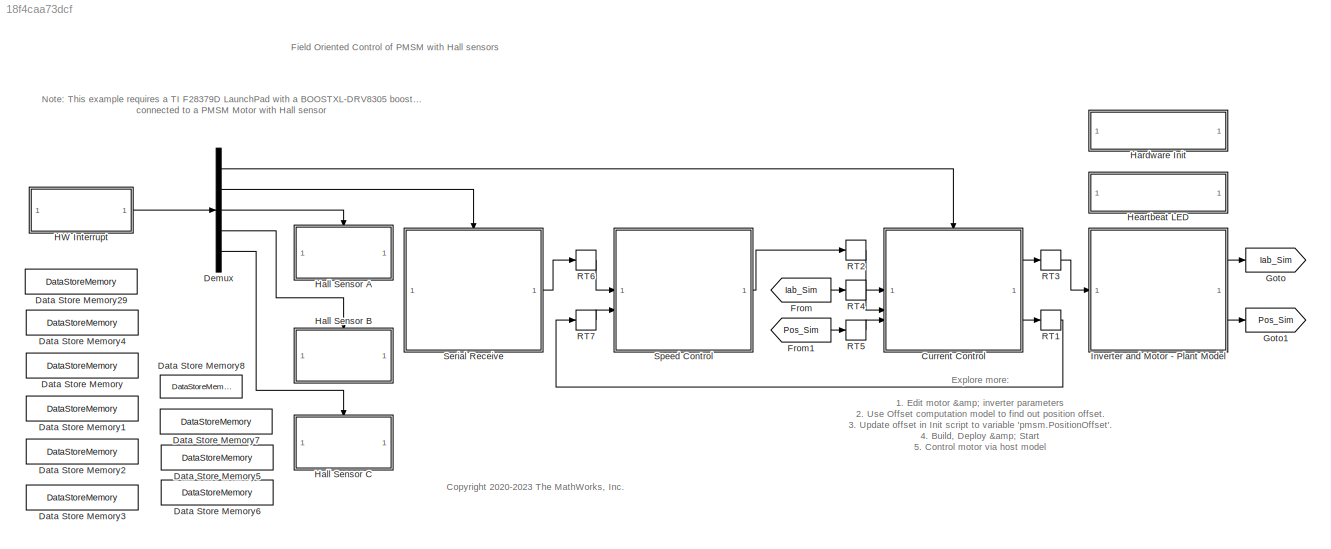
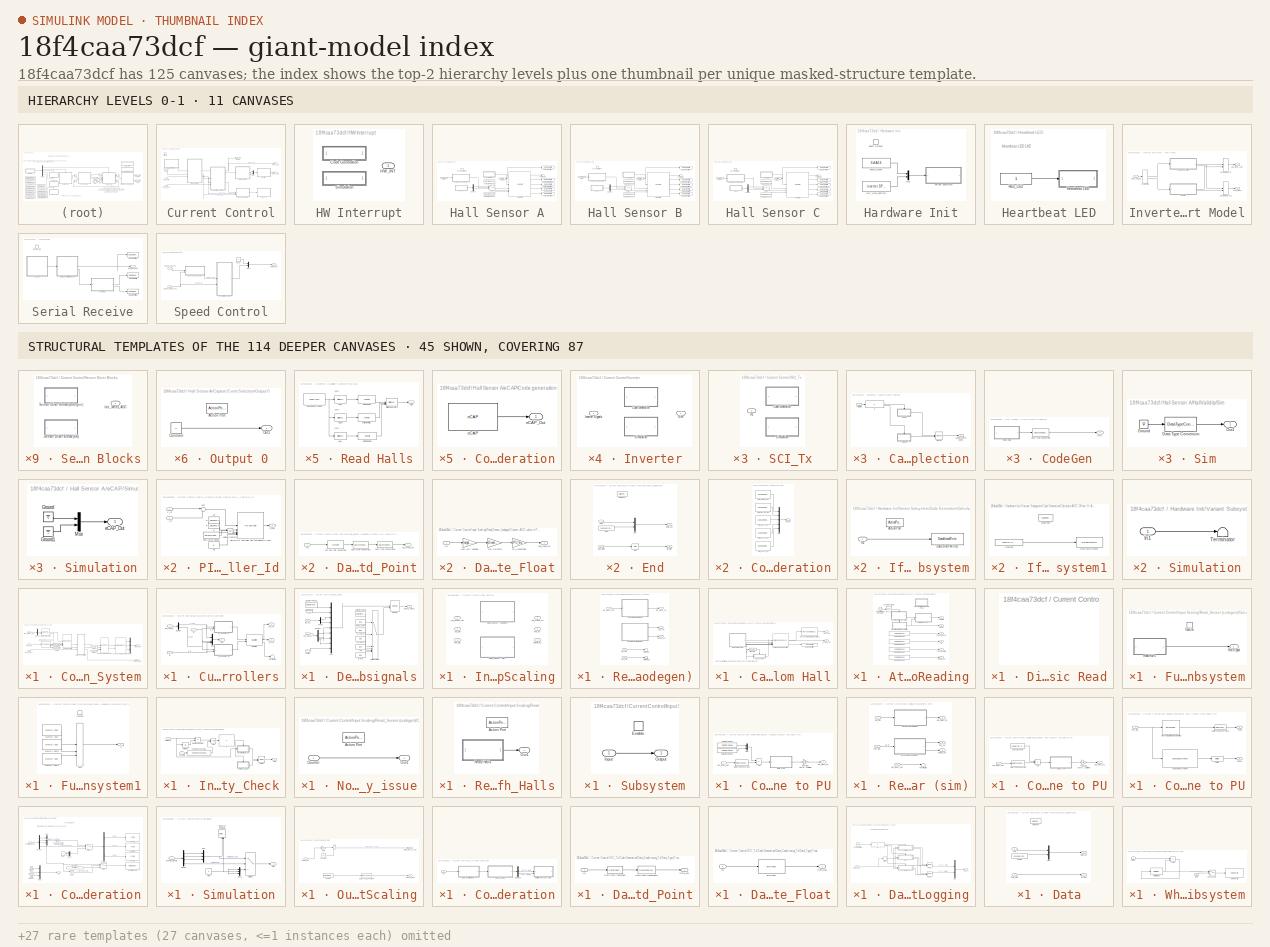
[diagram: thumbnail index - top-2 hierarchy levels (11 canvases) + 45 structural-template representatives of the remaining 114 canvases]
MODEL slx_18f4caa73dcf
KIND model
CONFIG AbsTol = auto
CONFIG EnableMultiTasking = on
CONFIG FixedStep = auto
CONFIG InitFcn = mcb_pmsm_foc_hall_f28379d_data;
CONFIG MaxStep = auto
CONFIG MinStep = auto
CONFIG RelTol = 1e-3
CONFIG SampleTimeConstraint = Unconstrained
CONFIG SolverName = FixedStepDiscrete
CONFIG StartTime = 0.0
CONFIG StopTime = 8
WORKSPACE source: mxarray member
WORKSPACE encoderResolution = 2000
WORKSPACE hallOffset = '0.5'
WORKSPACE indexOffset = 850
WORKSPACE polePairs = '4'
BLOCK [SubSystem] Current Control
  RTWMemSecFuncExecute = code_ramfuncs
  RTWSystemCode = Nonreusable function
BLOCK [SubSystem] Current Control/Control_System
BLOCK [Reference] Current Control/Control_System/Clarke Transform  REF=mcbcontrolslib/Clarke Transform
  SourceBlock = mcbcontrolslib/Clarke Transform
  SourceType = Clarke Transform
BLOCK [SubSystem] Current Control/Control_System/Current_Controllers
BLOCK [Reference] Current Control/Control_System/Current_Controllers/DQ Limiter  REF=mcbcontrolslib/DQ Limiter
  SourceBlock = mcbcontrolslib/DQ Limiter
  SourceType = DQ Limiter
BLOCK [Demux] Current Control/Control_System/Current_Controllers/Demux
  Outputs = 2
BLOCK [Inport] Current Control/Control_System/Current_Controllers/Id
BLOCK [Outport] Current Control/Control_System/Current_Controllers/Idq
  Port = 3
  VectorParamsAs1DForOutWhenUnconnected = off
BLOCK [Inport] Current Control/Control_System/Current_Controllers/Idq_ref_PU
  Port = 3
BLOCK [Inport] Current Control/Control_System/Current_Controllers/Iq
  Port = 2
BLOCK [Mux] Current Control/Control_System/Current_Controllers/Mux
  DisplayOption = bar
BLOCK [SubSystem] Current Control/Control_System/Current_Controllers/PI_Controller_Id
BLOCK [DataStoreRead] Current Control/Control_System/Current_Controllers/PI_Controller_Id/Data Store Read1
  DataStoreName = Enable
  IndexOptions = Index vector (dialog)
  Indices = 1
  OutputSizes = 1
BLOCK [Reference] Current Control/Control_System/Current_Controllers/PI_Controller_Id/Discrete PI Controller with anti-windup & reset  REF=slpidlib/PID Controller
  LibrarySourceBlock = mcbcontrolslib/PI Controller
  SourceBlock = slpidlib/PID Controller
  SourceType = PID 1dof
BLOCK [Inport] Current Control/Control_System/Current_Controllers/PI_Controller_Id/I_fb
  Port = 2
BLOCK [Inport] Current Control/Control_System/Current_Controllers/PI_Controller_Id/I_ref
BLOCK [Constant] Current Control/Control_System/Current_Controllers/PI_Controller_Id/Ki
  OutDataTypeStr = dataType
  SampleTime = -1
  Value = PI_params.Ki_i*Ts
BLOCK [Constant] Current Control/Control_System/Current_Controllers/PI_Controller_Id/Ki1
  NameLocation = top
  OutDataTypeStr = dataType
  SampleTime = -1
  Value = 0
BLOCK [Constant] Current Control/Control_System/Current_Controllers/PI_Controller_Id/Kp
  NameLocation = top
  OutDataTypeStr = dataType
  SampleTime = -1
  Value = PI_params.Kp_i
BLOCK [Logic] Current Control/Control_System/Current_Controllers/PI_Controller_Id/Logical Operator
  AllPortsSameDT = off
  IconShape = distinctive
  Operator = NOT
  OutDataTypeStr = boolean
BLOCK [Sum] Current Control/Control_System/Current_Controllers/PI_Controller_Id/Sum
  AccumDataTypeStr = Inherit: Same as first input
  Inputs = |+-
  OutDataTypeStr = Inherit: Same as first input
BLOCK [Outport] Current Control/Control_System/Current_Controllers/PI_Controller_Id/V_ref
  VectorParamsAs1DForOutWhenUnconnected = off
BLOCK [SubSystem] Current Control/Control_System/Current_Controllers/PI_Controller_Iq
BLOCK [DataStoreRead] Current Control/Control_System/Current_Controllers/PI_Controller_Iq/Data Store Read1
  DataStoreName = Enable
  IndexOptions = Index vector (dialog)
  Indices = 1
  OutputSizes = 1
BLOCK [Reference] Current Control/Control_System/Current_Controllers/PI_Controller_Iq/Discrete PI Controller with anti-windup & reset  REF=slpidlib/PID Controller
  LibrarySourceBlock = mcbcontrolslib/PI Controller
  SourceBlock = slpidlib/PID Controller
  SourceType = PID 1dof
BLOCK [Inport] Current Control/Control_System/Current_Controllers/PI_Controller_Iq/I_fb
  Port = 2
BLOCK [Inport] Current Control/Control_System/Current_Controllers/PI_Controller_Iq/I_ref
BLOCK [Constant] Current Control/Control_System/Current_Controllers/PI_Controller_Iq/Ki
  OutDataTypeStr = dataType
  SampleTime = -1
  Value = PI_params.Ki_i*Ts
BLOCK [Constant] Current Control/Control_System/Current_Controllers/PI_Controller_Iq/Kp
  NameLocation = top
  OutDataTypeStr = dataType
  SampleTime = -1
  Value = PI_params.Kp_i
BLOCK [Constant] Current Control/Control_System/Current_Controllers/PI_Controller_Iq/Kp1
  NameLocation = top
  OutDataTypeStr = dataType
  SampleTime = -1
  Value = 0
BLOCK [Logic] Current Control/Control_System/Current_Controllers/PI_Controller_Iq/Logical Operator
  AllPortsSameDT = off
  IconShape = distinctive
  Operator = NOT
  OutDataTypeStr = boolean
BLOCK [Sum] Current Control/Control_System/Current_Controllers/PI_Controller_Iq/Sum
  AccumDataTypeStr = Inherit: Same as first input
  Inputs = |+-
  OutDataTypeStr = Inherit: Same as first input
BLOCK [Outport] Current Control/Control_System/Current_Controllers/PI_Controller_Iq/V_ref
  VectorParamsAs1DForOutWhenUnconnected = off
BLOCK [Terminator] Current Control/Control_System/Current_Controllers/Terminator
BLOCK [Outport] Current Control/Control_System/Current_Controllers/Vd_ref
  VectorParamsAs1DForOutWhenUnconnected = off
BLOCK [Outport] Current Control/Control_System/Current_Controllers/Vq_ref
  Port = 2
  VectorParamsAs1DForOutWhenUnconnected = off
BLOCK [Demux] Current Control/Control_System/Demux
  Outputs = 2
BLOCK [From] Current Control/Control_System/From
  GotoTag = sinTheta
BLOCK [From] Current Control/Control_System/From1
  GotoTag = cosTheta
BLOCK [Goto] Current Control/Control_System/Goto
  GotoTag = sinTheta
BLOCK [Goto] Current Control/Control_System/Goto1
  GotoTag = cosTheta
BLOCK [Inport] Current Control/Control_System/Iab_meas_PU
BLOCK [Outport] Current Control/Control_System/Idq_debug
  Port = 2
  VectorParamsAs1DForOutWhenUnconnected = off
BLOCK [Inport] Current Control/Control_System/Idq_ref_PU
  Port = 3
BLOCK [Reference] Current Control/Control_System/Inverse Park Transform  REF=mcbcontrolslib/Inverse Park Transform
  SourceBlock = mcbcontrolslib/Inverse Park Transform
  SourceType = Inverse Park Transform
BLOCK [Mux] Current Control/Control_System/Mux1
  DisplayOption = bar
  Inputs = 3
BLOCK [Reference] Current Control/Control_System/Park Transform  REF=mcbcontrolslib/Park Transform
  SourceBlock = mcbcontrolslib/Park Transform
  SourceType = Park Transform
BLOCK [Inport] Current Control/Control_System/Pos_PU
  Port = 2
BLOCK [Reference] Current Control/Control_System/Sine-Cosine Lookup  REF=mcbcontrolslib/SinCos Embedded Optimized
  SourceBlock = mcbcontrolslib/SinCos Embedded Optimized
  SourceType = SinCos Embedded Optimized
BLOCK [Reference] Current Control/Control_System/Space Vector Generator  REF=mcbcontrolslib/PWM Reference Generator
  SourceBlock = mcbcontrolslib/PWM Reference Generator
  SourceType = PWM Modulation
BLOCK [Outport] Current Control/Control_System/Vabc in PU
  VectorParamsAs1DForOutWhenUnconnected = off
BLOCK [SubSystem] Current Control/Debug_signals
BLOCK [DataStoreRead] Current Control/Debug_signals/Data Store Read
  DataStoreName = Debug_signals
  IndexOptions = Index vector (dialog)
  Indices = 1
  OutputSizes = 1
BLOCK [DataStoreRead] Current Control/Debug_signals/Data Store Read1
  DataStoreName = Speed_ref
  IndexOptions = Index vector (dialog)
  Indices = 1
  OutputSizes = 1
BLOCK [Outport] Current Control/Debug_signals/Debug_signal
BLOCK [Demux] Current Control/Debug_signals/Demux
  Outputs = 2
BLOCK [Demux] Current Control/Debug_signals/Demux1
BLOCK [From] Current Control/Debug_signals/From
  GotoTag = debug1
  TagVisibility = global
BLOCK [Constant] Current Control/Debug_signals/Ia_Pos
  OutDataTypeStr = uint16
  SampleTime = -1
  Value = [3 9]
BLOCK [Constant] Current Control/Debug_signals/Iab
  OutDataTypeStr = uint16
  SampleTime = -1
  Value = [3 4]
BLOCK [Inport] Current Control/Debug_signals/Iab_PU
  Port = 3
BLOCK [Constant] Current Control/Debug_signals/Id_control
  OutDataTypeStr = uint16
  SampleTime = -1
  Value = [5 6]
BLOCK [Inport] Current Control/Debug_signals/Idq_debug
BLOCK [Constant] Current Control/Debug_signals/Iq_control
  OutDataTypeStr = uint16
  SampleTime = -1
  Value = [7 8]
BLOCK [MultiPortSwitch] Current Control/Debug_signals/Multiport Switch
  DiagnosticForDefault = Warning
  InputSameDT = off
  Inputs = 5
  OutDataTypeStr = uint16
  RndMeth = Simplest
  SaturateOnIntegerOverflow = off
BLOCK [Mux] Current Control/Debug_signals/Mux
  DisplayOption = bar
  Inputs = 9
BLOCK [Inport] Current Control/Debug_signals/Position
  Port = 2
BLOCK [Selector] Current Control/Debug_signals/Selector
  IndexOptions = Index vector (port)
  Indices = [1 3]
  InputPortWidth = 9
  OutputSizes = 1
BLOCK [Constant] Current Control/Debug_signals/speed_control
  OutDataTypeStr = uint16
  SampleTime = -1
  Value = [1 2]
BLOCK [Outport] Current Control/Duty Cycles
  InitialOutput = 0
  VectorParamsAs1DForOutWhenUnconnected = off
BLOCK [Goto] Current Control/Goto1
  GotoTag = debug1
  TagVisibility = global
BLOCK [Inport] Current Control/Iab_Sim
  Port = 2
BLOCK [Inport] Current Control/Idq_ref_PU
BLOCK [SubSystem] Current Control/Input Scaling
  PropagateVariantConditions = on
  Variant = on
  VariantControl = Variant1
  VariantControlMode = sim codegen switching
BLOCK [Inport] Current Control/Input Scaling/Iab_Sim
  Port = 2
BLOCK [Inport] Current Control/Input Scaling/Iab_meas_ADC
BLOCK [Outport] Current Control/Input Scaling/Iab_meas_PU
  Port = 2
  VectorParamsAs1DForOutWhenUnconnected = off
BLOCK [Outport] Current Control/Input Scaling/Pos_PU
  InitialOutput = 0
  Port = 3
  VectorParamsAs1DForOutWhenUnconnected = off
BLOCK [Inport] Current Control/Input Scaling/Pos_Sim
  Port = 3
BLOCK [SubSystem] Current Control/Input Scaling/Read_Sensor (codegen)
  VariantControl = (codegen)
BLOCK [SubSystem] Current Control/Input Scaling/Read_Sensor (codegen)/Calculate Position from Hall
BLOCK [SubSystem] Current Control/Input Scaling/Read_Sensor (codegen)/Calculate Position from Hall/Atomic Hall Reading
  RTWSystemCode = Nonreusable function
  TreatAsAtomicUnit = on
BLOCK [Outport] Current Control/Input Scaling/Read_Sensor (codegen)/Calculate Position from Hall/Atomic Hall Reading/Count
  Port = 2
BLOCK [DataStoreRead] Current Control/Input Scaling/Read_Sensor (codegen)/Calculate Position from Hall/Atomic Hall Reading/Data Store Read2
  DataStoreName = GlobalSpeedCount
  IndexOptions = Index vector (dialog)
  Indices = 1
  OutputSizes = 1
BLOCK [DataStoreRead] Current Control/Input Scaling/Read_Sensor (codegen)/Calculate Position from Hall/Atomic Hall Reading/Data Store Read3
  DataStoreName = GlobalDirection
  IndexOptions = Index vector (dialog)
  Indices = 1
  OutputSizes = 1
BLOCK [DataStoreRead] Current Control/Input Scaling/Read_Sensor (codegen)/Calculate Position from Hall/Atomic Hall Reading/Data Store Read4
  DataStoreName = GlobalSpeedValidity
  IndexOptions = Index vector (dialog)
  Indices = 1
  OutputSizes = 1
BLOCK [DataStoreRead] Current Control/Input Scaling/Read_Sensor (codegen)/Calculate Position from Hall/Atomic Hall Reading/Data Store Read5
  DataStoreName = HallStateChangeFlag
  IndexOptions = Index vector (dialog)
  Indices = 1
  OutputSizes = 1
  Priority = 1
BLOCK [Outport] Current Control/Input Scaling/Read_Sensor (codegen)/Calculate Position from Hall/Atomic Hall Reading/Dir
  Port = 4
BLOCK [SubSystem] Current Control/Input Scaling/Read_Sensor (codegen)/Calculate Position from Hall/Atomic Hall Reading/Disable Interrupts for Atomic Read
  CopyFcn = cccopyfcn(gcb)
  OpenFcn = ccopenfcn('System Outputs Function')
BLOCK [Reference] Current Control/Input Scaling/Read_Sensor (codegen)/Calculate Position from Hall/Atomic Hall Reading/Function-Call Generator  REF=simulink/Ports &
Subsystems/Function-Call
Generator
  SourceBlock = simulink/Ports &\nSubsystems/Function-Call\nGenerator
  SourceType = Function-Call Generator
BLOCK [FunctionCallSplit] Current Control/Input Scaling/Read_Sensor (codegen)/Calculate Position from Hall/Atomic Hall Reading/Function-Call Split
  NumOutputPorts = 2
  OutputPortLayout = default
BLOCK [SubSystem] Current Control/Input Scaling/Read_Sensor (codegen)/Calculate Position from Hall/Atomic Hall Reading/Function-Call Subsystem
  TreatAsAtomicUnit = on
BLOCK [Outport] Current Control/Input Scaling/Read_Sensor (codegen)/Calculate Position from Hall/Atomic Hall Reading/Function-Call Subsystem/HallSignal
BLOCK [SubSystem] Current Control/Input Scaling/Read_Sensor (codegen)/Calculate Position from Hall/Atomic Hall Reading/Function-Call Subsystem/Read Halls
BLOCK [Reference] Current Control/Input Scaling/Read_Sensor (codegen)/Calculate Position from Hall/Atomic Hall Reading/Function-Call Subsystem/Read Halls/Bitwise Operator2  REF=simulink/Logic and Bit
Operations/Bitwise
Operator
  SourceBlock = simulink/Logic and Bit\nOperations/Bitwise\nOperator
  SourceType = Bitwise Operator
BLOCK [Reference] Current Control/Input Scaling/Read_Sensor (codegen)/Calculate Position from Hall/Atomic Hall Reading/Function-Call Subsystem/Read Halls/Hall_A  REF=simulink/Logic and Bit
Operations/Bitwise
Operator
  SourceBlock = simulink/Logic and Bit\nOperations/Bitwise\nOperator
  SourceType = Bitwise Operator
BLOCK [Reference] Current Control/Input Scaling/Read_Sensor (codegen)/Calculate Position from Hall/Atomic Hall Reading/Function-Call Subsystem/Read Halls/Hall_B  REF=simulink/Logic and Bit
Operations/Bitwise
Operator
  SourceBlock = simulink/Logic and Bit\nOperations/Bitwise\nOperator
  SourceType = Bitwise Operator
BLOCK [Reference] Current Control/Input Scaling/Read_Sensor (codegen)/Calculate Position from Hall/Atomic Hall Reading/Function-Call Subsystem/Read Halls/Hall_C  REF=simulink/Logic and Bit
Operations/Bitwise
Operator
  SourceBlock = simulink/Logic and Bit\nOperations/Bitwise\nOperator
  SourceType = Bitwise Operator
BLOCK [Outport] Current Control/Input Scaling/Read_Sensor (codegen)/Calculate Position from Hall/Atomic Hall Reading/Function-Call Subsystem/Read Halls/Halls
BLOCK [Reference] Current Control/Input Scaling/Read_Sensor (codegen)/Calculate Position from Hall/Atomic Hall Reading/Function-Call Subsystem/Read Halls/Read GPIO DAT register  REF=idelinklib_common/Memory Copy
  SourceBlock = idelinklib_common/Memory Copy
  SourceType = Memory Copy
BLOCK [ArithShift] Current Control/Input Scaling/Read_Sensor (codegen)/Calculate Position from Hall/Atomic Hall Reading/Function-Call Subsystem/Read Halls/Shift Arithmetic
  BitShiftNumber = 23
  InputPortMap = u0
BLOCK [ArithShift] Current Control/Input Scaling/Read_Sensor (codegen)/Calculate Position from Hall/Atomic Hall Reading/Function-Call Subsystem/Read Halls/Shift Arithmetic1
  BitShiftNumber = 22
  InputPortMap = u0
BLOCK [ArithShift] Current Control/Input Scaling/Read_Sensor (codegen)/Calculate Position from Hall/Atomic Hall Reading/Function-Call Subsystem/Read Halls/Shift Arithmetic2
  BitShiftNumber = 22
  InputPortMap = u0
BLOCK [TriggerPort] Current Control/Input Scaling/Read_Sensor (codegen)/Calculate Position from Hall/Atomic Hall Reading/Function-Call Subsystem/function
  StatesWhenEnabling = held
  TriggerType = function-call
  VariantControl = Variant
BLOCK [SubSystem] Current Control/Input Scaling/Read_Sensor (codegen)/Calculate Position from Hall/Atomic Hall Reading/Function-Call Subsystem1
  TreatAsAtomicUnit = on
BLOCK [Reference] Current Control/Input Scaling/Read_Sensor (codegen)/Calculate Position from Hall/Atomic Hall Reading/Function-Call Subsystem1/Memory Copy  REF=idelinklib_common/Memory Copy
  SourceBlock = idelinklib_common/Memory Copy
  SourceType = Memory Copy
BLOCK [Reference] Current Control/Input Scaling/Read_Sensor (codegen)/Calculate Position from Hall/Atomic Hall Reading/Function-Call Subsystem1/Memory Copy1  REF=idelinklib_common/Memory Copy
  SourceBlock = idelinklib_common/Memory Copy
  SourceType = Memory Copy
BLOCK [Reference] Current Control/Input Scaling/Read_Sensor (codegen)/Calculate Position from Hall/Atomic Hall Reading/Function-Call Subsystem1/Memory Copy2  REF=idelinklib_common/Memory Copy
  SourceBlock = idelinklib_common/Memory Copy
  SourceType = Memory Copy
BLOCK [MinMax] Current Control/Input Scaling/Read_Sensor (codegen)/Calculate Position from Hall/Atomic Hall Reading/Function-Call Subsystem1/Min
  Inputs = 3
BLOCK [TriggerPort] Current Control/Input Scaling/Read_Sensor (codegen)/Calculate Position from Hall/Atomic Hall Reading/Function-Call Subsystem1/function
  StatesWhenEnabling = held
  TriggerType = function-call
  VariantControl = Variant
BLOCK [Outport] Current Control/Input Scaling/Read_Sensor (codegen)/Calculate Position from Hall/Atomic Hall Reading/Function-Call Subsystem1/u
BLOCK [Outport] Current Control/Input Scaling/Read_Sensor (codegen)/Calculate Position from Hall/Atomic Hall Reading/HallChange
  Port = 6
BLOCK [Outport] Current Control/Input Scaling/Read_Sensor (codegen)/Calculate Position from Hall/Atomic Hall Reading/HallState
BLOCK [SubSystem] Current Control/Input Scaling/Read_Sensor (codegen)/Calculate Position from Hall/Atomic Hall Reading/Integrity_Check
BLOCK [Reference] Current Control/Input Scaling/Read_Sensor (codegen)/Calculate Position from Hall/Atomic Hall Reading/Integrity_Check/Compare To Constant  REF=simulink/Logic and Bit
Operations/Compare
To Constant
  SourceBlock = simulink/Logic and Bit\nOperations/Compare\nTo Constant
  SourceType = Compare To Constant
BLOCK [Inport] Current Control/Input Scaling/Read_Sensor (codegen)/Calculate Position from Hall/Atomic Hall Reading/Integrity_Check/CounterIn
  Port = 2
BLOCK [Inport] Current Control/Input Scaling/Read_Sensor (codegen)/Calculate Position from Hall/Atomic Hall Reading/Integrity_Check/HallSignal
BLOCK [Outport] Current Control/Input Scaling/Read_Sensor (codegen)/Calculate Position from Hall/Atomic Hall Reading/Integrity_Check/Halls
BLOCK [If] Current Control/Input Scaling/Read_Sensor (codegen)/Calculate Position from Hall/Atomic Hall Reading/Integrity_Check/If
  IfExpression = u1 == 0
BLOCK [Merge] Current Control/Input Scaling/Read_Sensor (codegen)/Calculate Position from Hall/Atomic Hall Reading/Integrity_Check/Merge
BLOCK [Logic] Current Control/Input Scaling/Read_Sensor (codegen)/Calculate Position from Hall/Atomic Hall Reading/Integrity_Check/NOT
  AllPortsSameDT = off
  IconShape = distinctive
  OutDataTypeStr = boolean
BLOCK [SubSystem] Current Control/Input Scaling/Read_Sensor (codegen)/Calculate Position from Hall/Atomic Hall Reading/Integrity_Check/No_Integrity_issue
  TreatAsAtomicUnit = on
BLOCK [ActionPort] Current Control/Input Scaling/Read_Sensor (codegen)/Calculate Position from Hall/Atomic Hall Reading/Integrity_Check/No_Integrity_issue/Action Port
  ActionPortLabel = if(u1 == 0)
BLOCK [Inport] Current Control/Input Scaling/Read_Sensor (codegen)/Calculate Position from Hall/Atomic Hall Reading/Integrity_Check/No_Integrity_issue/Counter
BLOCK [Outport] Current Control/Input Scaling/Read_Sensor (codegen)/Calculate Position from Hall/Atomic Hall Reading/Integrity_Check/No_Integrity_issue/Out1
BLOCK [SubSystem] Current Control/Input Scaling/Read_Sensor (codegen)/Calculate Position from Hall/Atomic Hall Reading/Integrity_Check/Refresh_Halls
  TreatAsAtomicUnit = on
BLOCK [ActionPort] Current Control/Input Scaling/Read_Sensor (codegen)/Calculate Position from Hall/Atomic Hall Reading/Integrity_Check/Refresh_Halls/Action Port
  ActionPortLabel = else
BLOCK [Outport] Current Control/Input Scaling/Read_Sensor (codegen)/Calculate Position from Hall/Atomic Hall Reading/Integrity_Check/Refresh_Halls/Out1
BLOCK [SubSystem] Current Control/Input Scaling/Read_Sensor (codegen)/Calculate Position from Hall/Atomic Hall Reading/Integrity_Check/Refresh_Halls/Read Halls
BLOCK [Reference] Current Control/Input Scaling/Read_Sensor (codegen)/Calculate Position from Hall/Atomic Hall Reading/Integrity_Check/Refresh_Halls/Read Halls/Bitwise Operator2  REF=simulink/Logic and Bit
Operations/Bitwise
Operator
  SourceBlock = simulink/Logic and Bit\nOperations/Bitwise\nOperator
  SourceType = Bitwise Operator
BLOCK [Reference] Current Control/Input Scaling/Read_Sensor (codegen)/Calculate Position from Hall/Atomic Hall Reading/Integrity_Check/Refresh_Halls/Read Halls/Hall_A  REF=simulink/Logic and Bit
Operations/Bitwise
Operator
  SourceBlock = simulink/Logic and Bit\nOperations/Bitwise\nOperator
  SourceType = Bitwise Operator
BLOCK [Reference] Current Control/Input Scaling/Read_Sensor (codegen)/Calculate Position from Hall/Atomic Hall Reading/Integrity_Check/Refresh_Halls/Read Halls/Hall_B  REF=simulink/Logic and Bit
Operations/Bitwise
Operator
  SourceBlock = simulink/Logic and Bit\nOperations/Bitwise\nOperator
  SourceType = Bitwise Operator
BLOCK [Reference] Current Control/Input Scaling/Read_Sensor (codegen)/Calculate Position from Hall/Atomic Hall Reading/Integrity_Check/Refresh_Halls/Read Halls/Hall_C  REF=simulink/Logic and Bit
Operations/Bitwise
Operator
  SourceBlock = simulink/Logic and Bit\nOperations/Bitwise\nOperator
  SourceType = Bitwise Operator
BLOCK [Outport] Current Control/Input Scaling/Read_Sensor (codegen)/Calculate Position from Hall/Atomic Hall Reading/Integrity_Check/Refresh_Halls/Read Halls/Halls
BLOCK [Reference] Current Control/Input Scaling/Read_Sensor (codegen)/Calculate Position from Hall/Atomic Hall Reading/Integrity_Check/Refresh_Halls/Read Halls/Read GPIO DAT register  REF=idelinklib_common/Memory Copy
  SourceBlock = idelinklib_common/Memory Copy
  SourceType = Memory Copy
BLOCK [ArithShift] Current Control/Input Scaling/Read_Sensor (codegen)/Calculate Position from Hall/Atomic Hall Reading/Integrity_Check/Refresh_Halls/Read Halls/Shift Arithmetic
  BitShiftNumber = 23
  InputPortMap = u0
BLOCK [ArithShift] Current Control/Input Scaling/Read_Sensor (codegen)/Calculate Position from Hall/Atomic Hall Reading/Integrity_Check/Refresh_Halls/Read Halls/Shift Arithmetic1
  BitShiftNumber = 22
  InputPortMap = u0
BLOCK [ArithShift] Current Control/Input Scaling/Read_Sensor (codegen)/Calculate Position from Hall/Atomic Hall Reading/Integrity_Check/Refresh_Halls/Read Halls/Shift Arithmetic2
  BitShiftNumber = 22
  InputPortMap = u0
BLOCK [RelationalOperator] Current Control/Input Scaling/Read_Sensor (codegen)/Calculate Position from Hall/Atomic Hall Reading/Integrity_Check/Relational Operator
  InputSameDT = off
  Operator = ==
  OutDataTypeStr = boolean
  RndMeth = Simplest
BLOCK [UnitDelay] Current Control/Input Scaling/Read_Sensor (codegen)/Calculate Position from Hall/Atomic Hall Reading/Integrity_Check/Unit Delay
  HasFrameUpgradeWarning = on
  SampleTime = -1
BLOCK [Outport] Current Control/Input Scaling/Read_Sensor (codegen)/Calculate Position from Hall/Atomic Hall Reading/SpeedCount
  Port = 3
BLOCK [Outport] Current Control/Input Scaling/Read_Sensor (codegen)/Calculate Position from Hall/Atomic Hall Reading/SpeedValidity
  Port = 5
BLOCK [DataStoreWrite] Current Control/Input Scaling/Read_Sensor (codegen)/Calculate Position from Hall/Data Store Write2
  DataStoreName = HallStateChangeFlag
  IndexOptions = Index vector (dialog)
  Indices = 1
  OutputSizes = 1
  Priority = 2
BLOCK [Reference] Current Control/Input Scaling/Read_Sensor (codegen)/Calculate Position from Hall/Glitch Filter  REF=simulink/Logic and Bit
Operations/Compare
To Constant
  SourceBlock = simulink/Logic and Bit\nOperations/Compare\nTo Constant
  SourceType = Compare To Constant
BLOCK [Reference] Current Control/Input Scaling/Read_Sensor (codegen)/Calculate Position from Hall/Hall Speed and Position  REF=mcbpositiondecoderlib/Hall Speed and Position
  SourceBlock = mcbpositiondecoderlib/Hall Speed and Position
  SourceType = Hall Speed and Position
BLOCK [Reference] Current Control/Input Scaling/Read_Sensor (codegen)/Calculate Position from Hall/Mechanical to Electrical Position1  REF=mcbpositiondecoderlib/Mechanical to Electrical Position
  SourceBlock = mcbpositiondecoderlib/Mechanical to Electrical Position
  SourceType = Mechanical to Electrical Position
BLOCK [Outport] Current Control/Input Scaling/Read_Sensor (codegen)/Calculate Position from Hall/Pos_PU
  InitialOutput = 0
  VectorParamsAs1DForOutWhenUnconnected = off
BLOCK [Outport] Current Control/Input Scaling/Read_Sensor (codegen)/Calculate Position from Hall/Speed_PU
  InitialOutput = 0
  Port = 2
  VectorParamsAs1DForOutWhenUnconnected = off
BLOCK [SubSystem] Current Control/Input Scaling/Read_Sensor (codegen)/Calculate Position from Hall/Subsystem
BLOCK [EnablePort] Current Control/Input Scaling/Read_Sensor (codegen)/Calculate Position from Hall/Subsystem/Enable
BLOCK [Inport] Current Control/Input Scaling/Read_Sensor (codegen)/Calculate Position from Hall/Subsystem/Input
BLOCK [Outport] Current Control/Input Scaling/Read_Sensor (codegen)/Calculate Position from Hall/Subsystem/Output
BLOCK [SubSystem] Current Control/Input Scaling/Read_Sensor (codegen)/Convert ADC value to PU
BLOCK [Sum] Current Control/Input Scaling/Read_Sensor (codegen)/Convert ADC value to PU/Add
  IconShape = rectangular
  Inputs = -+
BLOCK [DataStoreRead] Current Control/Input Scaling/Read_Sensor (codegen)/Convert ADC value to PU/Data Store Read
  DataStoreName = IaOffset
  IndexOptions = Index vector (dialog)
  Indices = 1
  OutputSizes = 1
BLOCK [DataStoreRead] Current Control/Input Scaling/Read_Sensor (codegen)/Convert ADC value to PU/Data Store Read1
  DataStoreName = IbOffset
  IndexOptions = Index vector (dialog)
  Indices = 1
  OutputSizes = 1
BLOCK [DataTypeConversion] Current Control/Input Scaling/Read_Sensor (codegen)/Convert ADC value to PU/Data Type Conversion
  ConvertRealWorld = Stored Integer (SI)
  OutDataTypeStr = int32
  RndMeth = Floor
  SaturateOnIntegerOverflow = off
BLOCK [SubSystem] Current Control/Input Scaling/Read_Sensor (codegen)/Convert ADC value to PU/Data_Type
  Variant = on
BLOCK [SubSystem] Current Control/Input Scaling/Read_Sensor (codegen)/Convert ADC value to PU/Data_Type/Data_Type_Fixed_Point
  VariantControl = ~isequal(dataType,'single')
BLOCK [DataTypeConversion] Current Control/Input Scaling/Read_Sensor (codegen)/Convert ADC value to PU/Data_Type/Data_Type_Fixed_Point/Data Type Conversion
  ConvertRealWorld = Stored Integer (SI)
  OutDataTypeStr = fixdt(1,32,17)
  RndMeth = Simplest
  SaturateOnIntegerOverflow = off
BLOCK [DataTypeConversion] Current Control/Input Scaling/Read_Sensor (codegen)/Convert ADC value to PU/Data_Type/Data_Type_Fixed_Point/Data Type Conversion1
  OutDataTypeStr = dataType
  RndMeth = Simplest
  SaturateOnIntegerOverflow = off
BLOCK [Outport] Current Control/Input Scaling/Read_Sensor (codegen)/Convert ADC value to PU/Data_Type/Data_Type_Fixed_Point/Iab_meas_PU
BLOCK [Inport] Current Control/Input Scaling/Read_Sensor (codegen)/Convert ADC value to PU/Data_Type/Data_Type_Fixed_Point/In1
BLOCK [ArithShift] Current Control/Input Scaling/Read_Sensor (codegen)/Convert ADC value to PU/Data_Type/Data_Type_Fixed_Point/Q17 per unit conversion
  BitShiftNumber = -6
  InputPortMap = u0
BLOCK [SubSystem] Current Control/Input Scaling/Read_Sensor (codegen)/Convert ADC value to PU/Data_Type/Data_Type_Float
  VariantControl = isequal(dataType,'single')
BLOCK [Gain] Current Control/Input Scaling/Read_Sensor (codegen)/Convert ADC value to PU/Data_Type/Data_Type_Float/Get ADC Voltage
  Gain = target.ADC_Vref /target.ADC_MaxCount
  OutDataTypeStr = dataType
  RndMeth = Simplest
BLOCK [Gain] Current Control/Input Scaling/Read_Sensor (codegen)/Convert ADC value to PU/Data_Type/Data_Type_Float/Get Currents
  Gain = 1/inverter.ISenseVoltPerAmp
  OutDataTypeStr = Inherit: Same as input
  RndMeth = Simplest
BLOCK [Outport] Current Control/Input Scaling/Read_Sensor (codegen)/Convert ADC value to PU/Data_Type/Data_Type_Float/Iab_meas_PU
BLOCK [Inport] Current Control/Input Scaling/Read_Sensor (codegen)/Convert ADC value to PU/Data_Type/Data_Type_Float/In1
BLOCK [Gain] Current Control/Input Scaling/Read_Sensor (codegen)/Convert ADC value to PU/Data_Type/Data_Type_Float/PU_Conversion
  Gain = 1/PU_System.I_base
  OutDataTypeStr = Inherit: Same as input
  RndMeth = Simplest
BLOCK [Outport] Current Control/Input Scaling/Read_Sensor (codegen)/Convert ADC value to PU/Data_Type/Iab_meas_PU
BLOCK [Inport] Current Control/Input Scaling/Read_Sensor (codegen)/Convert ADC value to PU/Data_Type/In1
BLOCK [Inport] Current Control/Input Scaling/Read_Sensor (codegen)/Convert ADC value to PU/Iab_meas_ADC
BLOCK [Outport] Current Control/Input Scaling/Read_Sensor (codegen)/Convert ADC value to PU/Iab_meas_PU
BLOCK [Gain] Current Control/Input Scaling/Read_Sensor (codegen)/Convert ADC value to PU/Inverting // Non-inverting Current measurement amplifieer
  Gain = inverter.invertingAmp
  OutDataTypeStr = Inherit: Same as input
  RndMeth = Simplest
BLOCK [Mux] Current Control/Input Scaling/Read_Sensor (codegen)/Convert ADC value to PU/Mux
  DisplayOption = bar
  Inputs = 2
BLOCK [Inport] Current Control/Input Scaling/Read_Sensor (codegen)/Iab_Sim
  Port = 2
BLOCK [Inport] Current Control/Input Scaling/Read_Sensor (codegen)/Iab_meas_ADC
BLOCK [Outport] Current Control/Input Scaling/Read_Sensor (codegen)/Iab_meas_PU
  VectorParamsAs1DForOutWhenUnconnected = off
BLOCK [Outport] Current Control/Input Scaling/Read_Sensor (codegen)/Pos_PU
  InitialOutput = 0
  Port = 2
  VectorParamsAs1DForOutWhenUnconnected = off
BLOCK [Inport] Current Control/Input Scaling/Read_Sensor (codegen)/Pos_Sim
  Port = 3
BLOCK [Terminator] Current Control/Input Scaling/Read_Sensor (codegen)/Terminator
BLOCK [Terminator] Current Control/Input Scaling/Read_Sensor (codegen)/Terminator1
BLOCK [Outport] Current Control/Input Scaling/Read_Sensor (codegen)/speed_PU
  InitialOutput = 0
  Port = 3
  VectorParamsAs1DForOutWhenUnconnected = off
BLOCK [SubSystem] Current Control/Input Scaling/Read_Sensor (sim)
  VariantControl = (sim)
BLOCK [SubSystem] Current Control/Input Scaling/Read_Sensor (sim)/Convert ADC value to PU
BLOCK [Constant] Current Control/Input Scaling/Read_Sensor (sim)/Convert ADC value to PU/0A in ADC counts
  OutDataTypeStr = uint16
  SampleTime = -1
  Value = [inverter.CtSensAOffset inverter.CtSensBOffset]
BLOCK [Sum] Current Control/Input Scaling/Read_Sensor (sim)/Convert ADC value to PU/Add
  IconShape = rectangular
  Inputs = -+
BLOCK [DataTypeConversion] Current Control/Input Scaling/Read_Sensor (sim)/Convert ADC value to PU/Data Type Conversion
  ConvertRealWorld = Stored Integer (SI)
  OutDataTypeStr = int32
  RndMeth = Floor
  SaturateOnIntegerOverflow = off
BLOCK [SubSystem] Current Control/Input Scaling/Read_Sensor (sim)/Convert ADC value to PU/Data_Type
  Variant = on
BLOCK [SubSystem] Current Control/Input Scaling/Read_Sensor (sim)/Convert ADC value to PU/Data_Type/Data_Type_Fixed_Point
  VariantControl = ~isequal(dataType,'single')
BLOCK [DataTypeConversion] Current Control/Input Scaling/Read_Sensor (sim)/Convert ADC value to PU/Data_Type/Data_Type_Fixed_Point/Data Type Conversion
  ConvertRealWorld = Stored Integer (SI)
  OutDataTypeStr = fixdt(1,32,17)
  RndMeth = Simplest
  SaturateOnIntegerOverflow = off
BLOCK [DataTypeConversion] Current Control/Input Scaling/Read_Sensor (sim)/Convert ADC value to PU/Data_Type/Data_Type_Fixed_Point/Data Type Conversion1
  OutDataTypeStr = dataType
  RndMeth = Simplest
  SaturateOnIntegerOverflow = off
BLOCK [Outport] Current Control/Input Scaling/Read_Sensor (sim)/Convert ADC value to PU/Data_Type/Data_Type_Fixed_Point/Iab_meas_PU
BLOCK [Inport] Current Control/Input Scaling/Read_Sensor (sim)/Convert ADC value to PU/Data_Type/Data_Type_Fixed_Point/In1
BLOCK [ArithShift] Current Control/Input Scaling/Read_Sensor (sim)/Convert ADC value to PU/Data_Type/Data_Type_Fixed_Point/Q17 per unit conversion
  BitShiftNumber = -6
  InputPortMap = u0
BLOCK [SubSystem] Current Control/Input Scaling/Read_Sensor (sim)/Convert ADC value to PU/Data_Type/Data_Type_Float
  VariantControl = isequal(dataType,'single')
BLOCK [Gain] Current Control/Input Scaling/Read_Sensor (sim)/Convert ADC value to PU/Data_Type/Data_Type_Float/Current Sense Gain
  Gain = PU_System.I_base/1.65
  OutDataTypeStr = Inherit: Same as input
  RndMeth = Simplest
BLOCK [Gain] Current Control/Input Scaling/Read_Sensor (sim)/Convert ADC value to PU/Data_Type/Data_Type_Float/Get_ADC_Volt
  Gain = 1.65/2048
  OutDataTypeStr = dataType
  RndMeth = Simplest
BLOCK [Outport] Current Control/Input Scaling/Read_Sensor (sim)/Convert ADC value to PU/Data_Type/Data_Type_Float/Iab_meas_PU
BLOCK [Inport] Current Control/Input Scaling/Read_Sensor (sim)/Convert ADC value to PU/Data_Type/Data_Type_Float/In1
BLOCK [Gain] Current Control/Input Scaling/Read_Sensor (sim)/Convert ADC value to PU/Data_Type/Data_Type_Float/PU_Conversion
  Gain = 1/PU_System.I_base
  OutDataTypeStr = Inherit: Same as input
  RndMeth = Simplest
BLOCK [Outport] Current Control/Input Scaling/Read_Sensor (sim)/Convert ADC value to PU/Data_Type/Iab_meas_PU
BLOCK [Inport] Current Control/Input Scaling/Read_Sensor (sim)/Convert ADC value to PU/Data_Type/In1
BLOCK [Inport] Current Control/Input Scaling/Read_Sensor (sim)/Convert ADC value to PU/Iab_meas_ADC
BLOCK [Outport] Current Control/Input Scaling/Read_Sensor (sim)/Convert ADC value to PU/Iab_meas_PU
  InitialOutput = 0
  VectorParamsAs1DForOutWhenUnconnected = off
BLOCK [Gain] Current Control/Input Scaling/Read_Sensor (sim)/Convert ADC value to PU/Inverting // Non-inverting Current measurement amplifieer
  Gain = inverter.invertingAmp
  OutDataTypeStr = Inherit: Same as input
  RndMeth = Simplest
BLOCK [SubSystem] Current Control/Input Scaling/Read_Sensor (sim)/Convert meas angle to PU
BLOCK [DataTypeConversion] Current Control/Input Scaling/Read_Sensor (sim)/Convert meas angle to PU/Data Type Conversion1
  OutDataTypeStr = dataType
  RndMeth = Simplest
  SaturateOnIntegerOverflow = off
BLOCK [Reference] Current Control/Input Scaling/Read_Sensor (sim)/Convert meas angle to PU/IIR Filter  REF=mcbcontrolslib/IIR Filter
  SourceBlock = mcbcontrolslib/IIR Filter
  SourceType = IIR Filter
BLOCK [Reference] Current Control/Input Scaling/Read_Sensor (sim)/Convert meas angle to PU/Mechanical to Electrical Position  REF=mcbpositiondecoderlib/Mechanical to Electrical Position
  SourceBlock = mcbpositiondecoderlib/Mechanical to Electrical Position
  SourceType = Mechanical to Electrical Position
BLOCK [Inport] Current Control/Input Scaling/Read_Sensor (sim)/Convert meas angle to PU/Pos_Sim
BLOCK [Outport] Current Control/Input Scaling/Read_Sensor (sim)/Convert meas angle to PU/Speed
  Port = 2
BLOCK [Reference] Current Control/Input Scaling/Read_Sensor (sim)/Convert meas angle to PU/Speed Measurement  REF=mcbpositiondecoderlib/Speed Measurement
  SourceBlock = mcbpositiondecoderlib/Speed Measurement
  SourceType = Speed Measurement
BLOCK [Outport] Current Control/Input Scaling/Read_Sensor (sim)/Convert meas angle to PU/Theta
BLOCK [Inport] Current Control/Input Scaling/Read_Sensor (sim)/Iab_Sim
  Port = 2
BLOCK [Inport] Current Control/Input Scaling/Read_Sensor (sim)/Iab_meas_ADC
  OutDataTypeStr = uint16
BLOCK [Outport] Current Control/Input Scaling/Read_Sensor (sim)/Iab_meas_PU
  VectorParamsAs1DForOutWhenUnconnected = off
BLOCK [Outport] Current Control/Input Scaling/Read_Sensor (sim)/Pos_PU
  InitialOutput = 0
  Port = 2
  VectorParamsAs1DForOutWhenUnconnected = off
BLOCK [Inport] Current Control/Input Scaling/Read_Sensor (sim)/Pos_Sim
  Port = 3
BLOCK [Terminator] Current Control/Input Scaling/Read_Sensor (sim)/Terminator
BLOCK [Outport] Current Control/Input Scaling/Read_Sensor (sim)/speed_PU
  InitialOutput = 0
  Port = 3
  VectorParamsAs1DForOutWhenUnconnected = off
BLOCK [Outport] Current Control/Input Scaling/speed_PU
  InitialOutput = 0
  VectorParamsAs1DForOutWhenUnconnected = off
BLOCK [SubSystem] Current Control/Inverter
  Variant = on
  VariantControlMode = sim codegen switching
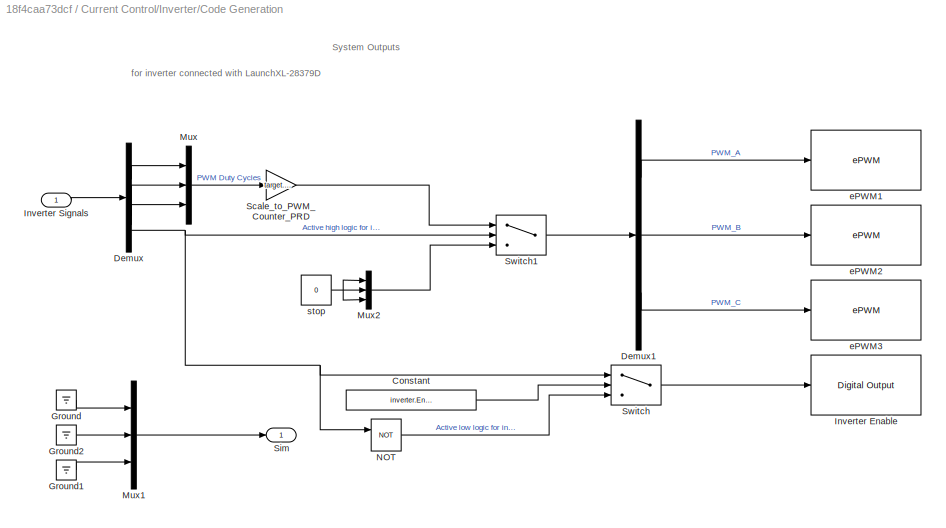
BLOCK [SubSystem] Current Control/Inverter/Code Generation
  VariantControl = (codegen)
BLOCK [Constant] Current Control/Inverter/Code Generation/Constant
  Value = inverter.EnableLogic
BLOCK [Demux] Current Control/Inverter/Code Generation/Demux
BLOCK [Demux] Current Control/Inverter/Code Generation/Demux1
  Outputs = 3
BLOCK [Ground] Current Control/Inverter/Code Generation/Ground
BLOCK [Ground] Current Control/Inverter/Code Generation/Ground1
BLOCK [Ground] Current Control/Inverter/Code Generation/Ground2
BLOCK [Reference] Current Control/Inverter/Code Generation/Inverter Enable  REF=c2837xDlib/Digital Output
  SourceBlock = c2837xDlib/Digital Output
  SourceType = F2837x GPIO Digital Output
  UserDataPersistent = on
BLOCK [Inport] Current Control/Inverter/Code Generation/Inverter Signals
BLOCK [Mux] Current Control/Inverter/Code Generation/Mux
  DisplayOption = bar
  Inputs = 3
BLOCK [Mux] Current Control/Inverter/Code Generation/Mux1
  DisplayOption = bar
  Inputs = 3
BLOCK [Mux] Current Control/Inverter/Code Generation/Mux2
  DisplayOption = bar
  Inputs = 3
BLOCK [Logic] Current Control/Inverter/Code Generation/NOT
  AllPortsSameDT = off
  IconShape = distinctive
  Operator = NOT
  OutDataTypeStr = boolean
BLOCK [Gain] Current Control/Inverter/Code Generation/Scale_to_PWM_Counter_PRD
  Gain = target.PWM_Counter_Period
  OutDataTypeStr = uint16
  RndMeth = Simplest
BLOCK [Outport] Current Control/Inverter/Code Generation/Sim
  VectorParamsAs1DForOutWhenUnconnected = off
BLOCK [Switch] Current Control/Inverter/Code Generation/Switch
  Criteria = u2 > Threshold
  InputSameDT = off
  SaturateOnIntegerOverflow = off
BLOCK [Switch] Current Control/Inverter/Code Generation/Switch1
  InputSameDT = off
  SaturateOnIntegerOverflow = off
  Threshold = 0.5
BLOCK [Reference] Current Control/Inverter/Code Generation/ePWM1  REF=c2802xlib/ePWM
  SourceBlock = c2802xlib/ePWM
  SourceType = ePWM Type 1-4
  UserDataPersistent = on
BLOCK [Reference] Current Control/Inverter/Code Generation/ePWM2  REF=c2802xlib/ePWM
  SourceBlock = c2802xlib/ePWM
  SourceType = ePWM Type 1-4
  UserDataPersistent = on
BLOCK [Reference] Current Control/Inverter/Code Generation/ePWM3  REF=c2802xlib/ePWM
  SourceBlock = c2802xlib/ePWM
  SourceType = ePWM Type 1-4
  UserDataPersistent = on
BLOCK [Constant] Current Control/Inverter/Code Generation/stop
  OutDataTypeStr = uint16
  Value = 0
BLOCK [Inport] Current Control/Inverter/Inverter Signals
BLOCK [Outport] Current Control/Inverter/Sim
  VectorParamsAs1DForOutWhenUnconnected = off
BLOCK [SubSystem] Current Control/Inverter/Simulation
  VariantControl = (sim)
BLOCK [DataTypeDuplicate] Current Control/Inverter/Simulation/Data Type Duplicate
BLOCK [Demux] Current Control/Inverter/Simulation/Demux
BLOCK [Inport] Current Control/Inverter/Simulation/Inverter Signals
BLOCK [Mux] Current Control/Inverter/Simulation/Mux
  DisplayOption = bar
  Inputs = 3
BLOCK [Mux] Current Control/Inverter/Simulation/Mux2
  DisplayOption = bar
  Inputs = 3
BLOCK [Outport] Current Control/Inverter/Simulation/Sim
  VectorParamsAs1DForOutWhenUnconnected = off
BLOCK [Switch] Current Control/Inverter/Simulation/Switch1
  InputSameDT = off
  RndMeth = Simplest
  SaturateOnIntegerOverflow = off
  Threshold = 0.5
BLOCK [Constant] Current Control/Inverter/Simulation/stop
  OutDataTypeStr = Inherit: Inherit via back propagation
  Value = 0
BLOCK [Mux] Current Control/Mux
  DisplayOption = bar
  Inputs = 2
BLOCK [SubSystem] Current Control/Output Scaling
BLOCK [Constant] Current Control/Output Scaling/Constant
  OutDataTypeStr = dataType
  Value = 0.5
BLOCK [DataTypeConversion] Current Control/Output Scaling/Data Type Conversion
  OutDataTypeStr = dataType
  RndMeth = Floor
  SaturateOnIntegerOverflow = off
BLOCK [DataStoreRead] Current Control/Output Scaling/Enable
  DataStoreName = Enable
  IndexOptions = Index vector (dialog)
  Indices = 1
  OutputSizes = 1
BLOCK [Gain] Current Control/Output Scaling/Gain
  Gain = 0.5
  OutDataTypeStr = dataType
  RndMeth = Simplest
BLOCK [Inport] Current Control/Output Scaling/PWM_Duty
BLOCK [Outport] Current Control/Output Scaling/PWM_Duty_Cycles
BLOCK [Outport] Current Control/Output Scaling/PWM_Enable
  Port = 2
BLOCK [Sum] Current Control/Output Scaling/Sum
  AccumDataTypeStr = Inherit: Same as first input
  Inputs = |++
BLOCK [Inport] Current Control/Pos_Sim
  Port = 3
BLOCK [SubSystem] Current Control/SCI_Tx
  Variant = on
  VariantControlMode = sim codegen switching
BLOCK [SubSystem] Current Control/SCI_Tx/Code Generation
  VariantControl = (codegen)
BLOCK [SubSystem] Current Control/SCI_Tx/Code Generation/Data_Conditioning_Tx
  Variant = on
BLOCK [Outport] Current Control/SCI_Tx/Code Generation/Data_Conditioning_Tx/Data_Log
BLOCK [SubSystem] Current Control/SCI_Tx/Code Generation/Data_Conditioning_Tx/Data_Type_Fixed_Point
  VariantControl = ~isequal(dataType,'single')
BLOCK [DataTypeConversion] Current Control/SCI_Tx/Code Generation/Data_Conditioning_Tx/Data_Type_Fixed_Point/Data Type Conversion
  OutDataTypeStr = fixdt(1,32,28)
  RndMeth = Simplest
  SaturateOnIntegerOverflow = off
BLOCK [DataTypeConversion] Current Control/SCI_Tx/Code Generation/Data_Conditioning_Tx/Data_Type_Fixed_Point/Data Type Conversion3
  ConvertRealWorld = Stored Integer (SI)
  OutDataTypeStr = uint32
  RndMeth = Simplest
  SaturateOnIntegerOverflow = off
BLOCK [Outport] Current Control/SCI_Tx/Code Generation/Data_Conditioning_Tx/Data_Type_Fixed_Point/Data_Log
BLOCK [Inport] Current Control/SCI_Tx/Code Generation/Data_Conditioning_Tx/Data_Type_Fixed_Point/In1
BLOCK [SubSystem] Current Control/SCI_Tx/Code Generation/Data_Conditioning_Tx/Data_Type_Float
  VariantControl = isequal(dataType, 'single')
BLOCK [Reference] Current Control/SCI_Tx/Code Generation/Data_Conditioning_Tx/Data_Type_Float/Byte Pack  REF=svdutilitieslib/Byte Pack
  SourceBlock = svdutilitieslib/Byte Pack
  SourceType = Byte pack
BLOCK [Outport] Current Control/SCI_Tx/Code Generation/Data_Conditioning_Tx/Data_Type_Float/Data_Log
BLOCK [Inport] Current Control/SCI_Tx/Code Generation/Data_Conditioning_Tx/Data_Type_Float/In1
BLOCK [Inport] Current Control/SCI_Tx/Code Generation/Data_Conditioning_Tx/In1
BLOCK [SubSystem] Current Control/SCI_Tx/Code Generation/Data_Logging
BLOCK [Reference] Current Control/SCI_Tx/Code Generation/Data_Logging/Counter Limited  REF=simulink/Sources/Counter
Limited
  SourceBlock = simulink/Sources/Counter\nLimited
  SourceType = Counter Limited
BLOCK [SubSystem] Current Control/SCI_Tx/Code Generation/Data_Logging/Data
  TreatAsAtomicUnit = on
BLOCK [ActionPort] Current Control/SCI_Tx/Code Generation/Data_Logging/Data/Action Port
BLOCK [Inport] Current Control/SCI_Tx/Code Generation/Data_Logging/Data/Data
BLOCK [Outport] Current Control/SCI_Tx/Code Generation/Data_Logging/Data/Data_out
  VectorParamsAs1DForOutWhenUnconnected = off
BLOCK [Inport] Current Control/SCI_Tx/Code Generation/Data_Logging/Data/Data_width
  Port = 2
BLOCK [Constant] Current Control/SCI_Tx/Code Generation/Data_Logging/Data/Dummy
  OutDataTypeStr = uint32
  Value = hex2dec('0000')
BLOCK [Outport] Current Control/SCI_Tx/Code Generation/Data_Logging/Data/Iteration
  Port = 2
  VectorParamsAs1DForOutWhenUnconnected = off
BLOCK [Mux] Current Control/SCI_Tx/Code Generation/Data_Logging/Data/Mux
  DisplayOption = bar
  Inputs = 2
BLOCK [Inport] Current Control/SCI_Tx/Code Generation/Data_Logging/Data_Log
BLOCK [SubSystem] Current Control/SCI_Tx/Code Generation/Data_Logging/End
  TreatAsAtomicUnit = on
BLOCK [ActionPort] Current Control/SCI_Tx/Code Generation/Data_Logging/End/Action Port
BLOCK [Bias] Current Control/SCI_Tx/Code Generation/Data_Logging/End/Bias
  Bias = 1
  SaturateOnIntegerOverflow = off
BLOCK [Inport] Current Control/SCI_Tx/Code Generation/Data_Logging/End/Data
BLOCK [Outport] Current Control/SCI_Tx/Code Generation/Data_Logging/End/Data_out
  VectorParamsAs1DForOutWhenUnconnected = off
BLOCK [Inport] Current Control/SCI_Tx/Code Generation/Data_Logging/End/Data_width
  Port = 2
BLOCK [Constant] Current Control/SCI_Tx/Code Generation/Data_Logging/End/End
  OutDataTypeStr = uint32
  Value = hex2dec('45454545')
BLOCK [Outport] Current Control/SCI_Tx/Code Generation/Data_Logging/End/Iteration
  Port = 2
  VectorParamsAs1DForOutWhenUnconnected = off
BLOCK [Mux] Current Control/SCI_Tx/Code Generation/Data_Logging/End/Mux
  DisplayOption = bar
  Inputs = 2
BLOCK [If] Current Control/SCI_Tx/Code Generation/Data_Logging/If
  ElseIfExpressions = u1 == 599
  IfExpression = u1 == 0
BLOCK [Merge] Current Control/SCI_Tx/Code Generation/Data_Logging/Merge
  Inputs = 3
BLOCK [Merge] Current Control/SCI_Tx/Code Generation/Data_Logging/Merge1
  Inputs = 3
BLOCK [Mux] Current Control/SCI_Tx/Code Generation/Data_Logging/Mux
  DisplayOption = bar
  Inputs = 2
BLOCK [Outport] Current Control/SCI_Tx/Code Generation/Data_Logging/SCI_Tx
BLOCK [SubSystem] Current Control/SCI_Tx/Code Generation/Data_Logging/Start
  TreatAsAtomicUnit = on
BLOCK [ActionPort] Current Control/SCI_Tx/Code Generation/Data_Logging/Start/Action Port
BLOCK [Bias] Current Control/SCI_Tx/Code Generation/Data_Logging/Start/Bias
  Bias = 1
  SaturateOnIntegerOverflow = off
BLOCK [Inport] Current Control/SCI_Tx/Code Generation/Data_Logging/Start/Data
BLOCK [Outport] Current Control/SCI_Tx/Code Generation/Data_Logging/Start/Data_out
  VectorParamsAs1DForOutWhenUnconnected = off
BLOCK [Inport] Current Control/SCI_Tx/Code Generation/Data_Logging/Start/Data_width
  Port = 2
BLOCK [Outport] Current Control/SCI_Tx/Code Generation/Data_Logging/Start/Iteration
  Port = 2
  VectorParamsAs1DForOutWhenUnconnected = off
BLOCK [Mux] Current Control/SCI_Tx/Code Generation/Data_Logging/Start/Mux
  DisplayOption = bar
  Inputs = 2
BLOCK [Constant] Current Control/SCI_Tx/Code Generation/Data_Logging/Start/Start
  OutDataTypeStr = uint32
  Value = hex2dec('53535353')
BLOCK [Width] Current Control/SCI_Tx/Code Generation/Data_Logging/Width
  DataType = uint16
  OutDataTypeMode = All ports same datatype
BLOCK [Demux] Current Control/SCI_Tx/Code Generation/Demux2
  Outputs = 2
BLOCK [Inport] Current Control/SCI_Tx/Code Generation/In1
BLOCK [SubSystem] Current Control/SCI_Tx/Code Generation/While Iterator Subsystem
  TreatAsAtomicUnit = on
BLOCK [Sum] Current Control/SCI_Tx/Code Generation/While Iterator Subsystem/Add
  IconShape = rectangular
  Inputs = +-
  OutDataTypeStr = Inherit: Same as first input
BLOCK [Inport] Current Control/SCI_Tx/Code Generation/While Iterator Subsystem/Data
BLOCK [MultiPortSwitch] Current Control/SCI_Tx/Code Generation/While Iterator Subsystem/Index Vector
  InputSameDT = off
  Inputs = 1
  SaturateOnIntegerOverflow = off
BLOCK [Inport] Current Control/SCI_Tx/Code Generation/While Iterator Subsystem/Iteration
  Port = 2
BLOCK [Reference] Current Control/SCI_Tx/Code Generation/While Iterator Subsystem/SCI Transmit  REF=c280xlib/SCI Transmit
  SourceBlock = c280xlib/SCI Transmit
  SourceType = C28x SCI Transmit
BLOCK [WhileIterator] Current Control/SCI_Tx/Code Generation/While Iterator Subsystem/While Iterator
  MaxIters = -1
  OutputDataType = int16
  ShowIterationPort = on
  WhileBlockType = do-while
BLOCK [Inport] Current Control/SCI_Tx/In1
BLOCK [SubSystem] Current Control/SCI_Tx/Simulation
  VariantControl = (sim)
BLOCK [Demux] Current Control/SCI_Tx/Simulation/Demux
  Outputs = 2
BLOCK [Inport] Current Control/SCI_Tx/Simulation/In1
BLOCK [Terminator] Current Control/SCI_Tx/Simulation/Terminator1
BLOCK [Terminator] Current Control/SCI_Tx/Simulation/Terminator2
BLOCK [SubSystem] Current Control/Sensor Driver Blocks
  Variant = on
  VariantControlMode = sim codegen switching
BLOCK [Outport] Current Control/Sensor Driver Blocks/Iab_Meas_ADC
BLOCK [SubSystem] Current Control/Sensor Driver Blocks/Sensor Driver Blocks (codegen)
  VariantControl = (codegen)
BLOCK [Reference] Current Control/Sensor Driver Blocks/Sensor Driver Blocks (codegen)/ADC_B_IN2  REF=c2802xlib/ADC
  SourceBlock = c2802xlib/ADC
  SourceType = ADC Type 3-5
  UserDataPersistent = on
BLOCK [Reference] Current Control/Sensor Driver Blocks/Sensor Driver Blocks (codegen)/ADC_C_IN2  REF=c2802xlib/ADC
  SourceBlock = c2802xlib/ADC
  SourceType = ADC Type 3-5
  UserDataPersistent = on
BLOCK [Outport] Current Control/Sensor Driver Blocks/Sensor Driver Blocks (codegen)/Iab_Meas_ADC
BLOCK [Mux] Current Control/Sensor Driver Blocks/Sensor Driver Blocks (codegen)/Mux1
  DisplayOption = bar
  Inputs = 2
BLOCK [SubSystem] Current Control/Sensor Driver Blocks/Sensor Driver Blocks (sim)
  VariantControl = (sim)
BLOCK [Ground] Current Control/Sensor Driver Blocks/Sensor Driver Blocks (sim)/Ground
BLOCK [Outport] Current Control/Sensor Driver Blocks/Sensor Driver Blocks (sim)/Iab_Meas_ADC
BLOCK [Outport] Current Control/Speed_fb
  InitialOutput = 0
  Port = 2
  VectorParamsAs1DForOutWhenUnconnected = off
BLOCK [TriggerPort] Current Control/Trigger
  PortDimensions = 1
  StatesWhenEnabling = held
  TriggerType = function-call
  VariantControl = Variant
BLOCK [DataStoreMemory] Data Store Memory
  DataStoreName = HallStateChangeFlag
  ShowAdditionalParam = off
BLOCK [DataStoreMemory] Data Store Memory1
  DataStoreName = GlobalSpeedCount
  ShowAdditionalParam = off
BLOCK [DataStoreMemory] Data Store Memory2
  DataStoreName = GlobalSpeedValidity
  ShowAdditionalParam = off
BLOCK [DataStoreMemory] Data Store Memory29
  DataStoreName = Enable
  OutDataTypeStr = boolean
  ShowAdditionalParam = off
BLOCK [DataStoreMemory] Data Store Memory3
  DataStoreName = GlobalDirection
  ShowAdditionalParam = off
BLOCK [DataStoreMemory] Data Store Memory4
  DataStoreName = GlobalHallState
  OutDataTypeStr = uint32
  ShowAdditionalParam = off
BLOCK [DataStoreMemory] Data Store Memory5
  DataStoreName = IaOffset
  InitialValue = inverter.CtSensAOffset
  ShowAdditionalParam = off
BLOCK [DataStoreMemory] Data Store Memory6
  DataStoreName = IbOffset
  InitialValue = inverter.CtSensBOffset
  NameLocation = top
  ShowAdditionalParam = off
BLOCK [DataStoreMemory] Data Store Memory7
  DataStoreName = Debug_signals
  InitialValue = 5
  OutDataTypeStr = uint16
  ReadBeforeWriteMsg = warning
  ShowAdditionalParam = off
  WriteAfterReadMsg = warning
  WriteAfterWriteMsg = warning
BLOCK [DataStoreMemory] Data Store Memory8
  DataStoreName = Speed_ref
  OutDataTypeStr = dataType
  ReadBeforeWriteMsg = warning
  ShowAdditionalParam = off
  WriteAfterReadMsg = warning
  WriteAfterWriteMsg = warning
BLOCK [Demux] Demux
  Outputs = 5
BLOCK [From] From
  GotoTag = Iab_Sim
BLOCK [From] From1
  GotoTag = Pos_Sim
BLOCK [Goto] Goto
  GotoTag = Iab_Sim
BLOCK [Goto] Goto1
  GotoTag = Pos_Sim
BLOCK [SubSystem] HW Interrupt
  Variant = on
  VariantControlMode = sim codegen switching
BLOCK [SubSystem] HW Interrupt/Code Generation
  VariantControl = (codegen)
BLOCK [Reference] HW Interrupt/Code Generation/HWI_ADCB1_INT  REF=svdschedulerlib/Hardware Interrupt v2
  LibrarySourceBlock = c2000lib/Scheduling/Hardware Interrupt
  SourceBlock = svdschedulerlib/Hardware Interrupt v2
  SourceType = HardwareInterrupt
  UserDataPersistent = on
BLOCK [Reference] HW Interrupt/Code Generation/HWI_ECAP1_INT  REF=svdschedulerlib/Hardware Interrupt v2
  LibrarySourceBlock = c2000lib/Scheduling/Hardware Interrupt
  SourceBlock = svdschedulerlib/Hardware Interrupt v2
  SourceType = HardwareInterrupt
  UserDataPersistent = on
BLOCK [Reference] HW Interrupt/Code Generation/HWI_ECAP2_INT  REF=svdschedulerlib/Hardware Interrupt v2
  LibrarySourceBlock = c2000lib/Scheduling/Hardware Interrupt
  SourceBlock = svdschedulerlib/Hardware Interrupt v2
  SourceType = HardwareInterrupt
  UserDataPersistent = on
BLOCK [Reference] HW Interrupt/Code Generation/HWI_ECAP3_INT  REF=svdschedulerlib/Hardware Interrupt v2
  LibrarySourceBlock = c2000lib/Scheduling/Hardware Interrupt
  SourceBlock = svdschedulerlib/Hardware Interrupt v2
  SourceType = HardwareInterrupt
  UserDataPersistent = on
BLOCK [Reference] HW Interrupt/Code Generation/HWI_SCIA_RX_INT  REF=svdschedulerlib/Hardware Interrupt v2
  LibrarySourceBlock = c2000lib/Scheduling/Hardware Interrupt
  SourceBlock = svdschedulerlib/Hardware Interrupt v2
  SourceType = HardwareInterrupt
  UserDataPersistent = on
BLOCK [Outport] HW Interrupt/Code Generation/HW_INT
  VectorParamsAs1DForOutWhenUnconnected = off
BLOCK [Mux] HW Interrupt/Code Generation/Mux
  DisplayOption = bar
  Inputs = 5
BLOCK [Outport] HW Interrupt/HW_INT
  OutputFunctionCall = on
  VectorParamsAs1DForOutWhenUnconnected = off
BLOCK [SubSystem] HW Interrupt/Simulation
  VariantControl = (sim)
BLOCK [Reference] HW Interrupt/Simulation/Function-Call Generator  REF=simulink/Ports &
Subsystems/Function-Call
Generator
  SourceBlock = simulink/Ports &\nSubsystems/Function-Call\nGenerator
  SourceType = Function-Call Generator
BLOCK [Reference] HW Interrupt/Simulation/Function-Call Generator1  REF=simulink/Ports &
Subsystems/Function-Call
Generator
  SourceBlock = simulink/Ports &\nSubsystems/Function-Call\nGenerator
  SourceType = Function-Call Generator
BLOCK [Reference] HW Interrupt/Simulation/Function-Call Generator2  REF=simulink/Ports &
Subsystems/Function-Call
Generator
  SourceBlock = simulink/Ports &\nSubsystems/Function-Call\nGenerator
  SourceType = Function-Call Generator
BLOCK [Reference] HW Interrupt/Simulation/Function-Call Generator3  REF=simulink/Ports &
Subsystems/Function-Call
Generator
  SourceBlock = simulink/Ports &\nSubsystems/Function-Call\nGenerator
  SourceType = Function-Call Generator
BLOCK [Reference] HW Interrupt/Simulation/Function-Call Generator4  REF=simulink/Ports &
Subsystems/Function-Call
Generator
  SourceBlock = simulink/Ports &\nSubsystems/Function-Call\nGenerator
  SourceType = Function-Call Generator
BLOCK [Outport] HW Interrupt/Simulation/HW_INT
  VectorParamsAs1DForOutWhenUnconnected = off
BLOCK [Mux] HW Interrupt/Simulation/Mux
  DisplayOption = bar
  Inputs = 5
BLOCK [SubSystem] Hall Sensor A
BLOCK [SubSystem] Hall Sensor A/Capture Event Selection
BLOCK [Outport] Hall Sensor A/Capture Event Selection/Capture Event Select
BLOCK [Inport] Hall Sensor A/Capture Event Selection/Hall State
BLOCK [If] Hall Sensor A/Capture Event Selection/If
  IfExpression = (u1 == 5 | u1 == 3)
BLOCK [Merge] Hall Sensor A/Capture Event Selection/Merge
BLOCK [SubSystem] Hall Sensor A/Capture Event Selection/Output 0
  TreatAsAtomicUnit = on
BLOCK [ActionPort] Hall Sensor A/Capture Event Selection/Output 0/Action Port
  ActionPortLabel = else
BLOCK [Constant] Hall Sensor A/Capture Event Selection/Output 0/Constant
  OutDataTypeStr = boolean
  Value = 0
BLOCK [Outport] Hall Sensor A/Capture Event Selection/Output 0/Out1
BLOCK [SubSystem] Hall Sensor A/Capture Event Selection/Output 1
  TreatAsAtomicUnit = on
BLOCK [ActionPort] Hall Sensor A/Capture Event Selection/Output 1/Action Port
  ActionPortLabel = if((u1 == 5 | u1 == 3))
BLOCK [Constant] Hall Sensor A/Capture Event Selection/Output 1/Constant
  OutDataTypeStr = boolean
BLOCK [Outport] Hall Sensor A/Capture Event Selection/Output 1/Out1
BLOCK [DataStoreRead] Hall Sensor A/Data Store Read
  DataStoreName = GlobalHallState
  IndexOptions = Index vector (dialog)
  Indices = 1
  OutputSizes = 1
  Priority = 1
BLOCK [DataStoreRead] Hall Sensor A/Data Store Read1
  DataStoreName = GlobalDirection
  IndexOptions = Index vector (dialog)
  Indices = 1
  OutputSizes = 1
BLOCK [DataStoreWrite] Hall Sensor A/Data Store Write
  DataStoreName = GlobalSpeedValidity
  IndexOptions = Index vector (dialog)
  Indices = 1
  OutputSizes = 1
BLOCK [DataStoreWrite] Hall Sensor A/Data Store Write1
  DataStoreName = GlobalDirection
  IndexOptions = Index vector (dialog)
  Indices = 1
  OutputSizes = 1
BLOCK [DataStoreWrite] Hall Sensor A/Data Store Write2
  DataStoreName = HallStateChangeFlag
  IndexOptions = Index vector (dialog)
  Indices = 1
  OutputSizes = 1
BLOCK [DataStoreWrite] Hall Sensor A/Data Store Write3
  DataStoreName = GlobalSpeedCount
  IndexOptions = Index vector (dialog)
  Indices = 1
  OutputSizes = 1
BLOCK [DataStoreWrite] Hall Sensor A/Data Store Write4
  DataStoreName = GlobalHallState
  IndexOptions = Index vector (dialog)
  Indices = 1
  OutputSizes = 1
  Priority = 2
BLOCK [Demux] Hall Sensor A/Demux
  Outputs = 2
BLOCK [From] Hall Sensor A/From
  GotoTag = HallState
BLOCK [Goto] Hall Sensor A/Goto
  GotoTag = HallState
BLOCK [Reference] Hall Sensor A/Hall Validity  REF=mcbpositiondecoderlib/Hall Validity
  SourceBlock = mcbpositiondecoderlib/Hall Validity
  SourceType = Hall Validity
BLOCK [SubSystem] Hall Sensor A/HallValidity
  Variant = on
  VariantControlMode = sim codegen switching
BLOCK [SubSystem] Hall Sensor A/HallValidity/CodeGen
  VariantControl = (codegen)
BLOCK [DataTypeConversion] Hall Sensor A/HallValidity/CodeGen/Data Type Conversion
  ConvertRealWorld = Stored Integer (SI)
  OutDataTypeStr = uint32
  RndMeth = Floor
  SaturateOnIntegerOverflow = off
BLOCK [Outport] Hall Sensor A/HallValidity/CodeGen/Out1
BLOCK [SubSystem] Hall Sensor A/HallValidity/CodeGen/Read Halls
BLOCK [Reference] Hall Sensor A/HallValidity/CodeGen/Read Halls/Bitwise Operator2  REF=simulink/Logic and Bit
Operations/Bitwise
Operator
  SourceBlock = simulink/Logic and Bit\nOperations/Bitwise\nOperator
  SourceType = Bitwise Operator
BLOCK [Reference] Hall Sensor A/HallValidity/CodeGen/Read Halls/Hall_A  REF=simulink/Logic and Bit
Operations/Bitwise
Operator
  SourceBlock = simulink/Logic and Bit\nOperations/Bitwise\nOperator
  SourceType = Bitwise Operator
BLOCK [Reference] Hall Sensor A/HallValidity/CodeGen/Read Halls/Hall_B  REF=simulink/Logic and Bit
Operations/Bitwise
Operator
  SourceBlock = simulink/Logic and Bit\nOperations/Bitwise\nOperator
  SourceType = Bitwise Operator
BLOCK [Reference] Hall Sensor A/HallValidity/CodeGen/Read Halls/Hall_C  REF=simulink/Logic and Bit
Operations/Bitwise
Operator
  SourceBlock = simulink/Logic and Bit\nOperations/Bitwise\nOperator
  SourceType = Bitwise Operator
BLOCK [Outport] Hall Sensor A/HallValidity/CodeGen/Read Halls/Halls
BLOCK [Reference] Hall Sensor A/HallValidity/CodeGen/Read Halls/Read GPIO DAT register  REF=idelinklib_common/Memory Copy
  SourceBlock = idelinklib_common/Memory Copy
  SourceType = Memory Copy
BLOCK [ArithShift] Hall Sensor A/HallValidity/CodeGen/Read Halls/Shift Arithmetic
  BitShiftNumber = 23
  InputPortMap = u0
BLOCK [ArithShift] Hall Sensor A/HallValidity/CodeGen/Read Halls/Shift Arithmetic1
  BitShiftNumber = 22
  InputPortMap = u0
BLOCK [ArithShift] Hall Sensor A/HallValidity/CodeGen/Read Halls/Shift Arithmetic2
  BitShiftNumber = 22
  InputPortMap = u0
BLOCK [Outport] Hall Sensor A/HallValidity/Out1
BLOCK [SubSystem] Hall Sensor A/HallValidity/Sim
  VariantControl = (sim)
BLOCK [DataTypeConversion] Hall Sensor A/HallValidity/Sim/Data Type Conversion
  ConvertRealWorld = Stored Integer (SI)
  OutDataTypeStr = uint32
  RndMeth = Floor
  SaturateOnIntegerOverflow = off
BLOCK [Ground] Hall Sensor A/HallValidity/Sim/Ground
BLOCK [Outport] Hall Sensor A/HallValidity/Sim/Out1
BLOCK [Switch] Hall Sensor A/Switch
  Criteria = u2 ~= 0
  InputSameDT = off
  SaturateOnIntegerOverflow = off
BLOCK [Terminator] Hall Sensor A/Terminator
BLOCK [SubSystem] Hall Sensor A/eCAP
  Variant = on
  VariantControlMode = sim codegen switching
BLOCK [SubSystem] Hall Sensor A/eCAP/Code generation
  VariantControl = (codegen)
BLOCK [Reference] Hall Sensor A/eCAP/Code generation/eCAP  REF=c280xlib/eCAP
  SourceBlock = c280xlib/eCAP
  SourceType = C28x eCAP
BLOCK [Outport] Hall Sensor A/eCAP/Code generation/eCAP_Out
BLOCK [SubSystem] Hall Sensor A/eCAP/Simulation
  VariantControl = (sim)
BLOCK [Ground] Hall Sensor A/eCAP/Simulation/Ground
BLOCK [Ground] Hall Sensor A/eCAP/Simulation/Ground1
BLOCK [Mux] Hall Sensor A/eCAP/Simulation/Mux
  DisplayOption = bar
  Inputs = 2
BLOCK [Outport] Hall Sensor A/eCAP/Simulation/eCAP_Out
BLOCK [Outport] Hall Sensor A/eCAP/eCAP_Out
BLOCK [TriggerPort] Hall Sensor A/eCAP1 Interrupt
  StatesWhenEnabling = held
  TriggerType = function-call
  VariantControl = Variant
BLOCK [SubSystem] Hall Sensor B
BLOCK [SubSystem] Hall Sensor B/Capture Event Selection
BLOCK [Outport] Hall Sensor B/Capture Event Selection/Capture Event Select
BLOCK [Inport] Hall Sensor B/Capture Event Selection/Hall State
BLOCK [If] Hall Sensor B/Capture Event Selection/If
  IfExpression = (u1 == 3 | u1 == 6)
BLOCK [Merge] Hall Sensor B/Capture Event Selection/Merge
BLOCK [SubSystem] Hall Sensor B/Capture Event Selection/Output 0
  TreatAsAtomicUnit = on
BLOCK [ActionPort] Hall Sensor B/Capture Event Selection/Output 0/Action Port
  ActionPortLabel = else
BLOCK [Constant] Hall Sensor B/Capture Event Selection/Output 0/Constant
  OutDataTypeStr = boolean
  Value = 0
BLOCK [Outport] Hall Sensor B/Capture Event Selection/Output 0/Out1
BLOCK [SubSystem] Hall Sensor B/Capture Event Selection/Output 1
  TreatAsAtomicUnit = on
BLOCK [ActionPort] Hall Sensor B/Capture Event Selection/Output 1/Action Port
  ActionPortLabel = if((u1 == 3 | u1 == 6))
BLOCK [Constant] Hall Sensor B/Capture Event Selection/Output 1/Constant
  OutDataTypeStr = boolean
BLOCK [Outport] Hall Sensor B/Capture Event Selection/Output 1/Out1
BLOCK [DataStoreRead] Hall Sensor B/Data Store Read
  DataStoreName = GlobalHallState
  IndexOptions = Index vector (dialog)
  Indices = 1
  OutputSizes = 1
  Priority = 1
BLOCK [DataStoreRead] Hall Sensor B/Data Store Read1
  DataStoreName = GlobalDirection
  IndexOptions = Index vector (dialog)
  Indices = 1
  OutputSizes = 1
BLOCK [DataStoreWrite] Hall Sensor B/Data Store Write
  DataStoreName = GlobalSpeedValidity
  IndexOptions = Index vector (dialog)
  Indices = 1
  OutputSizes = 1
BLOCK [DataStoreWrite] Hall Sensor B/Data Store Write1
  DataStoreName = GlobalDirection
  IndexOptions = Index vector (dialog)
  Indices = 1
  OutputSizes = 1
BLOCK [DataStoreWrite] Hall Sensor B/Data Store Write2
  DataStoreName = HallStateChangeFlag
  IndexOptions = Index vector (dialog)
  Indices = 1
  OutputSizes = 1
BLOCK [DataStoreWrite] Hall Sensor B/Data Store Write3
  DataStoreName = GlobalSpeedCount
  IndexOptions = Index vector (dialog)
  Indices = 1
  OutputSizes = 1
BLOCK [DataStoreWrite] Hall Sensor B/Data Store Write4
  DataStoreName = GlobalHallState
  IndexOptions = Index vector (dialog)
  Indices = 1
  OutputSizes = 1
  Priority = 2
BLOCK [Demux] Hall Sensor B/Demux
  Outputs = 2
BLOCK [From] Hall Sensor B/From
  GotoTag = HallState
BLOCK [Goto] Hall Sensor B/Goto
  GotoTag = HallState
BLOCK [Reference] Hall Sensor B/Hall Validity  REF=mcbpositiondecoderlib/Hall Validity
  SourceBlock = mcbpositiondecoderlib/Hall Validity
  SourceType = Hall Validity
BLOCK [SubSystem] Hall Sensor B/HallValidity
  Variant = on
  VariantControlMode = sim codegen switching
BLOCK [SubSystem] Hall Sensor B/HallValidity/CodeGen
  VariantControl = (codegen)
BLOCK [DataTypeConversion] Hall Sensor B/HallValidity/CodeGen/Data Type Conversion
  ConvertRealWorld = Stored Integer (SI)
  OutDataTypeStr = uint32
  RndMeth = Floor
  SaturateOnIntegerOverflow = off
BLOCK [Outport] Hall Sensor B/HallValidity/CodeGen/Out1
BLOCK [SubSystem] Hall Sensor B/HallValidity/CodeGen/Read Halls
BLOCK [Reference] Hall Sensor B/HallValidity/CodeGen/Read Halls/Bitwise Operator2  REF=simulink/Logic and Bit
Operations/Bitwise
Operator
  SourceBlock = simulink/Logic and Bit\nOperations/Bitwise\nOperator
  SourceType = Bitwise Operator
BLOCK [Reference] Hall Sensor B/HallValidity/CodeGen/Read Halls/Hall_A  REF=simulink/Logic and Bit
Operations/Bitwise
Operator
  SourceBlock = simulink/Logic and Bit\nOperations/Bitwise\nOperator
  SourceType = Bitwise Operator
BLOCK [Reference] Hall Sensor B/HallValidity/CodeGen/Read Halls/Hall_B  REF=simulink/Logic and Bit
Operations/Bitwise
Operator
  SourceBlock = simulink/Logic and Bit\nOperations/Bitwise\nOperator
  SourceType = Bitwise Operator
BLOCK [Reference] Hall Sensor B/HallValidity/CodeGen/Read Halls/Hall_C  REF=simulink/Logic and Bit
Operations/Bitwise
Operator
  SourceBlock = simulink/Logic and Bit\nOperations/Bitwise\nOperator
  SourceType = Bitwise Operator
BLOCK [Outport] Hall Sensor B/HallValidity/CodeGen/Read Halls/Halls
BLOCK [Reference] Hall Sensor B/HallValidity/CodeGen/Read Halls/Read GPIO DAT register  REF=idelinklib_common/Memory Copy
  SourceBlock = idelinklib_common/Memory Copy
  SourceType = Memory Copy
BLOCK [ArithShift] Hall Sensor B/HallValidity/CodeGen/Read Halls/Shift Arithmetic
  BitShiftNumber = 23
  InputPortMap = u0
BLOCK [ArithShift] Hall Sensor B/HallValidity/CodeGen/Read Halls/Shift Arithmetic1
  BitShiftNumber = 22
  InputPortMap = u0
BLOCK [ArithShift] Hall Sensor B/HallValidity/CodeGen/Read Halls/Shift Arithmetic2
  BitShiftNumber = 22
  InputPortMap = u0
BLOCK [Outport] Hall Sensor B/HallValidity/Out1
BLOCK [SubSystem] Hall Sensor B/HallValidity/Sim
  VariantControl = (sim)
BLOCK [DataTypeConversion] Hall Sensor B/HallValidity/Sim/Data Type Conversion
  ConvertRealWorld = Stored Integer (SI)
  OutDataTypeStr = uint32
  RndMeth = Floor
  SaturateOnIntegerOverflow = off
BLOCK [Ground] Hall Sensor B/HallValidity/Sim/Ground
BLOCK [Outport] Hall Sensor B/HallValidity/Sim/Out1
BLOCK [Switch] Hall Sensor B/Switch
  Criteria = u2 ~= 0
  InputSameDT = off
  SaturateOnIntegerOverflow = off
  Threshold = 3
BLOCK [Terminator] Hall Sensor B/Terminator
BLOCK [SubSystem] Hall Sensor B/eCAP
  Variant = on
  VariantControlMode = sim codegen switching
BLOCK [SubSystem] Hall Sensor B/eCAP/Code generation
  VariantControl = (codegen)
BLOCK [Reference] Hall Sensor B/eCAP/Code generation/eCAP  REF=c280xlib/eCAP
  SourceBlock = c280xlib/eCAP
  SourceType = C28x eCAP
BLOCK [Outport] Hall Sensor B/eCAP/Code generation/eCAP_Out
BLOCK [SubSystem] Hall Sensor B/eCAP/Simulation
  VariantControl = (sim)
BLOCK [Ground] Hall Sensor B/eCAP/Simulation/Ground
BLOCK [Ground] Hall Sensor B/eCAP/Simulation/Ground1
BLOCK [Mux] Hall Sensor B/eCAP/Simulation/Mux
  DisplayOption = bar
  Inputs = 2
BLOCK [Outport] Hall Sensor B/eCAP/Simulation/eCAP_Out
BLOCK [Outport] Hall Sensor B/eCAP/eCAP_Out
BLOCK [TriggerPort] Hall Sensor B/eCAP2 Interrupt
  StatesWhenEnabling = held
  TriggerType = function-call
  VariantControl = Variant
BLOCK [SubSystem] Hall Sensor C
BLOCK [SubSystem] Hall Sensor C/Capture Event Selection
BLOCK [Outport] Hall Sensor C/Capture Event Selection/Capture Event Select
BLOCK [Inport] Hall Sensor C/Capture Event Selection/Hall State
BLOCK [If] Hall Sensor C/Capture Event Selection/If
  IfExpression = (u1 == 5 | u1 == 6)
BLOCK [Merge] Hall Sensor C/Capture Event Selection/Merge
BLOCK [SubSystem] Hall Sensor C/Capture Event Selection/Output 0
  TreatAsAtomicUnit = on
BLOCK [ActionPort] Hall Sensor C/Capture Event Selection/Output 0/Action Port
  ActionPortLabel = else
BLOCK [Constant] Hall Sensor C/Capture Event Selection/Output 0/Constant
  OutDataTypeStr = boolean
  Value = 0
BLOCK [Outport] Hall Sensor C/Capture Event Selection/Output 0/Out1
BLOCK [SubSystem] Hall Sensor C/Capture Event Selection/Output 1
  TreatAsAtomicUnit = on
BLOCK [ActionPort] Hall Sensor C/Capture Event Selection/Output 1/Action Port
  ActionPortLabel = if((u1 == 5 | u1 == 6))
BLOCK [Constant] Hall Sensor C/Capture Event Selection/Output 1/Constant
  OutDataTypeStr = boolean
BLOCK [Outport] Hall Sensor C/Capture Event Selection/Output 1/Out1
BLOCK [DataStoreRead] Hall Sensor C/Data Store Read
  DataStoreName = GlobalHallState
  IndexOptions = Index vector (dialog)
  Indices = 1
  OutputSizes = 1
  Priority = 1
BLOCK [DataStoreRead] Hall Sensor C/Data Store Read1
  DataStoreName = GlobalDirection
  IndexOptions = Index vector (dialog)
  Indices = 1
  OutputSizes = 1
BLOCK [DataStoreWrite] Hall Sensor C/Data Store Write
  DataStoreName = GlobalSpeedValidity
  IndexOptions = Index vector (dialog)
  Indices = 1
  OutputSizes = 1
BLOCK [DataStoreWrite] Hall Sensor C/Data Store Write1
  DataStoreName = GlobalDirection
  IndexOptions = Index vector (dialog)
  Indices = 1
  OutputSizes = 1
BLOCK [DataStoreWrite] Hall Sensor C/Data Store Write2
  DataStoreName = HallStateChangeFlag
  IndexOptions = Index vector (dialog)
  Indices = 1
  OutputSizes = 1
BLOCK [DataStoreWrite] Hall Sensor C/Data Store Write3
  DataStoreName = GlobalSpeedCount
  IndexOptions = Index vector (dialog)
  Indices = 1
  OutputSizes = 1
BLOCK [DataStoreWrite] Hall Sensor C/Data Store Write4
  DataStoreName = GlobalHallState
  IndexOptions = Index vector (dialog)
  Indices = 1
  OutputSizes = 1
  Priority = 2
BLOCK [Demux] Hall Sensor C/Demux
  Outputs = 2
BLOCK [From] Hall Sensor C/From1
  GotoTag = HallState
BLOCK [Goto] Hall Sensor C/Goto1
  GotoTag = HallState
BLOCK [Reference] Hall Sensor C/Hall Validity  REF=mcbpositiondecoderlib/Hall Validity
  SourceBlock = mcbpositiondecoderlib/Hall Validity
  SourceType = Hall Validity
BLOCK [SubSystem] Hall Sensor C/HallValidity
  Variant = on
  VariantControlMode = sim codegen switching
BLOCK [SubSystem] Hall Sensor C/HallValidity/CodeGen
  VariantControl = (codegen)
BLOCK [DataTypeConversion] Hall Sensor C/HallValidity/CodeGen/Data Type Conversion
  ConvertRealWorld = Stored Integer (SI)
  OutDataTypeStr = uint32
  RndMeth = Floor
  SaturateOnIntegerOverflow = off
BLOCK [Outport] Hall Sensor C/HallValidity/CodeGen/Out1
BLOCK [SubSystem] Hall Sensor C/HallValidity/CodeGen/Read Halls
BLOCK [Reference] Hall Sensor C/HallValidity/CodeGen/Read Halls/Bitwise Operator2  REF=simulink/Logic and Bit
Operations/Bitwise
Operator
  SourceBlock = simulink/Logic and Bit\nOperations/Bitwise\nOperator
  SourceType = Bitwise Operator
BLOCK [Reference] Hall Sensor C/HallValidity/CodeGen/Read Halls/Hall_A  REF=simulink/Logic and Bit
Operations/Bitwise
Operator
  SourceBlock = simulink/Logic and Bit\nOperations/Bitwise\nOperator
  SourceType = Bitwise Operator
BLOCK [Reference] Hall Sensor C/HallValidity/CodeGen/Read Halls/Hall_B  REF=simulink/Logic and Bit
Operations/Bitwise
Operator
  SourceBlock = simulink/Logic and Bit\nOperations/Bitwise\nOperator
  SourceType = Bitwise Operator
BLOCK [Reference] Hall Sensor C/HallValidity/CodeGen/Read Halls/Hall_C  REF=simulink/Logic and Bit
Operations/Bitwise
Operator
  SourceBlock = simulink/Logic and Bit\nOperations/Bitwise\nOperator
  SourceType = Bitwise Operator
BLOCK [Outport] Hall Sensor C/HallValidity/CodeGen/Read Halls/Halls
BLOCK [Reference] Hall Sensor C/HallValidity/CodeGen/Read Halls/Read GPIO DAT register  REF=idelinklib_common/Memory Copy
  SourceBlock = idelinklib_common/Memory Copy
  SourceType = Memory Copy
BLOCK [ArithShift] Hall Sensor C/HallValidity/CodeGen/Read Halls/Shift Arithmetic
  BitShiftNumber = 23
  InputPortMap = u0
BLOCK [ArithShift] Hall Sensor C/HallValidity/CodeGen/Read Halls/Shift Arithmetic1
  BitShiftNumber = 22
  InputPortMap = u0
BLOCK [ArithShift] Hall Sensor C/HallValidity/CodeGen/Read Halls/Shift Arithmetic2
  BitShiftNumber = 22
  InputPortMap = u0
BLOCK [Outport] Hall Sensor C/HallValidity/Out1
BLOCK [SubSystem] Hall Sensor C/HallValidity/Sim
  VariantControl = (sim)
BLOCK [DataTypeConversion] Hall Sensor C/HallValidity/Sim/Data Type Conversion
  ConvertRealWorld = Stored Integer (SI)
  OutDataTypeStr = uint32
  RndMeth = Floor
  SaturateOnIntegerOverflow = off
BLOCK [Ground] Hall Sensor C/HallValidity/Sim/Ground
BLOCK [Outport] Hall Sensor C/HallValidity/Sim/Out1
BLOCK [Switch] Hall Sensor C/Switch
  Criteria = u2 ~= 0
  InputSameDT = off
  SaturateOnIntegerOverflow = off
  Threshold = 3
BLOCK [Terminator] Hall Sensor C/Terminator
BLOCK [SubSystem] Hall Sensor C/eCAP
  Variant = on
  VariantControlMode = sim codegen switching
BLOCK [SubSystem] Hall Sensor C/eCAP/Code generation
  VariantControl = (codegen)
BLOCK [Reference] Hall Sensor C/eCAP/Code generation/eCAP  REF=c280xlib/eCAP
  SourceBlock = c280xlib/eCAP
  SourceType = C28x eCAP
BLOCK [Outport] Hall Sensor C/eCAP/Code generation/eCAP_Out
BLOCK [SubSystem] Hall Sensor C/eCAP/Simulation
  VariantControl = (sim)
BLOCK [Ground] Hall Sensor C/eCAP/Simulation/Ground
BLOCK [Ground] Hall Sensor C/eCAP/Simulation/Ground1
BLOCK [Mux] Hall Sensor C/eCAP/Simulation/Mux
  DisplayOption = bar
  Inputs = 2
BLOCK [Outport] Hall Sensor C/eCAP/Simulation/eCAP_Out
BLOCK [Outport] Hall Sensor C/eCAP/eCAP_Out
BLOCK [TriggerPort] Hall Sensor C/eCAP3 Interrupt
  StatesWhenEnabling = held
  TriggerType = function-call
  VariantControl = Variant
BLOCK [SubSystem] Hardware Init
  TreatAsAtomicUnit = on
BLOCK [Constant] Hardware Init/6PWM_Mode
  OutDataTypeStr = uint16
  Priority = 1000
  SampleTime = -1
  Value = 0x3A16
BLOCK [Constant] Hardware Init/ADC_Gain_Setting
  OutDataTypeStr = uint16
  Priority = 1000
  SampleTime = -1
  Value = inverter.SPI_Gain_Setting
BLOCK [EventListener] Hardware Init/Event Listener
  DisableCoverage = on
  EventName = reset
BLOCK [Mux] Hardware Init/Mux
  DisplayOption = bar
  Inputs = 2
BLOCK [SubSystem] Hardware Init/Variant Subsystem
  Variant = on
  VariantControlMode = sim codegen switching
BLOCK [SubSystem] Hardware Init/Variant Subsystem/Code Generation
  VariantControl = (codegen)
BLOCK [Constant] Hardware Init/Variant Subsystem/Code Generation/ADC Calib Enable
  OutDataTypeStr = Inherit: Inherit via back propagation
  Value = inverter.ADCOffsetCalibEnable
BLOCK [SubSystem] Hardware Init/Variant Subsystem/Code Generation/Calculate ADC Offset 
  Priority = 1001
  TreatAsAtomicUnit = on
BLOCK [Constant] Hardware Init/Variant Subsystem/Code Generation/Calculate ADC Offset /Constant
  Value = 8
BLOCK [Constant] Hardware Init/Variant Subsystem/Code Generation/Calculate ADC Offset /Constant1
  OutDataTypeStr = Inherit: Inherit via back propagation
  Value = inverter.CtSensOffsetMax
BLOCK [Constant] Hardware Init/Variant Subsystem/Code Generation/Calculate ADC Offset /Constant2
  OutDataTypeStr = Inherit: Inherit via back propagation
  Value = inverter.CtSensOffsetMin
BLOCK [Product] Hardware Init/Variant Subsystem/Code Generation/Calculate ADC Offset /Divide
  Inputs = */
  OutDataTypeStr = uint16
BLOCK [Product] Hardware Init/Variant Subsystem/Code Generation/Calculate ADC Offset /Divide1
  Inputs = */
  OutDataTypeStr = uint16
BLOCK [EnablePort] Hardware Init/Variant Subsystem/Code Generation/Calculate ADC Offset /Enable
BLOCK [SubSystem] Hardware Init/Variant Subsystem/Code Generation/Calculate ADC Offset /For Iterator Subsystem
  TreatAsAtomicUnit = on
BLOCK [Reference] Hardware Init/Variant Subsystem/Code Generation/Calculate ADC Offset /For Iterator Subsystem/ADC_A_IN0  REF=c2802xlib/ADC
  Priority = 20
  SourceBlock = c2802xlib/ADC
  SourceType = ADC Type 3-5
  UserDataPersistent = on
BLOCK [Reference] Hardware Init/Variant Subsystem/Code Generation/Calculate ADC Offset /For Iterator Subsystem/ADC_B_IN0  REF=c2802xlib/ADC
  Priority = 20
  SourceBlock = c2802xlib/ADC
  SourceType = ADC Type 3-5
  UserDataPersistent = on
BLOCK [ForIterator] Hardware Init/Variant Subsystem/Code Generation/Calculate ADC Offset /For Iterator Subsystem/For Iterator
  IterationLimit = 16
  IterationVariableDataType = uint16
BLOCK [If] Hardware Init/Variant Subsystem/Code Generation/Calculate ADC Offset /For Iterator Subsystem/If
  IfExpression = u1 > 8
  ShowElse = off
BLOCK [SubSystem] Hardware Init/Variant Subsystem/Code Generation/Calculate ADC Offset /For Iterator Subsystem/If Action Subsystem
  TreatAsAtomicUnit = on
BLOCK [ActionPort] Hardware Init/Variant Subsystem/Code Generation/Calculate ADC Offset /For Iterator Subsystem/If Action Subsystem/Action Port
BLOCK [Inport] Hardware Init/Variant Subsystem/Code Generation/Calculate ADC Offset /For Iterator Subsystem/If Action Subsystem/In1
BLOCK [Inport] Hardware Init/Variant Subsystem/Code Generation/Calculate ADC Offset /For Iterator Subsystem/If Action Subsystem/In2
  Port = 2
BLOCK [Memory] Hardware Init/Variant Subsystem/Code Generation/Calculate ADC Offset /For Iterator Subsystem/If Action Subsystem/Memory
  InheritSampleTime = on
  NameLocation = top
BLOCK [Memory] Hardware Init/Variant Subsystem/Code Generation/Calculate ADC Offset /For Iterator Subsystem/If Action Subsystem/Memory1
  InheritSampleTime = on
  NameLocation = top
BLOCK [Outport] Hardware Init/Variant Subsystem/Code Generation/Calculate ADC Offset /For Iterator Subsystem/If Action Subsystem/Out1
BLOCK [Outport] Hardware Init/Variant Subsystem/Code Generation/Calculate ADC Offset /For Iterator Subsystem/If Action Subsystem/Out2
  Port = 2
BLOCK [Sum] Hardware Init/Variant Subsystem/Code Generation/Calculate ADC Offset /For Iterator Subsystem/If Action Subsystem/Sum
  IconShape = rectangular
BLOCK [Sum] Hardware Init/Variant Subsystem/Code Generation/Calculate ADC Offset /For Iterator Subsystem/If Action Subsystem/Sum1
  IconShape = rectangular
BLOCK [Outport] Hardware Init/Variant Subsystem/Code Generation/Calculate ADC Offset /For Iterator Subsystem/Out1
BLOCK [Outport] Hardware Init/Variant Subsystem/Code Generation/Calculate ADC Offset /For Iterator Subsystem/Out2
  Port = 2
BLOCK [If] Hardware Init/Variant Subsystem/Code Generation/Calculate ADC Offset /If
  IfExpression = u1 > u3 & u1 < u2
  NumInputs = 3
BLOCK [SubSystem] Hardware Init/Variant Subsystem/Code Generation/Calculate ADC Offset /If Action Subsystem
  TreatAsAtomicUnit = on
BLOCK [ActionPort] Hardware Init/Variant Subsystem/Code Generation/Calculate ADC Offset /If Action Subsystem/Action Port
BLOCK [DataStoreWrite] Hardware Init/Variant Subsystem/Code Generation/Calculate ADC Offset /If Action Subsystem/Data Store Write1
  DataStoreName = IaOffset
  IndexOptions = Index vector (dialog)
  Indices = 1
  OutputSizes = 1
BLOCK [Inport] Hardware Init/Variant Subsystem/Code Generation/Calculate ADC Offset /If Action Subsystem/In1
BLOCK [SubSystem] Hardware Init/Variant Subsystem/Code Generation/Calculate ADC Offset /If Action Subsystem1
  TreatAsAtomicUnit = on
BLOCK [ActionPort] Hardware Init/Variant Subsystem/Code Generation/Calculate ADC Offset /If Action Subsystem1/Action Port
BLOCK [Constant] Hardware Init/Variant Subsystem/Code Generation/Calculate ADC Offset /If Action Subsystem1/Constant
  OutDataTypeStr = Inherit: Inherit via back propagation
  Value = inverter.CtSensAOffset
BLOCK [DataStoreWrite] Hardware Init/Variant Subsystem/Code Generation/Calculate ADC Offset /If Action Subsystem1/Data Store Write1
  DataStoreName = IaOffset
  IndexOptions = Index vector (dialog)
  Indices = 1
  OutputSizes = 1
BLOCK [SubSystem] Hardware Init/Variant Subsystem/Code Generation/Calculate ADC Offset /If Action Subsystem2
  TreatAsAtomicUnit = on
BLOCK [ActionPort] Hardware Init/Variant Subsystem/Code Generation/Calculate ADC Offset /If Action Subsystem2/Action Port
BLOCK [DataStoreWrite] Hardware Init/Variant Subsystem/Code Generation/Calculate ADC Offset /If Action Subsystem2/Data Store Write2
  DataStoreName = IbOffset
  IndexOptions = Index vector (dialog)
  Indices = 1
  OutputSizes = 1
BLOCK [Inport] Hardware Init/Variant Subsystem/Code Generation/Calculate ADC Offset /If Action Subsystem2/In1
BLOCK [SubSystem] Hardware Init/Variant Subsystem/Code Generation/Calculate ADC Offset /If Action Subsystem3
  TreatAsAtomicUnit = on
BLOCK [ActionPort] Hardware Init/Variant Subsystem/Code Generation/Calculate ADC Offset /If Action Subsystem3/Action Port
BLOCK [Constant] Hardware Init/Variant Subsystem/Code Generation/Calculate ADC Offset /If Action Subsystem3/Constant1
  OutDataTypeStr = Inherit: Inherit via back propagation
  Value = inverter.CtSensBOffset
BLOCK [DataStoreWrite] Hardware Init/Variant Subsystem/Code Generation/Calculate ADC Offset /If Action Subsystem3/Data Store Write2
  DataStoreName = IbOffset
  IndexOptions = Index vector (dialog)
  Indices = 1
  OutputSizes = 1
BLOCK [If] Hardware Init/Variant Subsystem/Code Generation/Calculate ADC Offset /If1
  IfExpression = u1 > u3 & u1 < u2
  NumInputs = 3
BLOCK [SubSystem] Hardware Init/Variant Subsystem/Code Generation/DRV Enable
  Priority = 1
BLOCK [SubSystem] Hardware Init/Variant Subsystem/Code Generation/DRV Enable/ADC Gain Setting
BLOCK [Demux] Hardware Init/Variant Subsystem/Code Generation/DRV Enable/ADC Gain Setting/Demux
  Outputs = 2
BLOCK [Display] Hardware Init/Variant Subsystem/Code Generation/DRV Enable/ADC Gain Setting/Display
  Decimation = 1
  Format = hex (Stored Integer)
BLOCK [Display] Hardware Init/Variant Subsystem/Code Generation/DRV Enable/ADC Gain Setting/Display1
  Decimation = 1
  Format = hex (Stored Integer)
BLOCK [EnablePort] Hardware Init/Variant Subsystem/Code Generation/DRV Enable/ADC Gain Setting/Enable
BLOCK [Inport] Hardware Init/Variant Subsystem/Code Generation/DRV Enable/ADC Gain Setting/In1
BLOCK [Reference] Hardware Init/Variant Subsystem/Code Generation/DRV Enable/ADC Gain Setting/SPI Master Transfer2  REF=c280xlib/SPI Controller Transfer
  SourceBlock = c280xlib/SPI Controller Transfer
  SourceType = codertarget.tic2000.blocks.SPIMasterTransfer
BLOCK [Reference] Hardware Init/Variant Subsystem/Code Generation/DRV Enable/ADC Gain Setting/SPI Master Transfer3  REF=c280xlib/SPI Controller Transfer
  SourceBlock = c280xlib/SPI Controller Transfer
  SourceType = codertarget.tic2000.blocks.SPIMasterTransfer
BLOCK [Constant] Hardware Init/Variant Subsystem/Code Generation/DRV Enable/Constant
  OutDataTypeStr = Inherit: Inherit via back propagation
BLOCK [Constant] Hardware Init/Variant Subsystem/Code Generation/DRV Enable/Constant1
  Value = inverter.EnableLogic
BLOCK [Reference] Hardware Init/Variant Subsystem/Code Generation/DRV Enable/DRV830x Enable  REF=c2837xDlib/Digital Output
  SourceBlock = c2837xDlib/Digital Output
  SourceType = F2837x GPIO Digital Output
  UserDataPersistent = on
BLOCK [Inport] Hardware Init/Variant Subsystem/Code Generation/DRV Enable/In
BLOCK [Logic] Hardware Init/Variant Subsystem/Code Generation/DRV Enable/NOT
  AllPortsSameDT = off
  IconShape = distinctive
  Operator = NOT
  OutDataTypeStr = boolean
BLOCK [Switch] Hardware Init/Variant Subsystem/Code Generation/DRV Enable/Switch
  Criteria = u2 > Threshold
  InputSameDT = off
  SaturateOnIntegerOverflow = off
BLOCK [SubSystem] Hardware Init/Variant Subsystem/Code Generation/Default ADC Offset
  Priority = 1001
  TreatAsAtomicUnit = on
BLOCK [Constant] Hardware Init/Variant Subsystem/Code Generation/Default ADC Offset/Constant
  OutDataTypeStr = Inherit: Inherit via back propagation
  Value = inverter.CtSensAOffset
BLOCK [Constant] Hardware Init/Variant Subsystem/Code Generation/Default ADC Offset/Constant1
  OutDataTypeStr = Inherit: Inherit via back propagation
  Value = inverter.CtSensBOffset
BLOCK [DataStoreWrite] Hardware Init/Variant Subsystem/Code Generation/Default ADC Offset/Data Store Write1
  DataStoreName = IaOffset
  IndexOptions = Index vector (dialog)
  Indices = 1
  OutputSizes = 1
BLOCK [DataStoreWrite] Hardware Init/Variant Subsystem/Code Generation/Default ADC Offset/Data Store Write2
  DataStoreName = IbOffset
  IndexOptions = Index vector (dialog)
  Indices = 1
  OutputSizes = 1
BLOCK [EnablePort] Hardware Init/Variant Subsystem/Code Generation/Default ADC Offset/Enable
BLOCK [Inport] Hardware Init/Variant Subsystem/Code Generation/In1
BLOCK [Logic] Hardware Init/Variant Subsystem/Code Generation/NOT
  AllPortsSameDT = off
  IconShape = distinctive
  Operator = NOT
  OutDataTypeStr = boolean
BLOCK [Inport] Hardware Init/Variant Subsystem/In1
BLOCK [SubSystem] Hardware Init/Variant Subsystem/Simulation
  VariantControl = (sim)
BLOCK [Inport] Hardware Init/Variant Subsystem/Simulation/In1
BLOCK [Terminator] Hardware Init/Variant Subsystem/Simulation/Terminator
BLOCK [SubSystem] Heartbeat LED
  TreatAsAtomicUnit = on
BLOCK [SubSystem] Heartbeat LED/Heartbeat LED
  Variant = on
  VariantControlMode = sim codegen switching
BLOCK [SubSystem] Heartbeat LED/Heartbeat LED/Code generation
  VariantControl = (codegen)
BLOCK [Reference] Heartbeat LED/Heartbeat LED/Code generation/Digital Output2  REF=c2837xDlib/Digital Output
  SourceBlock = c2837xDlib/Digital Output
  SourceType = F2837x GPIO Digital Output
  UserDataPersistent = on
BLOCK [Inport] Heartbeat LED/Heartbeat LED/Code generation/In1
BLOCK [Inport] Heartbeat LED/Heartbeat LED/In1
BLOCK [SubSystem] Heartbeat LED/Heartbeat LED/Simulation
  VariantControl = (sim)
BLOCK [Inport] Heartbeat LED/Heartbeat LED/Simulation/In1
BLOCK [Terminator] Heartbeat LED/Heartbeat LED/Simulation/Simulation_Terminator
BLOCK [Constant] Heartbeat LED/RED_LED
  OutDataTypeStr = uint16
  SampleTime = 0.5
BLOCK [SubSystem] Inverter and Motor - Plant Model
  RTWSystemCode = Reusable function
BLOCK [SubSystem] Inverter and Motor - Plant Model/Codegeneration
BLOCK [Inport] Inverter and Motor - Plant Model/Codegeneration/Duty_Cycles
BLOCK [Ground] Inverter and Motor - Plant Model/Codegeneration/Ground
BLOCK [Ground] Inverter and Motor - Plant Model/Codegeneration/Ground1
BLOCK [Outport] Inverter and Motor - Plant Model/Codegeneration/Iab_fb_Sim
  VectorParamsAs1DForOutWhenUnconnected = off
BLOCK [Outport] Inverter and Motor - Plant Model/Codegeneration/Pos_fb_Sim
  Port = 2
  VectorParamsAs1DForOutWhenUnconnected = off
BLOCK [Terminator] Inverter and Motor - Plant Model/Codegeneration/Terminator
BLOCK [Outport] Inverter and Motor - Plant Model/Iab_meas_ADC
  VectorParamsAs1DForOutWhenUnconnected = off
BLOCK [Outport] Inverter and Motor - Plant Model/Pos_mech
  Port = 2
  VectorParamsAs1DForOutWhenUnconnected = off
BLOCK [SubSystem] Inverter and Motor - Plant Model/Simulation
BLOCK [Inport] Inverter and Motor - Plant Model/Simulation/Duty_Cycles
BLOCK [Outport] Inverter and Motor - Plant Model/Simulation/Iab_fb_Sim
  VectorParamsAs1DForOutWhenUnconnected = off
BLOCK [SubSystem] Inverter and Motor - Plant Model/Simulation/Inverter
BLOCK [Reference] Inverter and Motor - Plant Model/Simulation/Inverter/Average-Value Inverter  REF=mcbplantlib/Average-Value Inverter
  SourceBlock = mcbplantlib/Average-Value Inverter
  SourceType = Average Value Inverter
BLOCK [Constant] Inverter and Motor - Plant Model/Simulation/Inverter/Constant2
  OutDataTypeStr = single
  SampleTime = -1
  Value = inverter.V_dc
BLOCK [DataTypeConversion] Inverter and Motor - Plant Model/Simulation/Inverter/Data Type Conversion1
  OutDataTypeStr = single
  RndMeth = Simplest
  SaturateOnIntegerOverflow = off
BLOCK [Inport] Inverter and Motor - Plant Model/Simulation/Inverter/Duty_abc
BLOCK [RateTransition] Inverter and Motor - Plant Model/Simulation/Inverter/Rate Transition3
  Integrity = off
  OutPortSampleTime = Ts_inverter
BLOCK [Outport] Inverter and Motor - Plant Model/Simulation/Inverter/Vabc
  VectorParamsAs1DForOutWhenUnconnected = off
BLOCK [SubSystem] Inverter and Motor - Plant Model/Simulation/Load_Profile (Torque)
BLOCK [DataTypeConversion] Inverter and Motor - Plant Model/Simulation/Load_Profile (Torque)/Data Type Conversion
  OutDataTypeStr = single
  RndMeth = Floor
  SaturateOnIntegerOverflow = off
BLOCK [Reference] Inverter and Motor - Plant Model/Simulation/Load_Profile (Torque)/IIR Filter  REF=mcbcontrolslib/IIR Filter
  SourceBlock = mcbcontrolslib/IIR Filter
  SourceType = IIR Filter
BLOCK [Outport] Inverter and Motor - Plant Model/Simulation/Load_Profile (Torque)/Load_Trq
  VectorParamsAs1DForOutWhenUnconnected = off
BLOCK [Step] Inverter and Motor - Plant Model/Simulation/Load_Profile (Torque)/T_load
  After = 0.5*pmsm.T_rated
  Before = 0.05*pmsm.T_rated
  SampleTime = Ts_simulink
  Time = 5
BLOCK [Outport] Inverter and Motor - Plant Model/Simulation/Pos_fb_Sim
  Port = 2
  VectorParamsAs1DForOutWhenUnconnected = off
BLOCK [RateTransition] Inverter and Motor - Plant Model/Simulation/RT1
  Deterministic = off
  OutPortSampleTime = Ts_simulink
BLOCK [RateTransition] Inverter and Motor - Plant Model/Simulation/RT3
  Deterministic = off
  OutPortSampleTime = Ts_simulink
BLOCK [RateTransition] Inverter and Motor - Plant Model/Simulation/Rate Transition
  Deterministic = off
  OutPortSampleTime = Ts_motor
BLOCK [RateTransition] Inverter and Motor - Plant Model/Simulation/Rate Transition1
  Deterministic = off
  OutPortSampleTime = Ts_motor
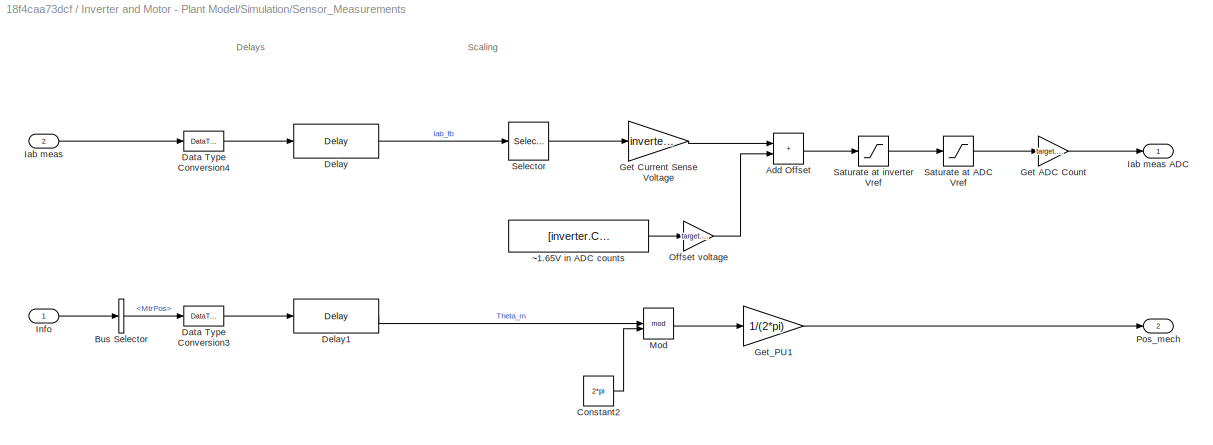
BLOCK [SubSystem] Inverter and Motor - Plant Model/Simulation/Sensor_Measurements
BLOCK [Sum] Inverter and Motor - Plant Model/Simulation/Sensor_Measurements/Add Offset
  IconShape = rectangular
  RndMeth = Simplest
BLOCK [BusSelector] Inverter and Motor - Plant Model/Simulation/Sensor_Measurements/Bus Selector
  OutputSignals = MtrPos
BLOCK [Constant] Inverter and Motor - Plant Model/Simulation/Sensor_Measurements/Constant2
  OutDataTypeStr = single
  SampleTime = -1
  Value = 2*pi
BLOCK [DataTypeConversion] Inverter and Motor - Plant Model/Simulation/Sensor_Measurements/Data Type Conversion3
  OutDataTypeStr = single
  RndMeth = Simplest
  SaturateOnIntegerOverflow = off
BLOCK [DataTypeConversion] Inverter and Motor - Plant Model/Simulation/Sensor_Measurements/Data Type Conversion4
  OutDataTypeStr = single
  RndMeth = Simplest
  SaturateOnIntegerOverflow = off
BLOCK [Delay] Inverter and Motor - Plant Model/Simulation/Sensor_Measurements/Delay
  DelayLength = PI_params.delay_Currents
  InputPortMap = u0
BLOCK [Delay] Inverter and Motor - Plant Model/Simulation/Sensor_Measurements/Delay1
  DelayLength = PI_params.delay_Position
  InputPortMap = u0
BLOCK [Gain] Inverter and Motor - Plant Model/Simulation/Sensor_Measurements/Get ADC Count
  Gain = target.ADC_MaxCount/target.ADC_Vref
  OutDataTypeStr = uint16
  OutMax = target.ADC_MaxCount
  OutMin = 0
  RndMeth = Simplest
BLOCK [Gain] Inverter and Motor - Plant Model/Simulation/Sensor_Measurements/Get Current Sense Voltage
  Gain = inverter.invertingAmp * inverter.ISenseVoltPerAmp
  OutDataTypeStr = Inherit: Same as input
  RndMeth = Simplest
BLOCK [Gain] Inverter and Motor - Plant Model/Simulation/Sensor_Measurements/Get_PU1
  Gain = 1/(2*pi)
  OutDataTypeStr = dataType
  RndMeth = Simplest
BLOCK [Inport] Inverter and Motor - Plant Model/Simulation/Sensor_Measurements/Iab meas
  Port = 2
BLOCK [Outport] Inverter and Motor - Plant Model/Simulation/Sensor_Measurements/Iab meas ADC
  VectorParamsAs1DForOutWhenUnconnected = off
BLOCK [Inport] Inverter and Motor - Plant Model/Simulation/Sensor_Measurements/Info
BLOCK [Math] Inverter and Motor - Plant Model/Simulation/Sensor_Measurements/Mod
  Operator = mod
BLOCK [Gain] Inverter and Motor - Plant Model/Simulation/Sensor_Measurements/Offset voltage
  Gain = target.ADC_Vref / target.ADC_MaxCount
  RndMeth = Simplest
BLOCK [Outport] Inverter and Motor - Plant Model/Simulation/Sensor_Measurements/Pos_mech
  Port = 2
BLOCK [Saturate] Inverter and Motor - Plant Model/Simulation/Sensor_Measurements/Saturate at ADC Vref
  LowerLimit = 0
  UpperLimit = target.ADC_Vref
BLOCK [Saturate] Inverter and Motor - Plant Model/Simulation/Sensor_Measurements/Saturate at inverter Vref
  LowerLimit = 0
  UpperLimit = inverter.ISenseVref
BLOCK [Selector] Inverter and Motor - Plant Model/Simulation/Sensor_Measurements/Selector
  IndexOptions = Index vector (dialog)
  Indices = [1 2]
  InputPortWidth = 3
  OutputSizes = 1
BLOCK [Constant] Inverter and Motor - Plant Model/Simulation/Sensor_Measurements/~1.65V in ADC counts
  OutDataTypeStr = uint16
  SampleTime = -1
  Value = [inverter.CtSensAOffset inverter.CtSensBOffset]
BLOCK [Reference] Inverter and Motor - Plant Model/Simulation/Surface Mount PMSM  REF=autolibpmsmexterior/Surface Mount PMSM
  LibrarySourceBlock = mcblib/Electrical Systems/Motors/Surface Mount PMSM
  SourceBlock = autolibpmsmexterior/Surface Mount PMSM
  SourceType = Surface Mount PMSM
BLOCK [Terminator] Inverter and Motor - Plant Model/Simulation/Terminator
BLOCK [Inport] Inverter and Motor - Plant Model/Vabc_out_PU
BLOCK [VariantSink] Inverter and Motor - Plant Model/Variant Sink
  VariantControlMode = sim codegen switching
BLOCK [VariantSource] Inverter and Motor - Plant Model/Variant Source
  VariantControlMode = sim codegen switching
BLOCK [VariantSource] Inverter and Motor - Plant Model/Variant Source1
  VariantControlMode = sim codegen switching
BLOCK [RateTransition] RT1
  Deterministic = off
  OutPortSampleTime = Ts_speed
BLOCK [RateTransition] RT2
  Deterministic = off
BLOCK [RateTransition] RT3
  Deterministic = off
BLOCK [RateTransition] RT4
  Deterministic = off
BLOCK [RateTransition] RT5
  Deterministic = off
BLOCK [RateTransition] RT6
  Deterministic = off
  OutPortSampleTime = Ts_speed
BLOCK [RateTransition] RT7
  Deterministic = off
  OutPortSampleTime = Ts_speed
BLOCK [SubSystem] Serial Receive
  RTWMemSecFuncExecute = code_ramfuncs
  SystemSampleTime = 1e-3
BLOCK [DataStoreWrite] Serial Receive/Data Store Write
  DataStoreName = Enable
  IndexOptions = Index vector (dialog)
  Indices = 1
  OutputSizes = 1
BLOCK [DataStoreWrite] Serial Receive/Data Store Write1
  DataStoreName = Speed_ref
  IndexOptions = Index vector (dialog)
  Indices = 1
  OutputSizes = 1
BLOCK [DataStoreWrite] Serial Receive/Data Store Write2
  DataStoreName = Debug_signals
  IndexOptions = Index vector (dialog)
  Indices = 1
  OutputSizes = 1
BLOCK [SubSystem] Serial Receive/Data_Conditioning_Rx
  Variant = on
BLOCK [SubSystem] Serial Receive/Data_Conditioning_Rx/Data_Type_Fixed_Point
  VariantControl = ~isequal(dataType, 'single')
BLOCK [DataTypeConversion] Serial Receive/Data_Conditioning_Rx/Data_Type_Fixed_Point/Data Type Conversion1
  OutDataTypeStr = dataType
  RndMeth = Simplest
  SaturateOnIntegerOverflow = off
BLOCK [DataTypeConversion] Serial Receive/Data_Conditioning_Rx/Data_Type_Fixed_Point/Data Type Conversion2
  ConvertRealWorld = Stored Integer (SI)
  OutDataTypeStr = fixdt(1,32,28)
  RndMeth = Simplest
  SaturateOnIntegerOverflow = off
BLOCK [DataTypeConversion] Serial Receive/Data_Conditioning_Rx/Data_Type_Fixed_Point/Data Type Conversion3
  OutDataTypeStr = uint16
  RndMeth = Simplest
  SaturateOnIntegerOverflow = off
BLOCK [Demux] Serial Receive/Data_Conditioning_Rx/Data_Type_Fixed_Point/Demux
  Outputs = 2
BLOCK [Outport] Serial Receive/Data_Conditioning_Rx/Data_Type_Fixed_Point/Desired Speed
BLOCK [Inport] Serial Receive/Data_Conditioning_Rx/Data_Type_Fixed_Point/In1
BLOCK [Outport] Serial Receive/Data_Conditioning_Rx/Data_Type_Fixed_Point/Out2
  Port = 2
BLOCK [SubSystem] Serial Receive/Data_Conditioning_Rx/Data_Type_Float
  VariantControl = isequal(dataType, 'single')
BLOCK [DataTypeConversion] Serial Receive/Data_Conditioning_Rx/Data_Type_Float/Data Type Conversion2
  OutDataTypeStr = uint16
  RndMeth = Simplest
  SaturateOnIntegerOverflow = off
BLOCK [Demux] Serial Receive/Data_Conditioning_Rx/Data_Type_Float/Demux
  Outputs = 2
BLOCK [Outport] Serial Receive/Data_Conditioning_Rx/Data_Type_Float/Desired Speed
BLOCK [Inport] Serial Receive/Data_Conditioning_Rx/Data_Type_Float/In1
BLOCK [Outport] Serial Receive/Data_Conditioning_Rx/Data_Type_Float/Out2
  Port = 2
BLOCK [Outport] Serial Receive/Data_Conditioning_Rx/Desired Speed
BLOCK [Inport] Serial Receive/Data_Conditioning_Rx/In1
BLOCK [Outport] Serial Receive/Data_Conditioning_Rx/Out2
  Port = 2
BLOCK [Outport] Serial Receive/Desired Speed
  VectorParamsAs1DForOutWhenUnconnected = off
BLOCK [SubSystem] Serial Receive/SCI_Rx
  Variant = on
  VariantControlMode = sim codegen switching
BLOCK [SubSystem] Serial Receive/SCI_Rx/Code Generation
  Variant = on
  VariantControl = (codegen)
BLOCK [Outport] Serial Receive/SCI_Rx/Code Generation/Data
BLOCK [SubSystem] Serial Receive/SCI_Rx/Code Generation/Data_Type_Fixed_Point
  VariantControl = ~isequal(dataType, 'single')
BLOCK [Outport] Serial Receive/SCI_Rx/Code Generation/Data_Type_Fixed_Point/Data
BLOCK [Reference] Serial Receive/SCI_Rx/Code Generation/Data_Type_Fixed_Point/SCI Receive  REF=c280xlib/SCI Receive
  SourceBlock = c280xlib/SCI Receive
  SourceType = C28x SCI Receive
BLOCK [SubSystem] Serial Receive/SCI_Rx/Code Generation/Data_Type_Float
  VariantControl = isequal(dataType, 'single')
BLOCK [Outport] Serial Receive/SCI_Rx/Code Generation/Data_Type_Float/Data
BLOCK [Reference] Serial Receive/SCI_Rx/Code Generation/Data_Type_Float/SCI Receive  REF=c280xlib/SCI Receive
  SourceBlock = c280xlib/SCI Receive
  SourceType = C28x SCI Receive
BLOCK [Outport] Serial Receive/SCI_Rx/Data
BLOCK [SubSystem] Serial Receive/SCI_Rx/Simulation
  VariantControl = (sim)
BLOCK [Outport] Serial Receive/SCI_Rx/Simulation/Data
BLOCK [DataTypeConversion] Serial Receive/SCI_Rx/Simulation/Data Type Conversion2
  OutDataTypeStr = dataType
  RndMeth = Simplest
  SaturateOnIntegerOverflow = off
BLOCK [SubSystem] Serial Receive/SCI_Rx/Simulation/Data_Conditioning_Tx
  Variant = on
BLOCK [Outport] Serial Receive/SCI_Rx/Simulation/Data_Conditioning_Tx/Data
BLOCK [SubSystem] Serial Receive/SCI_Rx/Simulation/Data_Conditioning_Tx/Data_Type_Fixed_Point
  VariantControl = ~isequal(dataType, 'single')
BLOCK [Outport] Serial Receive/SCI_Rx/Simulation/Data_Conditioning_Tx/Data_Type_Fixed_Point/Data
BLOCK [DataTypeConversion] Serial Receive/SCI_Rx/Simulation/Data_Conditioning_Tx/Data_Type_Fixed_Point/Data Type Conversion
  OutDataTypeStr = fixdt(1,32,28)
  RndMeth = Simplest
  SaturateOnIntegerOverflow = off
BLOCK [DataTypeConversion] Serial Receive/SCI_Rx/Simulation/Data_Conditioning_Tx/Data_Type_Fixed_Point/Data Type Conversion1
  OutDataTypeStr = uint32
  RndMeth = Simplest
  SaturateOnIntegerOverflow = off
BLOCK [DataTypeConversion] Serial Receive/SCI_Rx/Simulation/Data_Conditioning_Tx/Data_Type_Fixed_Point/Data Type Conversion3
  ConvertRealWorld = Stored Integer (SI)
  OutDataTypeStr = uint32
  RndMeth = Simplest
  SaturateOnIntegerOverflow = off
BLOCK [Inport] Serial Receive/SCI_Rx/Simulation/Data_Conditioning_Tx/Data_Type_Fixed_Point/In1
BLOCK [Inport] Serial Receive/SCI_Rx/Simulation/Data_Conditioning_Tx/Data_Type_Fixed_Point/In2
  Port = 2
BLOCK [Mux] Serial Receive/SCI_Rx/Simulation/Data_Conditioning_Tx/Data_Type_Fixed_Point/Mux
  DisplayOption = bar
  Inputs = 2
BLOCK [SubSystem] Serial Receive/SCI_Rx/Simulation/Data_Conditioning_Tx/Data_Type_Float
  VariantControl = isequal(dataType, 'single')
BLOCK [Outport] Serial Receive/SCI_Rx/Simulation/Data_Conditioning_Tx/Data_Type_Float/Data
BLOCK [DataTypeConversion] Serial Receive/SCI_Rx/Simulation/Data_Conditioning_Tx/Data_Type_Float/Data Type Conversion2
  OutDataTypeStr = single
  RndMeth = Simplest
  SaturateOnIntegerOverflow = off
BLOCK [Inport] Serial Receive/SCI_Rx/Simulation/Data_Conditioning_Tx/Data_Type_Float/In1
BLOCK [Inport] Serial Receive/SCI_Rx/Simulation/Data_Conditioning_Tx/Data_Type_Float/In2
  Port = 2
BLOCK [Mux] Serial Receive/SCI_Rx/Simulation/Data_Conditioning_Tx/Data_Type_Float/Mux
  DisplayOption = bar
  Inputs = 2
BLOCK [Inport] Serial Receive/SCI_Rx/Simulation/Data_Conditioning_Tx/In1
BLOCK [Inport] Serial Receive/SCI_Rx/Simulation/Data_Conditioning_Tx/In2
  Port = 2
BLOCK [Constant] Serial Receive/SCI_Rx/Simulation/Debug_signals
  OutDataTypeStr = uint16
  SampleTime = -1
BLOCK [Constant] Serial Receive/SCI_Rx/Simulation/Enable
  OutDataTypeStr = uint16
  SampleTime = -1
BLOCK [SubSystem] Serial Receive/SCI_Rx/Simulation/Parse
BLOCK [Reference] Serial Receive/SCI_Rx/Simulation/Parse/Bitwise Operator  REF=simulink/Logic and Bit
Operations/Bitwise
Operator
  SourceBlock = simulink/Logic and Bit\nOperations/Bitwise\nOperator
  SourceType = Bitwise Operator
BLOCK [Reference] Serial Receive/SCI_Rx/Simulation/Parse/Bitwise Operator1  REF=simulink/Logic and Bit
Operations/Bitwise
Operator
  SourceBlock = simulink/Logic and Bit\nOperations/Bitwise\nOperator
  SourceType = Bitwise Operator
BLOCK [Outport] Serial Receive/SCI_Rx/Simulation/Parse/Data
BLOCK [Inport] Serial Receive/SCI_Rx/Simulation/Parse/Debug_signals
  Port = 2
BLOCK [Inport] Serial Receive/SCI_Rx/Simulation/Parse/Enable_PWM
BLOCK [ArithShift] Serial Receive/SCI_Rx/Simulation/Parse/Shift Arithmetic1
  BitShiftNumber = -4
  InputPortMap = u0
BLOCK [Sum] Serial Receive/SCI_Rx/Simulation/Parse/Sum
  IconShape = rectangular
BLOCK [Step] Serial Receive/SCI_Rx/Simulation/Reversal
  Time = 6
BLOCK [Constant] Serial Receive/SCI_Rx/Simulation/Speed_Ref_Final (rpm)
  OutDataTypeStr = dataType
  SampleTime = -1
  Value = -0.8*pmsm.N_base
BLOCK [Step] Serial Receive/SCI_Rx/Simulation/Speed_Ref_Init (rpm)
  After = 0.9*pmsm.N_base
  Before = 0.2*pmsm.N_base
  Time = 4
BLOCK [Switch] Serial Receive/SCI_Rx/Simulation/Switch
  Criteria = u2 > Threshold
  InputSameDT = off
  SaturateOnIntegerOverflow = off
BLOCK [Gain] Serial Receive/SCI_Rx/Simulation/rpm2PU
  Gain = 1/pmsm.N_base
  OutDataTypeStr = Inherit: Same as input
  RndMeth = Simplest
BLOCK [TriggerPort] Serial Receive/SCI_Rx_INT
  StatesWhenEnabling = held
  TriggerType = function-call
  VariantControl = Variant
BLOCK [SubSystem] Serial Receive/unParse
BLOCK [Reference] Serial Receive/unParse/Bitwise Operator  REF=simulink/Logic and Bit
Operations/Bitwise
Operator
  SourceBlock = simulink/Logic and Bit\nOperations/Bitwise\nOperator
  SourceType = Bitwise Operator
BLOCK [Reference] Serial Receive/unParse/Bitwise Operator1  REF=simulink/Logic and Bit
Operations/Bitwise
Operator
  SourceBlock = simulink/Logic and Bit\nOperations/Bitwise\nOperator
  SourceType = Bitwise Operator
BLOCK [Inport] Serial Receive/unParse/Data
BLOCK [DataTypeConversion] Serial Receive/unParse/Data Type Conversion3
  OutDataTypeStr = boolean
  RndMeth = Simplest
  SaturateOnIntegerOverflow = off
BLOCK [DataTypeConversion] Serial Receive/unParse/Data Type Conversion4
  NameLocation = left
  OutDataTypeStr = uint16
  RndMeth = Simplest
  SaturateOnIntegerOverflow = off
BLOCK [Outport] Serial Receive/unParse/Debug_signals
  Port = 2
BLOCK [Outport] Serial Receive/unParse/Enable_PWM
BLOCK [ArithShift] Serial Receive/unParse/Shift Arithmetic1
  BitShiftNumber = 4
  InputPortMap = u0
BLOCK [SubSystem] Speed Control
  RTWSystemCode = Reusable function
  SystemSampleTime = Ts_speed
  TreatAsAtomicUnit = on
BLOCK [Constant] Speed Control/Id_ref
  OutDataTypeStr = dataType
  SampleTime = Ts_speed
  Value = 0
BLOCK [Outport] Speed Control/IdqRef_PU
  VectorParamsAs1DForOutWhenUnconnected = off
BLOCK [Mux] Speed Control/Mux1
  DisplayOption = bar
  Inputs = 2
BLOCK [SubSystem] Speed Control/PI_Controller_Speed
BLOCK [DataStoreRead] Speed Control/PI_Controller_Speed/Data Store Read2
  DataStoreName = Enable
  IndexOptions = Index vector (dialog)
  Indices = 1
  OutputSizes = 1
BLOCK [Reference] Speed Control/PI_Controller_Speed/Discrete PI Controller with anti-windup & reset  REF=slpidlib/PID Controller
  LibrarySourceBlock = mcbcontrolslib/PI Controller
  SourceBlock = slpidlib/PID Controller
  SourceType = PID 1dof
BLOCK [Outport] Speed Control/PI_Controller_Speed/Iq_ref
  VectorParamsAs1DForOutWhenUnconnected = off
BLOCK [Constant] Speed Control/PI_Controller_Speed/Ki1
  NameLocation = top
  OutDataTypeStr = dataType
  SampleTime = -1
  Value = PI_params.Ki_speed*Ts_speed
BLOCK [Constant] Speed Control/PI_Controller_Speed/Ki2
  NameLocation = top
  OutDataTypeStr = dataType
  SampleTime = -1
  Value = 0
BLOCK [Constant] Speed Control/PI_Controller_Speed/Kp1
  NameLocation = top
  OutDataTypeStr = dataType
  SampleTime = -1
  Value = PI_params.Kp_speed
BLOCK [Logic] Speed Control/PI_Controller_Speed/Logical Operator
  AllPortsSameDT = off
  IconShape = distinctive
  Operator = NOT
  OutDataTypeStr = boolean
BLOCK [Inport] Speed Control/PI_Controller_Speed/N_fb
  Port = 2
BLOCK [Inport] Speed Control/PI_Controller_Speed/N_ref
BLOCK [Sum] Speed Control/PI_Controller_Speed/Sum
  AccumDataTypeStr = Inherit: Same as first input
  Inputs = |+-
  RndMeth = Round
BLOCK [Reference] Speed Control/PI_Controller_Speed/Zero_Cancellation  REF=mcbcontrolslib/IIR Filter
  SourceBlock = mcbcontrolslib/IIR Filter
  SourceType = IIR Filter
BLOCK [Inport] Speed Control/Speed_Meas_PU
  Port = 2
BLOCK [Inport] Speed Control/Speed_Ref_PU
BLOCK [SubSystem] Speed Control/Speed_Ref_Selector
BLOCK [DataStoreRead] Speed Control/Speed_Ref_Selector/Data Store Read1
  DataStoreName = Enable
  IndexOptions = Index vector (dialog)
  Indices = 1
  OutputSizes = 1
BLOCK [Inport] Speed Control/Speed_Ref_Selector/Speed_Ref_In
BLOCK [Inport] Speed Control/Speed_Ref_Selector/Speed_Ref_Open
  Port = 2
BLOCK [Outport] Speed Control/Speed_Ref_Selector/Speed_Ref_PU
BLOCK [Switch] Speed Control/Speed_Ref_Selector/Switch
  Criteria = u2 > Threshold
  InputSameDT = off
  SaturateOnIntegerOverflow = off
  Threshold = 0.5
ANNOTATION (root): Note: This example requires a TI F28379D LaunchPad with a BOOSTXL-DRV8305 booster pack or BOOSTXL-3PhGaNInv connected to a PMSM Motor with Hall sensor
ANNOTATION (root): <copyright redacted>
ANNOTATION (root): Explore more: 1. Edit motor & inverter parameters 2. Use Offset computation model to find out position offset. 3. Update offset in Init scrip t to variable ' pmsm.PositionOffset '. 4. Build, Deploy & Start 5. Control motor via host model 6. Learn more about this example.
ANNOTATION (root): Field Oriented Control of PMSM with Hall sensors
ANNOTATION Current Control/Input Scaling/Read_Sensor (codegen)/Calculate Position from Hall: Note: The glitch filter rejects lower values of the speed count input, which resutls in motor speed greater than 10 times Base speed
ANNOTATION Current Control/Input Scaling/Read_Sensor (codegen)/Calculate Position from Hall/Atomic Hall Reading/Function-Call Subsystem/Read Halls: GPIO 54
ANNOTATION Current Control/Input Scaling/Read_Sensor (codegen)/Calculate Position from Hall/Atomic Hall Reading/Function-Call Subsystem/Read Halls: GPIO 55
ANNOTATION Current Control/Input Scaling/Read_Sensor (codegen)/Calculate Position from Hall/Atomic Hall Reading/Function-Call Subsystem/Read Halls: GPIO 57
ANNOTATION Current Control/Input Scaling/Read_Sensor (codegen)/Calculate Position from Hall/Atomic Hall Reading/Integrity_Check/Refresh_Halls/Read Halls: GPIO 54
ANNOTATION Current Control/Input Scaling/Read_Sensor (codegen)/Calculate Position from Hall/Atomic Hall Reading/Integrity_Check/Refresh_Halls/Read Halls: GPIO 55
ANNOTATION Current Control/Input Scaling/Read_Sensor (codegen)/Calculate Position from Hall/Atomic Hall Reading/Integrity_Check/Refresh_Halls/Read Halls: GPIO 57
ANNOTATION Current Control/Inverter/Code Generation: System Outputs
ANNOTATION Current Control/Inverter/Code Generation: for inverter connected with LaunchXL-28379D
ANNOTATION Current Control/SCI_Tx/Code Generation/Data_Logging: Fast Serial Data Monitoring (32-bit)
ANNOTATION Hall Sensor A/HallValidity/CodeGen/Read Halls: GPIO 54
ANNOTATION Hall Sensor A/HallValidity/CodeGen/Read Halls: GPIO 55
ANNOTATION Hall Sensor A/HallValidity/CodeGen/Read Halls: GPIO 57
ANNOTATION Hall Sensor B/HallValidity/CodeGen/Read Halls: GPIO 54
ANNOTATION Hall Sensor B/HallValidity/CodeGen/Read Halls: GPIO 55
ANNOTATION Hall Sensor B/HallValidity/CodeGen/Read Halls: GPIO 57
ANNOTATION Hall Sensor C/HallValidity/CodeGen/Read Halls: GPIO 54
ANNOTATION Hall Sensor C/HallValidity/CodeGen/Read Halls: GPIO 55
ANNOTATION Hall Sensor C/HallValidity/CodeGen/Read Halls: GPIO 57
ANNOTATION Heartbeat LED: Heartbeat LED 1HZ
ANNOTATION Inverter and Motor - Plant Model/Simulation/Sensor_Measurements: Delays
ANNOTATION Inverter and Motor - Plant Model/Simulation/Sensor_Measurements: Scaling
LINE Current Control/Control_System/Clarke Transform:1 -> Current Control/Control_System/Park Transform:1
LINE Current Control/Control_System/Clarke Transform:2 -> Current Control/Control_System/Park Transform:2
LINE Current Control/Control_System/Current_Controllers/DQ Limiter:1 -> Current Control/Control_System/Current_Controllers/Vd_ref:1
LINE Current Control/Control_System/Current_Controllers/DQ Limiter:2 -> Current Control/Control_System/Current_Controllers/Vq_ref:1
LINE Current Control/Control_System/Current_Controllers/DQ Limiter:3 -> Current Control/Control_System/Current_Controllers/Terminator:1
NET Current Control/Control_System/Current_Controllers/Demux:1 -> Current Control/Control_System/Current_Controllers/Mux:1, Current Control/Control_System/Current_Controllers/PI_Controller_Id:1
NET Current Control/Control_System/Current_Controllers/Demux:2 -> Current Control/Control_System/Current_Controllers/Mux:3, Current Control/Control_System/Current_Controllers/PI_Controller_Iq:1
NET Current Control/Control_System/Current_Controllers/Id:1 -> Current Control/Control_System/Current_Controllers/Mux:2, Current Control/Control_System/Current_Controllers/PI_Controller_Id:2
LINE Current Control/Control_System/Current_Controllers/Idq_ref_PU:1 -> Current Control/Control_System/Current_Controllers/Demux:1
NET Current Control/Control_System/Current_Controllers/Iq:1 -> Current Control/Control_System/Current_Controllers/Mux:4, Current Control/Control_System/Current_Controllers/PI_Controller_Iq:2
LINE Current Control/Control_System/Current_Controllers/Mux:1 -> Current Control/Control_System/Current_Controllers/Idq:1
LINE Current Control/Control_System/Current_Controllers/PI_Controller_Id/Data Store Read1:1 -> Current Control/Control_System/Current_Controllers/PI_Controller_Id/Logical Operator:1
LINE Current Control/Control_System/Current_Controllers/PI_Controller_Id/Discrete PI Controller with anti-windup & reset:1 -> Current Control/Control_System/Current_Controllers/PI_Controller_Id/V_ref:1
LINE Current Control/Control_System/Current_Controllers/PI_Controller_Id/I_fb:1 -> Current Control/Control_System/Current_Controllers/PI_Controller_Id/Sum:2
LINE Current Control/Control_System/Current_Controllers/PI_Controller_Id/I_ref:1 -> Current Control/Control_System/Current_Controllers/PI_Controller_Id/Sum:1
LINE Current Control/Control_System/Current_Controllers/PI_Controller_Id/Ki1:1 -> Current Control/Control_System/Current_Controllers/PI_Controller_Id/Discrete PI Controller with anti-windup & reset:5
LINE Current Control/Control_System/Current_Controllers/PI_Controller_Id/Ki:1 -> Current Control/Control_System/Current_Controllers/PI_Controller_Id/Discrete PI Controller with anti-windup & reset:3
LINE Current Control/Control_System/Current_Controllers/PI_Controller_Id/Kp:1 -> Current Control/Control_System/Current_Controllers/PI_Controller_Id/Discrete PI Controller with anti-windup & reset:2
LINE Current Control/Control_System/Current_Controllers/PI_Controller_Id/Logical Operator:1 -> Current Control/Control_System/Current_Controllers/PI_Controller_Id/Discrete PI Controller with anti-windup & reset:4
LINE Current Control/Control_System/Current_Controllers/PI_Controller_Id/Sum:1 -> Current Control/Control_System/Current_Controllers/PI_Controller_Id/Discrete PI Controller with anti-windup & reset:1
LINE Current Control/Control_System/Current_Controllers/PI_Controller_Id:1 -> Current Control/Control_System/Current_Controllers/DQ Limiter:1
LINE Current Control/Control_System/Current_Controllers/PI_Controller_Iq/Data Store Read1:1 -> Current Control/Control_System/Current_Controllers/PI_Controller_Iq/Logical Operator:1
LINE Current Control/Control_System/Current_Controllers/PI_Controller_Iq/Discrete PI Controller with anti-windup & reset:1 -> Current Control/Control_System/Current_Controllers/PI_Controller_Iq/V_ref:1
LINE Current Control/Control_System/Current_Controllers/PI_Controller_Iq/I_fb:1 -> Current Control/Control_System/Current_Controllers/PI_Controller_Iq/Sum:2
LINE Current Control/Control_System/Current_Controllers/PI_Controller_Iq/I_ref:1 -> Current Control/Control_System/Current_Controllers/PI_Controller_Iq/Sum:1
LINE Current Control/Control_System/Current_Controllers/PI_Controller_Iq/Ki:1 -> Current Control/Control_System/Current_Controllers/PI_Controller_Iq/Discrete PI Controller with anti-windup & reset:3
LINE Current Control/Control_System/Current_Controllers/PI_Controller_Iq/Kp1:1 -> Current Control/Control_System/Current_Controllers/PI_Controller_Iq/Discrete PI Controller with anti-windup & reset:5
LINE Current Control/Control_System/Current_Controllers/PI_Controller_Iq/Kp:1 -> Current Control/Control_System/Current_Controllers/PI_Controller_Iq/Discrete PI Controller with anti-windup & reset:2
LINE Current Control/Control_System/Current_Controllers/PI_Controller_Iq/Logical Operator:1 -> Current Control/Control_System/Current_Controllers/PI_Controller_Iq/Discrete PI Controller with anti-windup & reset:4
LINE Current Control/Control_System/Current_Controllers/PI_Controller_Iq/Sum:1 -> Current Control/Control_System/Current_Controllers/PI_Controller_Iq/Discrete PI Controller with anti-windup & reset:1
LINE Current Control/Control_System/Current_Controllers/PI_Controller_Iq:1 -> Current Control/Control_System/Current_Controllers/DQ Limiter:2
LINE Current Control/Control_System/Current_Controllers:1 -> Current Control/Control_System/Inverse Park Transform:1
LINE Current Control/Control_System/Current_Controllers:2 -> Current Control/Control_System/Inverse Park Transform:2
LINE Current Control/Control_System/Current_Controllers:3 -> Current Control/Control_System/Idq_debug:1
LINE Current Control/Control_System/Demux:1 -> Current Control/Control_System/Clarke Transform:1
LINE Current Control/Control_System/Demux:2 -> Current Control/Control_System/Clarke Transform:2
LINE Current Control/Control_System/From1:1 -> Current Control/Control_System/Inverse Park Transform:4
LINE Current Control/Control_System/From:1 -> Current Control/Control_System/Inverse Park Transform:3
LINE Current Control/Control_System/Iab_meas_PU:1 -> Current Control/Control_System/Demux:1
LINE Current Control/Control_System/Idq_ref_PU:1 -> Current Control/Control_System/Current_Controllers:3
LINE Current Control/Control_System/Inverse Park Transform:1 -> Current Control/Control_System/Space Vector Generator:1
LINE Current Control/Control_System/Inverse Park Transform:2 -> Current Control/Control_System/Space Vector Generator:2
LINE Current Control/Control_System/Mux1:1 -> Current Control/Control_System/Vabc in PU:1
LINE Current Control/Control_System/Park Transform:1 -> Current Control/Control_System/Current_Controllers:1
LINE Current Control/Control_System/Park Transform:2 -> Current Control/Control_System/Current_Controllers:2
LINE Current Control/Control_System/Pos_PU:1 -> Current Control/Control_System/Sine-Cosine Lookup:1
NET Current Control/Control_System/Sine-Cosine Lookup:1 -> Current Control/Control_System/Goto:1, Current Control/Control_System/Park Transform:3
NET Current Control/Control_System/Sine-Cosine Lookup:2 -> Current Control/Control_System/Goto1:1, Current Control/Control_System/Park Transform:4
LINE Current Control/Control_System/Space Vector Generator:1 -> Current Control/Control_System/Mux1:1
LINE Current Control/Control_System/Space Vector Generator:2 -> Current Control/Control_System/Mux1:2
LINE Current Control/Control_System/Space Vector Generator:3 -> Current Control/Control_System/Mux1:3
LINE Current Control/Control_System:1 -> Current Control/Output Scaling:1
LINE Current Control/Control_System:2 -> Current Control/Debug_signals:1
LINE Current Control/Debug_signals/Data Store Read1:1 -> Current Control/Debug_signals/Mux:1
LINE Current Control/Debug_signals/Data Store Read:1 -> Current Control/Debug_signals/Multiport Switch:1
LINE Current Control/Debug_signals/Demux1:1 -> Current Control/Debug_signals/Mux:5
LINE Current Control/Debug_signals/Demux1:2 -> Current Control/Debug_signals/Mux:6
LINE Current Control/Debug_signals/Demux1:3 -> Current Control/Debug_signals/Mux:7
LINE Current Control/Debug_signals/Demux1:4 -> Current Control/Debug_signals/Mux:8
LINE Current Control/Debug_signals/Demux:1 -> Current Control/Debug_signals/Mux:3
LINE Current Control/Debug_signals/Demux:2 -> Current Control/Debug_signals/Mux:4
LINE Current Control/Debug_signals/From:1 -> Current Control/Debug_signals/Mux:2
LINE Current Control/Debug_signals/Ia_Pos:1 -> Current Control/Debug_signals/Multiport Switch:6
LINE Current Control/Debug_signals/Iab:1 -> Current Control/Debug_signals/Multiport Switch:5
LINE Current Control/Debug_signals/Iab_PU:1 -> Current Control/Debug_signals/Demux:1
LINE Current Control/Debug_signals/Id_control:1 -> Current Control/Debug_signals/Multiport Switch:3
LINE Current Control/Debug_signals/Idq_debug:1 -> Current Control/Debug_signals/Demux1:1
LINE Current Control/Debug_signals/Iq_control:1 -> Current Control/Debug_signals/Multiport Switch:4
LINE Current Control/Debug_signals/Multiport Switch:1 -> Current Control/Debug_signals/Selector:2
LINE Current Control/Debug_signals/Mux:1 -> Current Control/Debug_signals/Selector:1
LINE Current Control/Debug_signals/Position:1 -> Current Control/Debug_signals/Mux:9
LINE Current Control/Debug_signals/Selector:1 -> Current Control/Debug_signals/Debug_signal:1
LINE Current Control/Debug_signals/speed_control:1 -> Current Control/Debug_signals/Multiport Switch:2
LINE Current Control/Debug_signals:1 -> Current Control/SCI_Tx:1
LINE Current Control/Iab_Sim:1 -> Current Control/Input Scaling:2
LINE Current Control/Idq_ref_PU:1 -> Current Control/Control_System:3
LINE Current Control/Input Scaling/Read_Sensor (codegen)/Calculate Position from Hall/Atomic Hall Reading/Data Store Read2:1 -> Current Control/Input Scaling/Read_Sensor (codegen)/Calculate Position from Hall/Atomic Hall Reading/SpeedCount:1
LINE Current Control/Input Scaling/Read_Sensor (codegen)/Calculate Position from Hall/Atomic Hall Reading/Data Store Read3:1 -> Current Control/Input Scaling/Read_Sensor (codegen)/Calculate Position from Hall/Atomic Hall Reading/Dir:1
LINE Current Control/Input Scaling/Read_Sensor (codegen)/Calculate Position from Hall/Atomic Hall Reading/Data Store Read4:1 -> Current Control/Input Scaling/Read_Sensor (codegen)/Calculate Position from Hall/Atomic Hall Reading/SpeedValidity:1
LINE Current Control/Input Scaling/Read_Sensor (codegen)/Calculate Position from Hall/Atomic Hall Reading/Data Store Read5:1 -> Current Control/Input Scaling/Read_Sensor (codegen)/Calculate Position from Hall/Atomic Hall Reading/HallChange:1
LINE Current Control/Input Scaling/Read_Sensor (codegen)/Calculate Position from Hall/Atomic Hall Reading/Function-Call Generator:1 -> Current Control/Input Scaling/Read_Sensor (codegen)/Calculate Position from Hall/Atomic Hall Reading/Function-Call Split:1
LINE Current Control/Input Scaling/Read_Sensor (codegen)/Calculate Position from Hall/Atomic Hall Reading/Function-Call Split:1 -> Current Control/Input Scaling/Read_Sensor (codegen)/Calculate Position from Hall/Atomic Hall Reading/Function-Call Subsystem:trigger
LINE Current Control/Input Scaling/Read_Sensor (codegen)/Calculate Position from Hall/Atomic Hall Reading/Function-Call Split:2 -> Current Control/Input Scaling/Read_Sensor (codegen)/Calculate Position from Hall/Atomic Hall Reading/Function-Call Subsystem1:trigger
LINE Current Control/Input Scaling/Read_Sensor (codegen)/Calculate Position from Hall/Atomic Hall Reading/Function-Call Subsystem/Read Halls/Bitwise Operator2:1 -> Current Control/Input Scaling/Read_Sensor (codegen)/Calculate Position from Hall/Atomic Hall Reading/Function-Call Subsystem/Read Halls/Halls:1
LINE Current Control/Input Scaling/Read_Sensor (codegen)/Calculate Position from Hall/Atomic Hall Reading/Function-Call Subsystem/Read Halls/Hall_A:1 -> Current Control/Input Scaling/Read_Sensor (codegen)/Calculate Position from Hall/Atomic Hall Reading/Function-Call Subsystem/Read Halls/Shift Arithmetic2:1
LINE Current Control/Input Scaling/Read_Sensor (codegen)/Calculate Position from Hall/Atomic Hall Reading/Function-Call Subsystem/Read Halls/Hall_B:1 -> Current Control/Input Scaling/Read_Sensor (codegen)/Calculate Position from Hall/Atomic Hall Reading/Function-Call Subsystem/Read Halls/Shift Arithmetic1:1
LINE Current Control/Input Scaling/Read_Sensor (codegen)/Calculate Position from Hall/Atomic Hall Reading/Function-Call Subsystem/Read Halls/Hall_C:1 -> Current Control/Input Scaling/Read_Sensor (codegen)/Calculate Position from Hall/Atomic Hall Reading/Function-Call Subsystem/Read Halls/Shift Arithmetic:1
NET Current Control/Input Scaling/Read_Sensor (codegen)/Calculate Position from Hall/Atomic Hall Reading/Function-Call Subsystem/Read Halls/Read GPIO DAT register:1 -> Current Control/Input Scaling/Read_Sensor (codegen)/Calculate Position from Hall/Atomic Hall Reading/Function-Call Subsystem/Read Halls/Hall_A:1, Current Control/Input Scaling/Read_Sensor (codegen)/Calculate Position from Hall/Atomic Hall Reading/Function-Call Subsystem/Read Halls/Hall_B:1, Current Control/Input Scaling/Read_Sensor (codegen)/Calculate Position from Hall/Atomic Hall Reading/Function-Call Subsystem/Read Halls/Hall_C:1
LINE Current Control/Input Scaling/Read_Sensor (codegen)/Calculate Position from Hall/Atomic Hall Reading/Function-Call Subsystem/Read Halls/Shift Arithmetic1:1 -> Current Control/Input Scaling/Read_Sensor (codegen)/Calculate Position from Hall/Atomic Hall Reading/Function-Call Subsystem/Read Halls/Bitwise Operator2:2
LINE Current Control/Input Scaling/Read_Sensor (codegen)/Calculate Position from Hall/Atomic Hall Reading/Function-Call Subsystem/Read Halls/Shift Arithmetic2:1 -> Current Control/Input Scaling/Read_Sensor (codegen)/Calculate Position from Hall/Atomic Hall Reading/Function-Call Subsystem/Read Halls/Bitwise Operator2:3
LINE Current Control/Input Scaling/Read_Sensor (codegen)/Calculate Position from Hall/Atomic Hall Reading/Function-Call Subsystem/Read Halls/Shift Arithmetic:1 -> Current Control/Input Scaling/Read_Sensor (codegen)/Calculate Position from Hall/Atomic Hall Reading/Function-Call Subsystem/Read Halls/Bitwise Operator2:1
LINE Current Control/Input Scaling/Read_Sensor (codegen)/Calculate Position from Hall/Atomic Hall Reading/Function-Call Subsystem/Read Halls:1 -> Current Control/Input Scaling/Read_Sensor (codegen)/Calculate Position from Hall/Atomic Hall Reading/Function-Call Subsystem/HallSignal:1
LINE Current Control/Input Scaling/Read_Sensor (codegen)/Calculate Position from Hall/Atomic Hall Reading/Function-Call Subsystem1/Memory Copy1:1 -> Current Control/Input Scaling/Read_Sensor (codegen)/Calculate Position from Hall/Atomic Hall Reading/Function-Call Subsystem1/Min:2
LINE Current Control/Input Scaling/Read_Sensor (codegen)/Calculate Position from Hall/Atomic Hall Reading/Function-Call Subsystem1/Memory Copy2:1 -> Current Control/Input Scaling/Read_Sensor (codegen)/Calculate Position from Hall/Atomic Hall Reading/Function-Call Subsystem1/Min:3
LINE Current Control/Input Scaling/Read_Sensor (codegen)/Calculate Position from Hall/Atomic Hall Reading/Function-Call Subsystem1/Memory Copy:1 -> Current Control/Input Scaling/Read_Sensor (codegen)/Calculate Position from Hall/Atomic Hall Reading/Function-Call Subsystem1/Min:1
LINE Current Control/Input Scaling/Read_Sensor (codegen)/Calculate Position from Hall/Atomic Hall Reading/Function-Call Subsystem1/Min:1 -> Current Control/Input Scaling/Read_Sensor (codegen)/Calculate Position from Hall/Atomic Hall Reading/Function-Call Subsystem1/u:1
NET Current Control/Input Scaling/Read_Sensor (codegen)/Calculate Position from Hall/Atomic Hall Reading/Function-Call Subsystem1:1 -> Current Control/Input Scaling/Read_Sensor (codegen)/Calculate Position from Hall/Atomic Hall Reading/Count:1, Current Control/Input Scaling/Read_Sensor (codegen)/Calculate Position from Hall/Atomic Hall Reading/Integrity_Check:2
LINE Current Control/Input Scaling/Read_Sensor (codegen)/Calculate Position from Hall/Atomic Hall Reading/Function-Call Subsystem:1 -> Current Control/Input Scaling/Read_Sensor (codegen)/Calculate Position from Hall/Atomic Hall Reading/Integrity_Check:1
LINE Current Control/Input Scaling/Read_Sensor (codegen)/Calculate Position from Hall/Atomic Hall Reading/Integrity_Check/Compare To Constant:1 -> Current Control/Input Scaling/Read_Sensor (codegen)/Calculate Position from Hall/Atomic Hall Reading/Integrity_Check/NOT:2
LINE Current Control/Input Scaling/Read_Sensor (codegen)/Calculate Position from Hall/Atomic Hall Reading/Integrity_Check/CounterIn:1 -> Current Control/Input Scaling/Read_Sensor (codegen)/Calculate Position from Hall/Atomic Hall Reading/Integrity_Check/Compare To Constant:1
NET Current Control/Input Scaling/Read_Sensor (codegen)/Calculate Position from Hall/Atomic Hall Reading/Integrity_Check/HallSignal:1 -> Current Control/Input Scaling/Read_Sensor (codegen)/Calculate Position from Hall/Atomic Hall Reading/Integrity_Check/No_Integrity_issue:1, Current Control/Input Scaling/Read_Sensor (codegen)/Calculate Position from Hall/Atomic Hall Reading/Integrity_Check/Relational Operator:1, Current Control/Input Scaling/Read_Sensor (codegen)/Calculate Position from Hall/Atomic Hall Reading/Integrity_Check/Unit Delay:1
LINE Current Control/Input Scaling/Read_Sensor (codegen)/Calculate Position from Hall/Atomic Hall Reading/Integrity_Check/If:1 -> Current Control/Input Scaling/Read_Sensor (codegen)/Calculate Position from Hall/Atomic Hall Reading/Integrity_Check/No_Integrity_issue:ifaction
LINE Current Control/Input Scaling/Read_Sensor (codegen)/Calculate Position from Hall/Atomic Hall Reading/Integrity_Check/If:2 -> Current Control/Input Scaling/Read_Sensor (codegen)/Calculate Position from Hall/Atomic Hall Reading/Integrity_Check/Refresh_Halls:ifaction
LINE Current Control/Input Scaling/Read_Sensor (codegen)/Calculate Position from Hall/Atomic Hall Reading/Integrity_Check/Merge:1 -> Current Control/Input Scaling/Read_Sensor (codegen)/Calculate Position from Hall/Atomic Hall Reading/Integrity_Check/Halls:1
LINE Current Control/Input Scaling/Read_Sensor (codegen)/Calculate Position from Hall/Atomic Hall Reading/Integrity_Check/NOT:1 -> Current Control/Input Scaling/Read_Sensor (codegen)/Calculate Position from Hall/Atomic Hall Reading/Integrity_Check/If:1
LINE Current Control/Input Scaling/Read_Sensor (codegen)/Calculate Position from Hall/Atomic Hall Reading/Integrity_Check/No_Integrity_issue/Counter:1 -> Current Control/Input Scaling/Read_Sensor (codegen)/Calculate Position from Hall/Atomic Hall Reading/Integrity_Check/No_Integrity_issue/Out1:1
LINE Current Control/Input Scaling/Read_Sensor (codegen)/Calculate Position from Hall/Atomic Hall Reading/Integrity_Check/No_Integrity_issue:1 -> Current Control/Input Scaling/Read_Sensor (codegen)/Calculate Position from Hall/Atomic Hall Reading/Integrity_Check/Merge:1
LINE Current Control/Input Scaling/Read_Sensor (codegen)/Calculate Position from Hall/Atomic Hall Reading/Integrity_Check/Refresh_Halls/Read Halls/Bitwise Operator2:1 -> Current Control/Input Scaling/Read_Sensor (codegen)/Calculate Position from Hall/Atomic Hall Reading/Integrity_Check/Refresh_Halls/Read Halls/Halls:1
LINE Current Control/Input Scaling/Read_Sensor (codegen)/Calculate Position from Hall/Atomic Hall Reading/Integrity_Check/Refresh_Halls/Read Halls/Hall_A:1 -> Current Control/Input Scaling/Read_Sensor (codegen)/Calculate Position from Hall/Atomic Hall Reading/Integrity_Check/Refresh_Halls/Read Halls/Shift Arithmetic2:1
LINE Current Control/Input Scaling/Read_Sensor (codegen)/Calculate Position from Hall/Atomic Hall Reading/Integrity_Check/Refresh_Halls/Read Halls/Hall_B:1 -> Current Control/Input Scaling/Read_Sensor (codegen)/Calculate Position from Hall/Atomic Hall Reading/Integrity_Check/Refresh_Halls/Read Halls/Shift Arithmetic1:1
LINE Current Control/Input Scaling/Read_Sensor (codegen)/Calculate Position from Hall/Atomic Hall Reading/Integrity_Check/Refresh_Halls/Read Halls/Hall_C:1 -> Current Control/Input Scaling/Read_Sensor (codegen)/Calculate Position from Hall/Atomic Hall Reading/Integrity_Check/Refresh_Halls/Read Halls/Shift Arithmetic:1
NET Current Control/Input Scaling/Read_Sensor (codegen)/Calculate Position from Hall/Atomic Hall Reading/Integrity_Check/Refresh_Halls/Read Halls/Read GPIO DAT register:1 -> Current Control/Input Scaling/Read_Sensor (codegen)/Calculate Position from Hall/Atomic Hall Reading/Integrity_Check/Refresh_Halls/Read Halls/Hall_A:1, Current Control/Input Scaling/Read_Sensor (codegen)/Calculate Position from Hall/Atomic Hall Reading/Integrity_Check/Refresh_Halls/Read Halls/Hall_B:1, Current Control/Input Scaling/Read_Sensor (codegen)/Calculate Position from Hall/Atomic Hall Reading/Integrity_Check/Refresh_Halls/Read Halls/Hall_C:1
LINE Current Control/Input Scaling/Read_Sensor (codegen)/Calculate Position from Hall/Atomic Hall Reading/Integrity_Check/Refresh_Halls/Read Halls/Shift Arithmetic1:1 -> Current Control/Input Scaling/Read_Sensor (codegen)/Calculate Position from Hall/Atomic Hall Reading/Integrity_Check/Refresh_Halls/Read Halls/Bitwise Operator2:2
LINE Current Control/Input Scaling/Read_Sensor (codegen)/Calculate Position from Hall/Atomic Hall Reading/Integrity_Check/Refresh_Halls/Read Halls/Shift Arithmetic2:1 -> Current Control/Input Scaling/Read_Sensor (codegen)/Calculate Position from Hall/Atomic Hall Reading/Integrity_Check/Refresh_Halls/Read Halls/Bitwise Operator2:3
LINE Current Control/Input Scaling/Read_Sensor (codegen)/Calculate Position from Hall/Atomic Hall Reading/Integrity_Check/Refresh_Halls/Read Halls/Shift Arithmetic:1 -> Current Control/Input Scaling/Read_Sensor (codegen)/Calculate Position from Hall/Atomic Hall Reading/Integrity_Check/Refresh_Halls/Read Halls/Bitwise Operator2:1
LINE Current Control/Input Scaling/Read_Sensor (codegen)/Calculate Position from Hall/Atomic Hall Reading/Integrity_Check/Refresh_Halls/Read Halls:1 -> Current Control/Input Scaling/Read_Sensor (codegen)/Calculate Position from Hall/Atomic Hall Reading/Integrity_Check/Refresh_Halls/Out1:1
LINE Current Control/Input Scaling/Read_Sensor (codegen)/Calculate Position from Hall/Atomic Hall Reading/Integrity_Check/Refresh_Halls:1 -> Current Control/Input Scaling/Read_Sensor (codegen)/Calculate Position from Hall/Atomic Hall Reading/Integrity_Check/Merge:2
LINE Current Control/Input Scaling/Read_Sensor (codegen)/Calculate Position from Hall/Atomic Hall Reading/Integrity_Check/Relational Operator:1 -> Current Control/Input Scaling/Read_Sensor (codegen)/Calculate Position from Hall/Atomic Hall Reading/Integrity_Check/NOT:1
LINE Current Control/Input Scaling/Read_Sensor (codegen)/Calculate Position from Hall/Atomic Hall Reading/Integrity_Check/Unit Delay:1 -> Current Control/Input Scaling/Read_Sensor (codegen)/Calculate Position from Hall/Atomic Hall Reading/Integrity_Check/Relational Operator:2
LINE Current Control/Input Scaling/Read_Sensor (codegen)/Calculate Position from Hall/Atomic Hall Reading/Integrity_Check:1 -> Current Control/Input Scaling/Read_Sensor (codegen)/Calculate Position from Hall/Atomic Hall Reading/HallState:1
LINE Current Control/Input Scaling/Read_Sensor (codegen)/Calculate Position from Hall/Atomic Hall Reading:1 -> Current Control/Input Scaling/Read_Sensor (codegen)/Calculate Position from Hall/Hall Speed and Position:1
LINE Current Control/Input Scaling/Read_Sensor (codegen)/Calculate Position from Hall/Atomic Hall Reading:2 -> Current Control/Input Scaling/Read_Sensor (codegen)/Calculate Position from Hall/Hall Speed and Position:2
NET Current Control/Input Scaling/Read_Sensor (codegen)/Calculate Position from Hall/Atomic Hall Reading:3 -> Current Control/Input Scaling/Read_Sensor (codegen)/Calculate Position from Hall/Glitch Filter:1, Current Control/Input Scaling/Read_Sensor (codegen)/Calculate Position from Hall/Subsystem:1
LINE Current Control/Input Scaling/Read_Sensor (codegen)/Calculate Position from Hall/Atomic Hall Reading:4 -> Current Control/Input Scaling/Read_Sensor (codegen)/Calculate Position from Hall/Hall Speed and Position:4
LINE Current Control/Input Scaling/Read_Sensor (codegen)/Calculate Position from Hall/Atomic Hall Reading:5 -> Current Control/Input Scaling/Read_Sensor (codegen)/Calculate Position from Hall/Hall Speed and Position:5
LINE Current Control/Input Scaling/Read_Sensor (codegen)/Calculate Position from Hall/Atomic Hall Reading:6 -> Current Control/Input Scaling/Read_Sensor (codegen)/Calculate Position from Hall/Hall Speed and Position:6
LINE Current Control/Input Scaling/Read_Sensor (codegen)/Calculate Position from Hall/Glitch Filter:1 -> Current Control/Input Scaling/Read_Sensor (codegen)/Calculate Position from Hall/Subsystem:enable
LINE Current Control/Input Scaling/Read_Sensor (codegen)/Calculate Position from Hall/Hall Speed and Position:1 -> Current Control/Input Scaling/Read_Sensor (codegen)/Calculate Position from Hall/Mechanical to Electrical Position1:1
LINE Current Control/Input Scaling/Read_Sensor (codegen)/Calculate Position from Hall/Hall Speed and Position:2 -> Current Control/Input Scaling/Read_Sensor (codegen)/Calculate Position from Hall/Speed_PU:1
LINE Current Control/Input Scaling/Read_Sensor (codegen)/Calculate Position from Hall/Hall Speed and Position:3 -> Current Control/Input Scaling/Read_Sensor (codegen)/Calculate Position from Hall/Data Store Write2:1
LINE Current Control/Input Scaling/Read_Sensor (codegen)/Calculate Position from Hall/Mechanical to Electrical Position1:1 -> Current Control/Input Scaling/Read_Sensor (codegen)/Calculate Position from Hall/Pos_PU:1
LINE Current Control/Input Scaling/Read_Sensor (codegen)/Calculate Position from Hall/Subsystem/Input:1 -> Current Control/Input Scaling/Read_Sensor (codegen)/Calculate Position from Hall/Subsystem/Output:1
LINE Current Control/Input Scaling/Read_Sensor (codegen)/Calculate Position from Hall/Subsystem:1 -> Current Control/Input Scaling/Read_Sensor (codegen)/Calculate Position from Hall/Hall Speed and Position:3
LINE Current Control/Input Scaling/Read_Sensor (codegen)/Calculate Position from Hall:1 -> Current Control/Input Scaling/Read_Sensor (codegen)/Pos_PU:1
LINE Current Control/Input Scaling/Read_Sensor (codegen)/Calculate Position from Hall:2 -> Current Control/Input Scaling/Read_Sensor (codegen)/speed_PU:1
LINE Current Control/Input Scaling/Read_Sensor (codegen)/Convert ADC value to PU/Add:1 -> Current Control/Input Scaling/Read_Sensor (codegen)/Convert ADC value to PU/Data_Type:1
LINE Current Control/Input Scaling/Read_Sensor (codegen)/Convert ADC value to PU/Data Store Read1:1 -> Current Control/Input Scaling/Read_Sensor (codegen)/Convert ADC value to PU/Mux:2
LINE Current Control/Input Scaling/Read_Sensor (codegen)/Convert ADC value to PU/Data Store Read:1 -> Current Control/Input Scaling/Read_Sensor (codegen)/Convert ADC value to PU/Mux:1
LINE Current Control/Input Scaling/Read_Sensor (codegen)/Convert ADC value to PU/Data Type Conversion:1 -> Current Control/Input Scaling/Read_Sensor (codegen)/Convert ADC value to PU/Add:2
LINE Current Control/Input Scaling/Read_Sensor (codegen)/Convert ADC value to PU/Data_Type/Data_Type_Fixed_Point/Data Type Conversion1:1 -> Current Control/Input Scaling/Read_Sensor (codegen)/Convert ADC value to PU/Data_Type/Data_Type_Fixed_Point/Iab_meas_PU:1
LINE Current Control/Input Scaling/Read_Sensor (codegen)/Convert ADC value to PU/Data_Type/Data_Type_Fixed_Point/Data Type Conversion:1 -> Current Control/Input Scaling/Read_Sensor (codegen)/Convert ADC value to PU/Data_Type/Data_Type_Fixed_Point/Data Type Conversion1:1
LINE Current Control/Input Scaling/Read_Sensor (codegen)/Convert ADC value to PU/Data_Type/Data_Type_Fixed_Point/In1:1 -> Current Control/Input Scaling/Read_Sensor (codegen)/Convert ADC value to PU/Data_Type/Data_Type_Fixed_Point/Q17 per unit conversion:1
LINE Current Control/Input Scaling/Read_Sensor (codegen)/Convert ADC value to PU/Data_Type/Data_Type_Fixed_Point/Q17 per unit conversion:1 -> Current Control/Input Scaling/Read_Sensor (codegen)/Convert ADC value to PU/Data_Type/Data_Type_Fixed_Point/Data Type Conversion:1
LINE Current Control/Input Scaling/Read_Sensor (codegen)/Convert ADC value to PU/Data_Type/Data_Type_Float/Get ADC Voltage:1 -> Current Control/Input Scaling/Read_Sensor (codegen)/Convert ADC value to PU/Data_Type/Data_Type_Float/Get Currents:1
LINE Current Control/Input Scaling/Read_Sensor (codegen)/Convert ADC value to PU/Data_Type/Data_Type_Float/Get Currents:1 -> Current Control/Input Scaling/Read_Sensor (codegen)/Convert ADC value to PU/Data_Type/Data_Type_Float/PU_Conversion:1
LINE Current Control/Input Scaling/Read_Sensor (codegen)/Convert ADC value to PU/Data_Type/Data_Type_Float/In1:1 -> Current Control/Input Scaling/Read_Sensor (codegen)/Convert ADC value to PU/Data_Type/Data_Type_Float/Get ADC Voltage:1
LINE Current Control/Input Scaling/Read_Sensor (codegen)/Convert ADC value to PU/Data_Type/Data_Type_Float/PU_Conversion:1 -> Current Control/Input Scaling/Read_Sensor (codegen)/Convert ADC value to PU/Data_Type/Data_Type_Float/Iab_meas_PU:1
LINE Current Control/Input Scaling/Read_Sensor (codegen)/Convert ADC value to PU/Data_Type:1 -> Current Control/Input Scaling/Read_Sensor (codegen)/Convert ADC value to PU/Inverting // Non-inverting Current measurement amplifieer:1
LINE Current Control/Input Scaling/Read_Sensor (codegen)/Convert ADC value to PU/Iab_meas_ADC:1 -> Current Control/Input Scaling/Read_Sensor (codegen)/Convert ADC value to PU/Data Type Conversion:1
LINE Current Control/Input Scaling/Read_Sensor (codegen)/Convert ADC value to PU/Inverting // Non-inverting Current measurement amplifieer:1 -> Current Control/Input Scaling/Read_Sensor (codegen)/Convert ADC value to PU/Iab_meas_PU:1
LINE Current Control/Input Scaling/Read_Sensor (codegen)/Convert ADC value to PU/Mux:1 -> Current Control/Input Scaling/Read_Sensor (codegen)/Convert ADC value to PU/Add:1
LINE Current Control/Input Scaling/Read_Sensor (codegen)/Convert ADC value to PU:1 -> Current Control/Input Scaling/Read_Sensor (codegen)/Iab_meas_PU:1
LINE Current Control/Input Scaling/Read_Sensor (codegen)/Iab_Sim:1 -> Current Control/Input Scaling/Read_Sensor (codegen)/Terminator:1
LINE Current Control/Input Scaling/Read_Sensor (codegen)/Iab_meas_ADC:1 -> Current Control/Input Scaling/Read_Sensor (codegen)/Convert ADC value to PU:1
LINE Current Control/Input Scaling/Read_Sensor (codegen)/Pos_Sim:1 -> Current Control/Input Scaling/Read_Sensor (codegen)/Terminator1:1
LINE Current Control/Input Scaling/Read_Sensor (sim)/Convert ADC value to PU/0A in ADC counts:1 -> Current Control/Input Scaling/Read_Sensor (sim)/Convert ADC value to PU/Add:1
LINE Current Control/Input Scaling/Read_Sensor (sim)/Convert ADC value to PU/Add:1 -> Current Control/Input Scaling/Read_Sensor (sim)/Convert ADC value to PU/Data_Type:1
LINE Current Control/Input Scaling/Read_Sensor (sim)/Convert ADC value to PU/Data Type Conversion:1 -> Current Control/Input Scaling/Read_Sensor (sim)/Convert ADC value to PU/Add:2
LINE Current Control/Input Scaling/Read_Sensor (sim)/Convert ADC value to PU/Data_Type/Data_Type_Fixed_Point/Data Type Conversion1:1 -> Current Control/Input Scaling/Read_Sensor (sim)/Convert ADC value to PU/Data_Type/Data_Type_Fixed_Point/Iab_meas_PU:1
LINE Current Control/Input Scaling/Read_Sensor (sim)/Convert ADC value to PU/Data_Type/Data_Type_Fixed_Point/Data Type Conversion:1 -> Current Control/Input Scaling/Read_Sensor (sim)/Convert ADC value to PU/Data_Type/Data_Type_Fixed_Point/Data Type Conversion1:1
LINE Current Control/Input Scaling/Read_Sensor (sim)/Convert ADC value to PU/Data_Type/Data_Type_Fixed_Point/In1:1 -> Current Control/Input Scaling/Read_Sensor (sim)/Convert ADC value to PU/Data_Type/Data_Type_Fixed_Point/Q17 per unit conversion:1
LINE Current Control/Input Scaling/Read_Sensor (sim)/Convert ADC value to PU/Data_Type/Data_Type_Fixed_Point/Q17 per unit conversion:1 -> Current Control/Input Scaling/Read_Sensor (sim)/Convert ADC value to PU/Data_Type/Data_Type_Fixed_Point/Data Type Conversion:1
LINE Current Control/Input Scaling/Read_Sensor (sim)/Convert ADC value to PU/Data_Type/Data_Type_Float/Current Sense Gain:1 -> Current Control/Input Scaling/Read_Sensor (sim)/Convert ADC value to PU/Data_Type/Data_Type_Float/PU_Conversion:1
LINE Current Control/Input Scaling/Read_Sensor (sim)/Convert ADC value to PU/Data_Type/Data_Type_Float/Get_ADC_Volt:1 -> Current Control/Input Scaling/Read_Sensor (sim)/Convert ADC value to PU/Data_Type/Data_Type_Float/Current Sense Gain:1
LINE Current Control/Input Scaling/Read_Sensor (sim)/Convert ADC value to PU/Data_Type/Data_Type_Float/In1:1 -> Current Control/Input Scaling/Read_Sensor (sim)/Convert ADC value to PU/Data_Type/Data_Type_Float/Get_ADC_Volt:1
LINE Current Control/Input Scaling/Read_Sensor (sim)/Convert ADC value to PU/Data_Type/Data_Type_Float/PU_Conversion:1 -> Current Control/Input Scaling/Read_Sensor (sim)/Convert ADC value to PU/Data_Type/Data_Type_Float/Iab_meas_PU:1
LINE Current Control/Input Scaling/Read_Sensor (sim)/Convert ADC value to PU/Data_Type:1 -> Current Control/Input Scaling/Read_Sensor (sim)/Convert ADC value to PU/Inverting // Non-inverting Current measurement amplifieer:1
LINE Current Control/Input Scaling/Read_Sensor (sim)/Convert ADC value to PU/Iab_meas_ADC:1 -> Current Control/Input Scaling/Read_Sensor (sim)/Convert ADC value to PU/Data Type Conversion:1
LINE Current Control/Input Scaling/Read_Sensor (sim)/Convert ADC value to PU/Inverting // Non-inverting Current measurement amplifieer:1 -> Current Control/Input Scaling/Read_Sensor (sim)/Convert ADC value to PU/Iab_meas_PU:1
LINE Current Control/Input Scaling/Read_Sensor (sim)/Convert ADC value to PU:1 -> Current Control/Input Scaling/Read_Sensor (sim)/Iab_meas_PU:1
LINE Current Control/Input Scaling/Read_Sensor (sim)/Convert meas angle to PU/Data Type Conversion1:1 -> Current Control/Input Scaling/Read_Sensor (sim)/Convert meas angle to PU/Theta:1
LINE Current Control/Input Scaling/Read_Sensor (sim)/Convert meas angle to PU/IIR Filter:1 -> Current Control/Input Scaling/Read_Sensor (sim)/Convert meas angle to PU/Speed:1
LINE Current Control/Input Scaling/Read_Sensor (sim)/Convert meas angle to PU/Mechanical to Electrical Position:1 -> Current Control/Input Scaling/Read_Sensor (sim)/Convert meas angle to PU/Data Type Conversion1:1
NET Current Control/Input Scaling/Read_Sensor (sim)/Convert meas angle to PU/Pos_Sim:1 -> Current Control/Input Scaling/Read_Sensor (sim)/Convert meas angle to PU/Mechanical to Electrical Position:1, Current Control/Input Scaling/Read_Sensor (sim)/Convert meas angle to PU/Speed Measurement:1
LINE Current Control/Input Scaling/Read_Sensor (sim)/Convert meas angle to PU/Speed Measurement:1 -> Current Control/Input Scaling/Read_Sensor (sim)/Convert meas angle to PU/IIR Filter:1
LINE Current Control/Input Scaling/Read_Sensor (sim)/Convert meas angle to PU:1 -> Current Control/Input Scaling/Read_Sensor (sim)/Pos_PU:1
LINE Current Control/Input Scaling/Read_Sensor (sim)/Convert meas angle to PU:2 -> Current Control/Input Scaling/Read_Sensor (sim)/speed_PU:1
LINE Current Control/Input Scaling/Read_Sensor (sim)/Iab_Sim:1 -> Current Control/Input Scaling/Read_Sensor (sim)/Convert ADC value to PU:1
LINE Current Control/Input Scaling/Read_Sensor (sim)/Iab_meas_ADC:1 -> Current Control/Input Scaling/Read_Sensor (sim)/Terminator:1
LINE Current Control/Input Scaling/Read_Sensor (sim)/Pos_Sim:1 -> Current Control/Input Scaling/Read_Sensor (sim)/Convert meas angle to PU:1
NET Current Control/Input Scaling:1 -> Current Control/Goto1:1, Current Control/Speed_fb:1
NET Current Control/Input Scaling:2 -> Current Control/Control_System:1, Current Control/Debug_signals:3
NET Current Control/Input Scaling:3 -> Current Control/Control_System:2, Current Control/Debug_signals:2
LINE Current Control/Inverter/Code Generation/Constant:1 -> Current Control/Inverter/Code Generation/Switch:2
LINE Current Control/Inverter/Code Generation/Demux1:1 -> Current Control/Inverter/Code Generation/ePWM1:1
LINE Current Control/Inverter/Code Generation/Demux1:2 -> Current Control/Inverter/Code Generation/ePWM2:1
LINE Current Control/Inverter/Code Generation/Demux1:3 -> Current Control/Inverter/Code Generation/ePWM3:1
LINE Current Control/Inverter/Code Generation/Demux:1 -> Current Control/Inverter/Code Generation/Mux:1
LINE Current Control/Inverter/Code Generation/Demux:2 -> Current Control/Inverter/Code Generation/Mux:2
LINE Current Control/Inverter/Code Generation/Demux:3 -> Current Control/Inverter/Code Generation/Mux:3
NET Current Control/Inverter/Code Generation/Demux:4 -> Current Control/Inverter/Code Generation/NOT:1, Current Control/Inverter/Code Generation/Switch1:2, Current Control/Inverter/Code Generation/Switch:1
LINE Current Control/Inverter/Code Generation/Ground1:1 -> Current Control/Inverter/Code Generation/Mux1:3
LINE Current Control/Inverter/Code Generation/Ground2:1 -> Current Control/Inverter/Code Generation/Mux1:2
LINE Current Control/Inverter/Code Generation/Ground:1 -> Current Control/Inverter/Code Generation/Mux1:1
LINE Current Control/Inverter/Code Generation/Inverter Signals:1 -> Current Control/Inverter/Code Generation/Demux:1
LINE Current Control/Inverter/Code Generation/Mux1:1 -> Current Control/Inverter/Code Generation/Sim:1
LINE Current Control/Inverter/Code Generation/Mux2:1 -> Current Control/Inverter/Code Generation/Switch1:3
LINE Current Control/Inverter/Code Generation/Mux:1 -> Current Control/Inverter/Code Generation/Scale_to_PWM_Counter_PRD:1
LINE Current Control/Inverter/Code Generation/NOT:1 -> Current Control/Inverter/Code Generation/Switch:3
LINE Current Control/Inverter/Code Generation/Scale_to_PWM_Counter_PRD:1 -> Current Control/Inverter/Code Generation/Switch1:1
LINE Current Control/Inverter/Code Generation/Switch1:1 -> Current Control/Inverter/Code Generation/Demux1:1
LINE Current Control/Inverter/Code Generation/Switch:1 -> Current Control/Inverter/Code Generation/Inverter Enable:1
NET Current Control/Inverter/Code Generation/stop:1 -> Current Control/Inverter/Code Generation/Mux2:1, Current Control/Inverter/Code Generation/Mux2:2, Current Control/Inverter/Code Generation/Mux2:3
LINE Current Control/Inverter/Simulation/Demux:1 -> Current Control/Inverter/Simulation/Mux:1
LINE Current Control/Inverter/Simulation/Demux:2 -> Current Control/Inverter/Simulation/Mux:2
LINE Current Control/Inverter/Simulation/Demux:3 -> Current Control/Inverter/Simulation/Mux:3
LINE Current Control/Inverter/Simulation/Demux:4 -> Current Control/Inverter/Simulation/Switch1:2
LINE Current Control/Inverter/Simulation/Inverter Signals:1 -> Current Control/Inverter/Simulation/Demux:1
LINE Current Control/Inverter/Simulation/Mux2:1 -> Current Control/Inverter/Simulation/Switch1:3
NET Current Control/Inverter/Simulation/Mux:1 -> Current Control/Inverter/Simulation/Data Type Duplicate:1, Current Control/Inverter/Simulation/Switch1:1
LINE Current Control/Inverter/Simulation/Switch1:1 -> Current Control/Inverter/Simulation/Sim:1
NET Current Control/Inverter/Simulation/stop:1 -> Current Control/Inverter/Simulation/Data Type Duplicate:2, Current Control/Inverter/Simulation/Mux2:1, Current Control/Inverter/Simulation/Mux2:2, Current Control/Inverter/Simulation/Mux2:3
LINE Current Control/Inverter:1 -> Current Control/Duty Cycles:1
LINE Current Control/Mux:1 -> Current Control/Inverter:1
LINE Current Control/Output Scaling/Constant:1 -> Current Control/Output Scaling/Sum:2
LINE Current Control/Output Scaling/Data Type Conversion:1 -> Current Control/Output Scaling/PWM_Enable:1
LINE Current Control/Output Scaling/Enable:1 -> Current Control/Output Scaling/Data Type Conversion:1
LINE Current Control/Output Scaling/Gain:1 -> Current Control/Output Scaling/Sum:1
LINE Current Control/Output Scaling/PWM_Duty:1 -> Current Control/Output Scaling/Gain:1
LINE Current Control/Output Scaling/Sum:1 -> Current Control/Output Scaling/PWM_Duty_Cycles:1
LINE Current Control/Output Scaling:1 -> Current Control/Mux:1
LINE Current Control/Output Scaling:2 -> Current Control/Mux:2
LINE Current Control/Pos_Sim:1 -> Current Control/Input Scaling:3
LINE Current Control/SCI_Tx/Code Generation/Data_Conditioning_Tx/Data_Type_Fixed_Point/Data Type Conversion3:1 -> Current Control/SCI_Tx/Code Generation/Data_Conditioning_Tx/Data_Type_Fixed_Point/Data_Log:1
LINE Current Control/SCI_Tx/Code Generation/Data_Conditioning_Tx/Data_Type_Fixed_Point/Data Type Conversion:1 -> Current Control/SCI_Tx/Code Generation/Data_Conditioning_Tx/Data_Type_Fixed_Point/Data Type Conversion3:1
LINE Current Control/SCI_Tx/Code Generation/Data_Conditioning_Tx/Data_Type_Fixed_Point/In1:1 -> Current Control/SCI_Tx/Code Generation/Data_Conditioning_Tx/Data_Type_Fixed_Point/Data Type Conversion:1
LINE Current Control/SCI_Tx/Code Generation/Data_Conditioning_Tx/Data_Type_Float/Byte Pack:1 -> Current Control/SCI_Tx/Code Generation/Data_Conditioning_Tx/Data_Type_Float/Data_Log:1
LINE Current Control/SCI_Tx/Code Generation/Data_Conditioning_Tx/Data_Type_Float/In1:1 -> Current Control/SCI_Tx/Code Generation/Data_Conditioning_Tx/Data_Type_Float/Byte Pack:1
LINE Current Control/SCI_Tx/Code Generation/Data_Conditioning_Tx:1 -> Current Control/SCI_Tx/Code Generation/Data_Logging:1
LINE Current Control/SCI_Tx/Code Generation/Data_Logging/Counter Limited:1 -> Current Control/SCI_Tx/Code Generation/Data_Logging/If:1
LINE Current Control/SCI_Tx/Code Generation/Data_Logging/Data/Data:1 -> Current Control/SCI_Tx/Code Generation/Data_Logging/Data/Mux:1
LINE Current Control/SCI_Tx/Code Generation/Data_Logging/Data/Data_width:1 -> Current Control/SCI_Tx/Code Generation/Data_Logging/Data/Iteration:1
LINE Current Control/SCI_Tx/Code Generation/Data_Logging/Data/Dummy:1 -> Current Control/SCI_Tx/Code Generation/Data_Logging/Data/Mux:2
LINE Current Control/SCI_Tx/Code Generation/Data_Logging/Data/Mux:1 -> Current Control/SCI_Tx/Code Generation/Data_Logging/Data/Data_out:1
LINE Current Control/SCI_Tx/Code Generation/Data_Logging/Data:1 -> Current Control/SCI_Tx/Code Generation/Data_Logging/Merge:3
LINE Current Control/SCI_Tx/Code Generation/Data_Logging/Data:2 -> Current Control/SCI_Tx/Code Generation/Data_Logging/Merge1:3
NET Current Control/SCI_Tx/Code Generation/Data_Logging/Data_Log:1 -> Current Control/SCI_Tx/Code Generation/Data_Logging/Data:1, Current Control/SCI_Tx/Code Generation/Data_Logging/End:1, Current Control/SCI_Tx/Code Generation/Data_Logging/Start:1, Current Control/SCI_Tx/Code Generation/Data_Logging/Width:1
LINE Current Control/SCI_Tx/Code Generation/Data_Logging/End/Bias:1 -> Current Control/SCI_Tx/Code Generation/Data_Logging/End/Iteration:1
LINE Current Control/SCI_Tx/Code Generation/Data_Logging/End/Data:1 -> Current Control/SCI_Tx/Code Generation/Data_Logging/End/Mux:1
LINE Current Control/SCI_Tx/Code Generation/Data_Logging/End/Data_width:1 -> Current Control/SCI_Tx/Code Generation/Data_Logging/End/Bias:1
LINE Current Control/SCI_Tx/Code Generation/Data_Logging/End/End:1 -> Current Control/SCI_Tx/Code Generation/Data_Logging/End/Mux:2
LINE Current Control/SCI_Tx/Code Generation/Data_Logging/End/Mux:1 -> Current Control/SCI_Tx/Code Generation/Data_Logging/End/Data_out:1
LINE Current Control/SCI_Tx/Code Generation/Data_Logging/End:1 -> Current Control/SCI_Tx/Code Generation/Data_Logging/Merge:2
LINE Current Control/SCI_Tx/Code Generation/Data_Logging/End:2 -> Current Control/SCI_Tx/Code Generation/Data_Logging/Merge1:2
LINE Current Control/SCI_Tx/Code Generation/Data_Logging/If:1 -> Current Control/SCI_Tx/Code Generation/Data_Logging/Start:ifaction
LINE Current Control/SCI_Tx/Code Generation/Data_Logging/If:2 -> Current Control/SCI_Tx/Code Generation/Data_Logging/End:ifaction
LINE Current Control/SCI_Tx/Code Generation/Data_Logging/If:3 -> Current Control/SCI_Tx/Code Generation/Data_Logging/Data:ifaction
LINE Current Control/SCI_Tx/Code Generation/Data_Logging/Merge1:1 -> Current Control/SCI_Tx/Code Generation/Data_Logging/Mux:2
LINE Current Control/SCI_Tx/Code Generation/Data_Logging/Merge:1 -> Current Control/SCI_Tx/Code Generation/Data_Logging/Mux:1
LINE Current Control/SCI_Tx/Code Generation/Data_Logging/Mux:1 -> Current Control/SCI_Tx/Code Generation/Data_Logging/SCI_Tx:1
LINE Current Control/SCI_Tx/Code Generation/Data_Logging/Start/Bias:1 -> Current Control/SCI_Tx/Code Generation/Data_Logging/Start/Iteration:1
LINE Current Control/SCI_Tx/Code Generation/Data_Logging/Start/Data:1 -> Current Control/SCI_Tx/Code Generation/Data_Logging/Start/Mux:2
LINE Current Control/SCI_Tx/Code Generation/Data_Logging/Start/Data_width:1 -> Current Control/SCI_Tx/Code Generation/Data_Logging/Start/Bias:1
LINE Current Control/SCI_Tx/Code Generation/Data_Logging/Start/Mux:1 -> Current Control/SCI_Tx/Code Generation/Data_Logging/Start/Data_out:1
LINE Current Control/SCI_Tx/Code Generation/Data_Logging/Start/Start:1 -> Current Control/SCI_Tx/Code Generation/Data_Logging/Start/Mux:1
LINE Current Control/SCI_Tx/Code Generation/Data_Logging/Start:1 -> Current Control/SCI_Tx/Code Generation/Data_Logging/Merge:1
LINE Current Control/SCI_Tx/Code Generation/Data_Logging/Start:2 -> Current Control/SCI_Tx/Code Generation/Data_Logging/Merge1:1
NET Current Control/SCI_Tx/Code Generation/Data_Logging/Width:1 -> Current Control/SCI_Tx/Code Generation/Data_Logging/Data:2, Current Control/SCI_Tx/Code Generation/Data_Logging/End:2, Current Control/SCI_Tx/Code Generation/Data_Logging/Start:2
LINE Current Control/SCI_Tx/Code Generation/Data_Logging:1 -> Current Control/SCI_Tx/Code Generation/Demux2:1
LINE Current Control/SCI_Tx/Code Generation/Demux2:1 -> Current Control/SCI_Tx/Code Generation/While Iterator Subsystem:1
LINE Current Control/SCI_Tx/Code Generation/Demux2:2 -> Current Control/SCI_Tx/Code Generation/While Iterator Subsystem:2
LINE Current Control/SCI_Tx/Code Generation/In1:1 -> Current Control/SCI_Tx/Code Generation/Data_Conditioning_Tx:1
LINE Current Control/SCI_Tx/Code Generation/While Iterator Subsystem/Add:1 -> Current Control/SCI_Tx/Code Generation/While Iterator Subsystem/While Iterator:1
LINE Current Control/SCI_Tx/Code Generation/While Iterator Subsystem/Data:1 -> Current Control/SCI_Tx/Code Generation/While Iterator Subsystem/Index Vector:2
LINE Current Control/SCI_Tx/Code Generation/While Iterator Subsystem/Index Vector:1 -> Current Control/SCI_Tx/Code Generation/While Iterator Subsystem/SCI Transmit:1
LINE Current Control/SCI_Tx/Code Generation/While Iterator Subsystem/Iteration:1 -> Current Control/SCI_Tx/Code Generation/While Iterator Subsystem/Add:1
NET Current Control/SCI_Tx/Code Generation/While Iterator Subsystem/While Iterator:1 -> Current Control/SCI_Tx/Code Generation/While Iterator Subsystem/Add:2, Current Control/SCI_Tx/Code Generation/While Iterator Subsystem/Index Vector:1
LINE Current Control/SCI_Tx/Simulation/Demux:1 -> Current Control/SCI_Tx/Simulation/Terminator1:1
LINE Current Control/SCI_Tx/Simulation/Demux:2 -> Current Control/SCI_Tx/Simulation/Terminator2:1
LINE Current Control/SCI_Tx/Simulation/In1:1 -> Current Control/SCI_Tx/Simulation/Demux:1
LINE Current Control/Sensor Driver Blocks/Sensor Driver Blocks (codegen)/ADC_B_IN2:1 -> Current Control/Sensor Driver Blocks/Sensor Driver Blocks (codegen)/Mux1:2
LINE Current Control/Sensor Driver Blocks/Sensor Driver Blocks (codegen)/ADC_C_IN2:1 -> Current Control/Sensor Driver Blocks/Sensor Driver Blocks (codegen)/Mux1:1
LINE Current Control/Sensor Driver Blocks/Sensor Driver Blocks (codegen)/Mux1:1 -> Current Control/Sensor Driver Blocks/Sensor Driver Blocks (codegen)/Iab_Meas_ADC:1
LINE Current Control/Sensor Driver Blocks/Sensor Driver Blocks (sim)/Ground:1 -> Current Control/Sensor Driver Blocks/Sensor Driver Blocks (sim)/Iab_Meas_ADC:1
LINE Current Control/Sensor Driver Blocks:1 -> Current Control/Input Scaling:1
LINE Current Control:1 -> RT3:1
LINE Current Control:2 -> RT1:1
LINE Demux:1 -> Current Control:trigger
LINE Demux:2 -> Serial Receive:trigger
LINE Demux:3 -> Hall Sensor A:trigger
LINE Demux:4 -> Hall Sensor B:trigger
LINE Demux:5 -> Hall Sensor C:trigger
LINE From1:1 -> RT5:1
LINE From:1 -> RT4:1
LINE HW Interrupt/Code Generation/HWI_ADCB1_INT:1 -> HW Interrupt/Code Generation/Mux:1
LINE HW Interrupt/Code Generation/HWI_ECAP1_INT:1 -> HW Interrupt/Code Generation/Mux:3
LINE HW Interrupt/Code Generation/HWI_ECAP2_INT:1 -> HW Interrupt/Code Generation/Mux:4
LINE HW Interrupt/Code Generation/HWI_ECAP3_INT:1 -> HW Interrupt/Code Generation/Mux:5
LINE HW Interrupt/Code Generation/HWI_SCIA_RX_INT:1 -> HW Interrupt/Code Generation/Mux:2
LINE HW Interrupt/Code Generation/Mux:1 -> HW Interrupt/Code Generation/HW_INT:1
LINE HW Interrupt/Simulation/Function-Call Generator1:1 -> HW Interrupt/Simulation/Mux:3
LINE HW Interrupt/Simulation/Function-Call Generator2:1 -> HW Interrupt/Simulation/Mux:2
LINE HW Interrupt/Simulation/Function-Call Generator3:1 -> HW Interrupt/Simulation/Mux:4
LINE HW Interrupt/Simulation/Function-Call Generator4:1 -> HW Interrupt/Simulation/Mux:5
LINE HW Interrupt/Simulation/Function-Call Generator:1 -> HW Interrupt/Simulation/Mux:1
LINE HW Interrupt/Simulation/Mux:1 -> HW Interrupt/Simulation/HW_INT:1
LINE HW Interrupt:1 -> Demux:1
LINE Hall Sensor A/Capture Event Selection/Hall State:1 -> Hall Sensor A/Capture Event Selection/If:1
LINE Hall Sensor A/Capture Event Selection/If:1 -> Hall Sensor A/Capture Event Selection/Output 1:ifaction
LINE Hall Sensor A/Capture Event Selection/If:2 -> Hall Sensor A/Capture Event Selection/Output 0:ifaction
LINE Hall Sensor A/Capture Event Selection/Merge:1 -> Hall Sensor A/Capture Event Selection/Capture Event Select:1
LINE Hall Sensor A/Capture Event Selection/Output 0/Constant:1 -> Hall Sensor A/Capture Event Selection/Output 0/Out1:1
LINE Hall Sensor A/Capture Event Selection/Output 0:1 -> Hall Sensor A/Capture Event Selection/Merge:2
LINE Hall Sensor A/Capture Event Selection/Output 1/Constant:1 -> Hall Sensor A/Capture Event Selection/Output 1/Out1:1
LINE Hall Sensor A/Capture Event Selection/Output 1:1 -> Hall Sensor A/Capture Event Selection/Merge:1
LINE Hall Sensor A/Capture Event Selection:1 -> Hall Sensor A/Switch:2
LINE Hall Sensor A/Data Store Read1:1 -> Hall Sensor A/Hall Validity:4
LINE Hall Sensor A/Data Store Read:1 -> Hall Sensor A/Hall Validity:2
LINE Hall Sensor A/Demux:1 -> Hall Sensor A/Switch:1
LINE Hall Sensor A/Demux:2 -> Hall Sensor A/Switch:3
LINE Hall Sensor A/From:1 -> Hall Sensor A/Capture Event Selection:1
LINE Hall Sensor A/Hall Validity:1 -> Hall Sensor A/Terminator:1
LINE Hall Sensor A/Hall Validity:2 -> Hall Sensor A/Data Store Write3:1
LINE Hall Sensor A/Hall Validity:3 -> Hall Sensor A/Data Store Write1:1
LINE Hall Sensor A/Hall Validity:4 -> Hall Sensor A/Data Store Write:1
LINE Hall Sensor A/Hall Validity:5 -> Hall Sensor A/Data Store Write2:1
LINE Hall Sensor A/HallValidity/CodeGen/Data Type Conversion:1 -> Hall Sensor A/HallValidity/CodeGen/Out1:1
LINE Hall Sensor A/HallValidity/CodeGen/Read Halls/Bitwise Operator2:1 -> Hall Sensor A/HallValidity/CodeGen/Read Halls/Halls:1
LINE Hall Sensor A/HallValidity/CodeGen/Read Halls/Hall_A:1 -> Hall Sensor A/HallValidity/CodeGen/Read Halls/Shift Arithmetic2:1
LINE Hall Sensor A/HallValidity/CodeGen/Read Halls/Hall_B:1 -> Hall Sensor A/HallValidity/CodeGen/Read Halls/Shift Arithmetic1:1
LINE Hall Sensor A/HallValidity/CodeGen/Read Halls/Hall_C:1 -> Hall Sensor A/HallValidity/CodeGen/Read Halls/Shift Arithmetic:1
NET Hall Sensor A/HallValidity/CodeGen/Read Halls/Read GPIO DAT register:1 -> Hall Sensor A/HallValidity/CodeGen/Read Halls/Hall_A:1, Hall Sensor A/HallValidity/CodeGen/Read Halls/Hall_B:1, Hall Sensor A/HallValidity/CodeGen/Read Halls/Hall_C:1
LINE Hall Sensor A/HallValidity/CodeGen/Read Halls/Shift Arithmetic1:1 -> Hall Sensor A/HallValidity/CodeGen/Read Halls/Bitwise Operator2:2
LINE Hall Sensor A/HallValidity/CodeGen/Read Halls/Shift Arithmetic2:1 -> Hall Sensor A/HallValidity/CodeGen/Read Halls/Bitwise Operator2:3
LINE Hall Sensor A/HallValidity/CodeGen/Read Halls/Shift Arithmetic:1 -> Hall Sensor A/HallValidity/CodeGen/Read Halls/Bitwise Operator2:1
LINE Hall Sensor A/HallValidity/CodeGen/Read Halls:1 -> Hall Sensor A/HallValidity/CodeGen/Data Type Conversion:1
LINE Hall Sensor A/HallValidity/Sim/Data Type Conversion:1 -> Hall Sensor A/HallValidity/Sim/Out1:1
LINE Hall Sensor A/HallValidity/Sim/Ground:1 -> Hall Sensor A/HallValidity/Sim/Data Type Conversion:1
NET Hall Sensor A/HallValidity:1 -> Hall Sensor A/Data Store Write4:1, Hall Sensor A/Goto:1, Hall Sensor A/Hall Validity:1
LINE Hall Sensor A/Switch:1 -> Hall Sensor A/Hall Validity:3
LINE Hall Sensor A/eCAP/Code generation/eCAP:1 -> Hall Sensor A/eCAP/Code generation/eCAP_Out:1
LINE Hall Sensor A/eCAP/Simulation/Ground1:1 -> Hall Sensor A/eCAP/Simulation/Mux:2
LINE Hall Sensor A/eCAP/Simulation/Ground:1 -> Hall Sensor A/eCAP/Simulation/Mux:1
LINE Hall Sensor A/eCAP/Simulation/Mux:1 -> Hall Sensor A/eCAP/Simulation/eCAP_Out:1
LINE Hall Sensor A/eCAP:1 -> Hall Sensor A/Demux:1
LINE Hall Sensor B/Capture Event Selection/Hall State:1 -> Hall Sensor B/Capture Event Selection/If:1
LINE Hall Sensor B/Capture Event Selection/If:1 -> Hall Sensor B/Capture Event Selection/Output 1:ifaction
LINE Hall Sensor B/Capture Event Selection/If:2 -> Hall Sensor B/Capture Event Selection/Output 0:ifaction
LINE Hall Sensor B/Capture Event Selection/Merge:1 -> Hall Sensor B/Capture Event Selection/Capture Event Select:1
LINE Hall Sensor B/Capture Event Selection/Output 0/Constant:1 -> Hall Sensor B/Capture Event Selection/Output 0/Out1:1
LINE Hall Sensor B/Capture Event Selection/Output 0:1 -> Hall Sensor B/Capture Event Selection/Merge:2
LINE Hall Sensor B/Capture Event Selection/Output 1/Constant:1 -> Hall Sensor B/Capture Event Selection/Output 1/Out1:1
LINE Hall Sensor B/Capture Event Selection/Output 1:1 -> Hall Sensor B/Capture Event Selection/Merge:1
LINE Hall Sensor B/Capture Event Selection:1 -> Hall Sensor B/Switch:2
LINE Hall Sensor B/Data Store Read1:1 -> Hall Sensor B/Hall Validity:4
LINE Hall Sensor B/Data Store Read:1 -> Hall Sensor B/Hall Validity:2
LINE Hall Sensor B/Demux:1 -> Hall Sensor B/Switch:1
LINE Hall Sensor B/Demux:2 -> Hall Sensor B/Switch:3
LINE Hall Sensor B/From:1 -> Hall Sensor B/Capture Event Selection:1
LINE Hall Sensor B/Hall Validity:1 -> Hall Sensor B/Terminator:1
LINE Hall Sensor B/Hall Validity:2 -> Hall Sensor B/Data Store Write3:1
LINE Hall Sensor B/Hall Validity:3 -> Hall Sensor B/Data Store Write1:1
LINE Hall Sensor B/Hall Validity:4 -> Hall Sensor B/Data Store Write:1
LINE Hall Sensor B/Hall Validity:5 -> Hall Sensor B/Data Store Write2:1
LINE Hall Sensor B/HallValidity/CodeGen/Data Type Conversion:1 -> Hall Sensor B/HallValidity/CodeGen/Out1:1
LINE Hall Sensor B/HallValidity/CodeGen/Read Halls/Bitwise Operator2:1 -> Hall Sensor B/HallValidity/CodeGen/Read Halls/Halls:1
LINE Hall Sensor B/HallValidity/CodeGen/Read Halls/Hall_A:1 -> Hall Sensor B/HallValidity/CodeGen/Read Halls/Shift Arithmetic2:1
LINE Hall Sensor B/HallValidity/CodeGen/Read Halls/Hall_B:1 -> Hall Sensor B/HallValidity/CodeGen/Read Halls/Shift Arithmetic1:1
LINE Hall Sensor B/HallValidity/CodeGen/Read Halls/Hall_C:1 -> Hall Sensor B/HallValidity/CodeGen/Read Halls/Shift Arithmetic:1
NET Hall Sensor B/HallValidity/CodeGen/Read Halls/Read GPIO DAT register:1 -> Hall Sensor B/HallValidity/CodeGen/Read Halls/Hall_A:1, Hall Sensor B/HallValidity/CodeGen/Read Halls/Hall_B:1, Hall Sensor B/HallValidity/CodeGen/Read Halls/Hall_C:1
LINE Hall Sensor B/HallValidity/CodeGen/Read Halls/Shift Arithmetic1:1 -> Hall Sensor B/HallValidity/CodeGen/Read Halls/Bitwise Operator2:2
LINE Hall Sensor B/HallValidity/CodeGen/Read Halls/Shift Arithmetic2:1 -> Hall Sensor B/HallValidity/CodeGen/Read Halls/Bitwise Operator2:3
LINE Hall Sensor B/HallValidity/CodeGen/Read Halls/Shift Arithmetic:1 -> Hall Sensor B/HallValidity/CodeGen/Read Halls/Bitwise Operator2:1
LINE Hall Sensor B/HallValidity/CodeGen/Read Halls:1 -> Hall Sensor B/HallValidity/CodeGen/Data Type Conversion:1
LINE Hall Sensor B/HallValidity/Sim/Data Type Conversion:1 -> Hall Sensor B/HallValidity/Sim/Out1:1
LINE Hall Sensor B/HallValidity/Sim/Ground:1 -> Hall Sensor B/HallValidity/Sim/Data Type Conversion:1
NET Hall Sensor B/HallValidity:1 -> Hall Sensor B/Data Store Write4:1, Hall Sensor B/Goto:1, Hall Sensor B/Hall Validity:1
LINE Hall Sensor B/Switch:1 -> Hall Sensor B/Hall Validity:3
LINE Hall Sensor B/eCAP/Code generation/eCAP:1 -> Hall Sensor B/eCAP/Code generation/eCAP_Out:1
LINE Hall Sensor B/eCAP/Simulation/Ground1:1 -> Hall Sensor B/eCAP/Simulation/Mux:2
LINE Hall Sensor B/eCAP/Simulation/Ground:1 -> Hall Sensor B/eCAP/Simulation/Mux:1
LINE Hall Sensor B/eCAP/Simulation/Mux:1 -> Hall Sensor B/eCAP/Simulation/eCAP_Out:1
LINE Hall Sensor B/eCAP:1 -> Hall Sensor B/Demux:1
LINE Hall Sensor C/Capture Event Selection/Hall State:1 -> Hall Sensor C/Capture Event Selection/If:1
LINE Hall Sensor C/Capture Event Selection/If:1 -> Hall Sensor C/Capture Event Selection/Output 1:ifaction
LINE Hall Sensor C/Capture Event Selection/If:2 -> Hall Sensor C/Capture Event Selection/Output 0:ifaction
LINE Hall Sensor C/Capture Event Selection/Merge:1 -> Hall Sensor C/Capture Event Selection/Capture Event Select:1
LINE Hall Sensor C/Capture Event Selection/Output 0/Constant:1 -> Hall Sensor C/Capture Event Selection/Output 0/Out1:1
LINE Hall Sensor C/Capture Event Selection/Output 0:1 -> Hall Sensor C/Capture Event Selection/Merge:2
LINE Hall Sensor C/Capture Event Selection/Output 1/Constant:1 -> Hall Sensor C/Capture Event Selection/Output 1/Out1:1
LINE Hall Sensor C/Capture Event Selection/Output 1:1 -> Hall Sensor C/Capture Event Selection/Merge:1
LINE Hall Sensor C/Capture Event Selection:1 -> Hall Sensor C/Switch:2
LINE Hall Sensor C/Data Store Read1:1 -> Hall Sensor C/Hall Validity:4
LINE Hall Sensor C/Data Store Read:1 -> Hall Sensor C/Hall Validity:2
LINE Hall Sensor C/Demux:1 -> Hall Sensor C/Switch:1
LINE Hall Sensor C/Demux:2 -> Hall Sensor C/Switch:3
LINE Hall Sensor C/From1:1 -> Hall Sensor C/Capture Event Selection:1
LINE Hall Sensor C/Hall Validity:1 -> Hall Sensor C/Terminator:1
LINE Hall Sensor C/Hall Validity:2 -> Hall Sensor C/Data Store Write3:1
LINE Hall Sensor C/Hall Validity:3 -> Hall Sensor C/Data Store Write1:1
LINE Hall Sensor C/Hall Validity:4 -> Hall Sensor C/Data Store Write:1
LINE Hall Sensor C/Hall Validity:5 -> Hall Sensor C/Data Store Write2:1
LINE Hall Sensor C/HallValidity/CodeGen/Data Type Conversion:1 -> Hall Sensor C/HallValidity/CodeGen/Out1:1
LINE Hall Sensor C/HallValidity/CodeGen/Read Halls/Bitwise Operator2:1 -> Hall Sensor C/HallValidity/CodeGen/Read Halls/Halls:1
LINE Hall Sensor C/HallValidity/CodeGen/Read Halls/Hall_A:1 -> Hall Sensor C/HallValidity/CodeGen/Read Halls/Shift Arithmetic2:1
LINE Hall Sensor C/HallValidity/CodeGen/Read Halls/Hall_B:1 -> Hall Sensor C/HallValidity/CodeGen/Read Halls/Shift Arithmetic1:1
LINE Hall Sensor C/HallValidity/CodeGen/Read Halls/Hall_C:1 -> Hall Sensor C/HallValidity/CodeGen/Read Halls/Shift Arithmetic:1
NET Hall Sensor C/HallValidity/CodeGen/Read Halls/Read GPIO DAT register:1 -> Hall Sensor C/HallValidity/CodeGen/Read Halls/Hall_A:1, Hall Sensor C/HallValidity/CodeGen/Read Halls/Hall_B:1, Hall Sensor C/HallValidity/CodeGen/Read Halls/Hall_C:1
LINE Hall Sensor C/HallValidity/CodeGen/Read Halls/Shift Arithmetic1:1 -> Hall Sensor C/HallValidity/CodeGen/Read Halls/Bitwise Operator2:2
LINE Hall Sensor C/HallValidity/CodeGen/Read Halls/Shift Arithmetic2:1 -> Hall Sensor C/HallValidity/CodeGen/Read Halls/Bitwise Operator2:3
LINE Hall Sensor C/HallValidity/CodeGen/Read Halls/Shift Arithmetic:1 -> Hall Sensor C/HallValidity/CodeGen/Read Halls/Bitwise Operator2:1
LINE Hall Sensor C/HallValidity/CodeGen/Read Halls:1 -> Hall Sensor C/HallValidity/CodeGen/Data Type Conversion:1
LINE Hall Sensor C/HallValidity/Sim/Data Type Conversion:1 -> Hall Sensor C/HallValidity/Sim/Out1:1
LINE Hall Sensor C/HallValidity/Sim/Ground:1 -> Hall Sensor C/HallValidity/Sim/Data Type Conversion:1
NET Hall Sensor C/HallValidity:1 -> Hall Sensor C/Data Store Write4:1, Hall Sensor C/Goto1:1, Hall Sensor C/Hall Validity:1
LINE Hall Sensor C/Switch:1 -> Hall Sensor C/Hall Validity:3
LINE Hall Sensor C/eCAP/Code generation/eCAP:1 -> Hall Sensor C/eCAP/Code generation/eCAP_Out:1
LINE Hall Sensor C/eCAP/Simulation/Ground1:1 -> Hall Sensor C/eCAP/Simulation/Mux:2
LINE Hall Sensor C/eCAP/Simulation/Ground:1 -> Hall Sensor C/eCAP/Simulation/Mux:1
LINE Hall Sensor C/eCAP/Simulation/Mux:1 -> Hall Sensor C/eCAP/Simulation/eCAP_Out:1
LINE Hall Sensor C/eCAP:1 -> Hall Sensor C/Demux:1
LINE Hardware Init/6PWM_Mode:1 -> Hardware Init/Mux:1
LINE Hardware Init/ADC_Gain_Setting:1 -> Hardware Init/Mux:2
LINE Hardware Init/Mux:1 -> Hardware Init/Variant Subsystem:1
NET Hardware Init/Variant Subsystem/Code Generation/ADC Calib Enable:1 -> Hardware Init/Variant Subsystem/Code Generation/Calculate ADC Offset :enable, Hardware Init/Variant Subsystem/Code Generation/NOT:1
NET Hardware Init/Variant Subsystem/Code Generation/Calculate ADC Offset /Constant1:1 -> Hardware Init/Variant Subsystem/Code Generation/Calculate ADC Offset /If1:2, Hardware Init/Variant Subsystem/Code Generation/Calculate ADC Offset /If:2
NET Hardware Init/Variant Subsystem/Code Generation/Calculate ADC Offset /Constant2:1 -> Hardware Init/Variant Subsystem/Code Generation/Calculate ADC Offset /If1:3, Hardware Init/Variant Subsystem/Code Generation/Calculate ADC Offset /If:3
NET Hardware Init/Variant Subsystem/Code Generation/Calculate ADC Offset /Constant:1 -> Hardware Init/Variant Subsystem/Code Generation/Calculate ADC Offset /Divide1:2, Hardware Init/Variant Subsystem/Code Generation/Calculate ADC Offset /Divide:2
NET Hardware Init/Variant Subsystem/Code Generation/Calculate ADC Offset /Divide1:1 -> Hardware Init/Variant Subsystem/Code Generation/Calculate ADC Offset /If Action Subsystem2:1, Hardware Init/Variant Subsystem/Code Generation/Calculate ADC Offset /If1:1
NET Hardware Init/Variant Subsystem/Code Generation/Calculate ADC Offset /Divide:1 -> Hardware Init/Variant Subsystem/Code Generation/Calculate ADC Offset /If Action Subsystem:1, Hardware Init/Variant Subsystem/Code Generation/Calculate ADC Offset /If:1
LINE Hardware Init/Variant Subsystem/Code Generation/Calculate ADC Offset /For Iterator Subsystem/ADC_A_IN0:1 -> Hardware Init/Variant Subsystem/Code Generation/Calculate ADC Offset /For Iterator Subsystem/If Action Subsystem:1
LINE Hardware Init/Variant Subsystem/Code Generation/Calculate ADC Offset /For Iterator Subsystem/ADC_B_IN0:1 -> Hardware Init/Variant Subsystem/Code Generation/Calculate ADC Offset /For Iterator Subsystem/If Action Subsystem:2
LINE Hardware Init/Variant Subsystem/Code Generation/Calculate ADC Offset /For Iterator Subsystem/For Iterator:1 -> Hardware Init/Variant Subsystem/Code Generation/Calculate ADC Offset /For Iterator Subsystem/If:1
LINE Hardware Init/Variant Subsystem/Code Generation/Calculate ADC Offset /For Iterator Subsystem/If Action Subsystem/In1:1 -> Hardware Init/Variant Subsystem/Code Generation/Calculate ADC Offset /For Iterator Subsystem/If Action Subsystem/Sum:1
LINE Hardware Init/Variant Subsystem/Code Generation/Calculate ADC Offset /For Iterator Subsystem/If Action Subsystem/In2:1 -> Hardware Init/Variant Subsystem/Code Generation/Calculate ADC Offset /For Iterator Subsystem/If Action Subsystem/Sum1:1
LINE Hardware Init/Variant Subsystem/Code Generation/Calculate ADC Offset /For Iterator Subsystem/If Action Subsystem/Memory1:1 -> Hardware Init/Variant Subsystem/Code Generation/Calculate ADC Offset /For Iterator Subsystem/If Action Subsystem/Sum1:2
LINE Hardware Init/Variant Subsystem/Code Generation/Calculate ADC Offset /For Iterator Subsystem/If Action Subsystem/Memory:1 -> Hardware Init/Variant Subsystem/Code Generation/Calculate ADC Offset /For Iterator Subsystem/If Action Subsystem/Sum:2
NET Hardware Init/Variant Subsystem/Code Generation/Calculate ADC Offset /For Iterator Subsystem/If Action Subsystem/Sum1:1 -> Hardware Init/Variant Subsystem/Code Generation/Calculate ADC Offset /For Iterator Subsystem/If Action Subsystem/Memory1:1, Hardware Init/Variant Subsystem/Code Generation/Calculate ADC Offset /For Iterator Subsystem/If Action Subsystem/Out2:1
NET Hardware Init/Variant Subsystem/Code Generation/Calculate ADC Offset /For Iterator Subsystem/If Action Subsystem/Sum:1 -> Hardware Init/Variant Subsystem/Code Generation/Calculate ADC Offset /For Iterator Subsystem/If Action Subsystem/Memory:1, Hardware Init/Variant Subsystem/Code Generation/Calculate ADC Offset /For Iterator Subsystem/If Action Subsystem/Out1:1
LINE Hardware Init/Variant Subsystem/Code Generation/Calculate ADC Offset /For Iterator Subsystem/If Action Subsystem:1 -> Hardware Init/Variant Subsystem/Code Generation/Calculate ADC Offset /For Iterator Subsystem/Out1:1
LINE Hardware Init/Variant Subsystem/Code Generation/Calculate ADC Offset /For Iterator Subsystem/If Action Subsystem:2 -> Hardware Init/Variant Subsystem/Code Generation/Calculate ADC Offset /For Iterator Subsystem/Out2:1
LINE Hardware Init/Variant Subsystem/Code Generation/Calculate ADC Offset /For Iterator Subsystem/If:1 -> Hardware Init/Variant Subsystem/Code Generation/Calculate ADC Offset /For Iterator Subsystem/If Action Subsystem:ifaction
LINE Hardware Init/Variant Subsystem/Code Generation/Calculate ADC Offset /For Iterator Subsystem:1 -> Hardware Init/Variant Subsystem/Code Generation/Calculate ADC Offset /Divide:1
LINE Hardware Init/Variant Subsystem/Code Generation/Calculate ADC Offset /For Iterator Subsystem:2 -> Hardware Init/Variant Subsystem/Code Generation/Calculate ADC Offset /Divide1:1
LINE Hardware Init/Variant Subsystem/Code Generation/Calculate ADC Offset /If Action Subsystem/In1:1 -> Hardware Init/Variant Subsystem/Code Generation/Calculate ADC Offset /If Action Subsystem/Data Store Write1:1
LINE Hardware Init/Variant Subsystem/Code Generation/Calculate ADC Offset /If Action Subsystem1/Constant:1 -> Hardware Init/Variant Subsystem/Code Generation/Calculate ADC Offset /If Action Subsystem1/Data Store Write1:1
LINE Hardware Init/Variant Subsystem/Code Generation/Calculate ADC Offset /If Action Subsystem2/In1:1 -> Hardware Init/Variant Subsystem/Code Generation/Calculate ADC Offset /If Action Subsystem2/Data Store Write2:1
LINE Hardware Init/Variant Subsystem/Code Generation/Calculate ADC Offset /If Action Subsystem3/Constant1:1 -> Hardware Init/Variant Subsystem/Code Generation/Calculate ADC Offset /If Action Subsystem3/Data Store Write2:1
LINE Hardware Init/Variant Subsystem/Code Generation/Calculate ADC Offset /If1:1 -> Hardware Init/Variant Subsystem/Code Generation/Calculate ADC Offset /If Action Subsystem2:ifaction
LINE Hardware Init/Variant Subsystem/Code Generation/Calculate ADC Offset /If1:2 -> Hardware Init/Variant Subsystem/Code Generation/Calculate ADC Offset /If Action Subsystem3:ifaction
LINE Hardware Init/Variant Subsystem/Code Generation/Calculate ADC Offset /If:1 -> Hardware Init/Variant Subsystem/Code Generation/Calculate ADC Offset /If Action Subsystem:ifaction
LINE Hardware Init/Variant Subsystem/Code Generation/Calculate ADC Offset /If:2 -> Hardware Init/Variant Subsystem/Code Generation/Calculate ADC Offset /If Action Subsystem1:ifaction
LINE Hardware Init/Variant Subsystem/Code Generation/DRV Enable/ADC Gain Setting/Demux:1 -> Hardware Init/Variant Subsystem/Code Generation/DRV Enable/ADC Gain Setting/SPI Master Transfer2:1
LINE Hardware Init/Variant Subsystem/Code Generation/DRV Enable/ADC Gain Setting/Demux:2 -> Hardware Init/Variant Subsystem/Code Generation/DRV Enable/ADC Gain Setting/SPI Master Transfer3:1
LINE Hardware Init/Variant Subsystem/Code Generation/DRV Enable/ADC Gain Setting/In1:1 -> Hardware Init/Variant Subsystem/Code Generation/DRV Enable/ADC Gain Setting/Demux:1
LINE Hardware Init/Variant Subsystem/Code Generation/DRV Enable/ADC Gain Setting/SPI Master Transfer2:1 -> Hardware Init/Variant Subsystem/Code Generation/DRV Enable/ADC Gain Setting/Display:1
LINE Hardware Init/Variant Subsystem/Code Generation/DRV Enable/ADC Gain Setting/SPI Master Transfer3:1 -> Hardware Init/Variant Subsystem/Code Generation/DRV Enable/ADC Gain Setting/Display1:1
NET Hardware Init/Variant Subsystem/Code Generation/DRV Enable/Constant1:1 -> Hardware Init/Variant Subsystem/Code Generation/DRV Enable/ADC Gain Setting:enable, Hardware Init/Variant Subsystem/Code Generation/DRV Enable/Switch:2
NET Hardware Init/Variant Subsystem/Code Generation/DRV Enable/Constant:1 -> Hardware Init/Variant Subsystem/Code Generation/DRV Enable/NOT:1, Hardware Init/Variant Subsystem/Code Generation/DRV Enable/Switch:1
LINE Hardware Init/Variant Subsystem/Code Generation/DRV Enable/In:1 -> Hardware Init/Variant Subsystem/Code Generation/DRV Enable/ADC Gain Setting:1
LINE Hardware Init/Variant Subsystem/Code Generation/DRV Enable/NOT:1 -> Hardware Init/Variant Subsystem/Code Generation/DRV Enable/Switch:3
LINE Hardware Init/Variant Subsystem/Code Generation/DRV Enable/Switch:1 -> Hardware Init/Variant Subsystem/Code Generation/DRV Enable/DRV830x Enable:1
LINE Hardware Init/Variant Subsystem/Code Generation/Default ADC Offset/Constant1:1 -> Hardware Init/Variant Subsystem/Code Generation/Default ADC Offset/Data Store Write2:1
LINE Hardware Init/Variant Subsystem/Code Generation/Default ADC Offset/Constant:1 -> Hardware Init/Variant Subsystem/Code Generation/Default ADC Offset/Data Store Write1:1
LINE Hardware Init/Variant Subsystem/Code Generation/In1:1 -> Hardware Init/Variant Subsystem/Code Generation/DRV Enable:1
LINE Hardware Init/Variant Subsystem/Code Generation/NOT:1 -> Hardware Init/Variant Subsystem/Code Generation/Default ADC Offset:enable
LINE Hardware Init/Variant Subsystem/Simulation/In1:1 -> Hardware Init/Variant Subsystem/Simulation/Terminator:1
LINE Heartbeat LED/Heartbeat LED/Code generation/In1:1 -> Heartbeat LED/Heartbeat LED/Code generation/Digital Output2:1
LINE Heartbeat LED/Heartbeat LED/Simulation/In1:1 -> Heartbeat LED/Heartbeat LED/Simulation/Simulation_Terminator:1
LINE Heartbeat LED/RED_LED:1 -> Heartbeat LED/Heartbeat LED:1
LINE Inverter and Motor - Plant Model/Codegeneration/Duty_Cycles:1 -> Inverter and Motor - Plant Model/Codegeneration/Terminator:1
LINE Inverter and Motor - Plant Model/Codegeneration/Ground1:1 -> Inverter and Motor - Plant Model/Codegeneration/Pos_fb_Sim:1
LINE Inverter and Motor - Plant Model/Codegeneration/Ground:1 -> Inverter and Motor - Plant Model/Codegeneration/Iab_fb_Sim:1
LINE Inverter and Motor - Plant Model/Codegeneration:1 -> Inverter and Motor - Plant Model/Variant Source:1
LINE Inverter and Motor - Plant Model/Codegeneration:2 -> Inverter and Motor - Plant Model/Variant Source1:1
LINE Inverter and Motor - Plant Model/Simulation/Duty_Cycles:1 -> Inverter and Motor - Plant Model/Simulation/Inverter:1
LINE Inverter and Motor - Plant Model/Simulation/Inverter/Average-Value Inverter:1 -> Inverter and Motor - Plant Model/Simulation/Inverter/Vabc:1
LINE Inverter and Motor - Plant Model/Simulation/Inverter/Constant2:1 -> Inverter and Motor - Plant Model/Simulation/Inverter/Average-Value Inverter:2
LINE Inverter and Motor - Plant Model/Simulation/Inverter/Data Type Conversion1:1 -> Inverter and Motor - Plant Model/Simulation/Inverter/Rate Transition3:1
LINE Inverter and Motor - Plant Model/Simulation/Inverter/Duty_abc:1 -> Inverter and Motor - Plant Model/Simulation/Inverter/Data Type Conversion1:1
LINE Inverter and Motor - Plant Model/Simulation/Inverter/Rate Transition3:1 -> Inverter and Motor - Plant Model/Simulation/Inverter/Average-Value Inverter:1
LINE Inverter and Motor - Plant Model/Simulation/Inverter:1 -> Inverter and Motor - Plant Model/Simulation/Rate Transition:1
LINE Inverter and Motor - Plant Model/Simulation/Load_Profile (Torque)/Data Type Conversion:1 -> Inverter and Motor - Plant Model/Simulation/Load_Profile (Torque)/IIR Filter:1
LINE Inverter and Motor - Plant Model/Simulation/Load_Profile (Torque)/IIR Filter:1 -> Inverter and Motor - Plant Model/Simulation/Load_Profile (Torque)/Load_Trq:1
LINE Inverter and Motor - Plant Model/Simulation/Load_Profile (Torque)/T_load:1 -> Inverter and Motor - Plant Model/Simulation/Load_Profile (Torque)/Data Type Conversion:1
LINE Inverter and Motor - Plant Model/Simulation/Load_Profile (Torque):1 -> Inverter and Motor - Plant Model/Simulation/Rate Transition1:1
LINE Inverter and Motor - Plant Model/Simulation/RT1:1 -> Inverter and Motor - Plant Model/Simulation/Sensor_Measurements:2
LINE Inverter and Motor - Plant Model/Simulation/RT3:1 -> Inverter and Motor - Plant Model/Simulation/Sensor_Measurements:1
LINE Inverter and Motor - Plant Model/Simulation/Rate Transition1:1 -> Inverter and Motor - Plant Model/Simulation/Surface Mount PMSM:1
LINE Inverter and Motor - Plant Model/Simulation/Rate Transition:1 -> Inverter and Motor - Plant Model/Simulation/Surface Mount PMSM:2
LINE Inverter and Motor - Plant Model/Simulation/Sensor_Measurements/Add Offset:1 -> Inverter and Motor - Plant Model/Simulation/Sensor_Measurements/Saturate at inverter Vref:1
LINE Inverter and Motor - Plant Model/Simulation/Sensor_Measurements/Bus Selector:1 -> Inverter and Motor - Plant Model/Simulation/Sensor_Measurements/Data Type Conversion3:1
LINE Inverter and Motor - Plant Model/Simulation/Sensor_Measurements/Constant2:1 -> Inverter and Motor - Plant Model/Simulation/Sensor_Measurements/Mod:2
LINE Inverter and Motor - Plant Model/Simulation/Sensor_Measurements/Data Type Conversion3:1 -> Inverter and Motor - Plant Model/Simulation/Sensor_Measurements/Delay1:1
LINE Inverter and Motor - Plant Model/Simulation/Sensor_Measurements/Data Type Conversion4:1 -> Inverter and Motor - Plant Model/Simulation/Sensor_Measurements/Delay:1
LINE Inverter and Motor - Plant Model/Simulation/Sensor_Measurements/Delay1:1 -> Inverter and Motor - Plant Model/Simulation/Sensor_Measurements/Mod:1
LINE Inverter and Motor - Plant Model/Simulation/Sensor_Measurements/Delay:1 -> Inverter and Motor - Plant Model/Simulation/Sensor_Measurements/Selector:1
LINE Inverter and Motor - Plant Model/Simulation/Sensor_Measurements/Get ADC Count:1 -> Inverter and Motor - Plant Model/Simulation/Sensor_Measurements/Iab meas ADC:1
LINE Inverter and Motor - Plant Model/Simulation/Sensor_Measurements/Get Current Sense Voltage:1 -> Inverter and Motor - Plant Model/Simulation/Sensor_Measurements/Add Offset:1
LINE Inverter and Motor - Plant Model/Simulation/Sensor_Measurements/Get_PU1:1 -> Inverter and Motor - Plant Model/Simulation/Sensor_Measurements/Pos_mech:1
LINE Inverter and Motor - Plant Model/Simulation/Sensor_Measurements/Iab meas:1 -> Inverter and Motor - Plant Model/Simulation/Sensor_Measurements/Data Type Conversion4:1
LINE Inverter and Motor - Plant Model/Simulation/Sensor_Measurements/Info:1 -> Inverter and Motor - Plant Model/Simulation/Sensor_Measurements/Bus Selector:1
LINE Inverter and Motor - Plant Model/Simulation/Sensor_Measurements/Mod:1 -> Inverter and Motor - Plant Model/Simulation/Sensor_Measurements/Get_PU1:1
LINE Inverter and Motor - Plant Model/Simulation/Sensor_Measurements/Offset voltage:1 -> Inverter and Motor - Plant Model/Simulation/Sensor_Measurements/Add Offset:2
LINE Inverter and Motor - Plant Model/Simulation/Sensor_Measurements/Saturate at ADC Vref:1 -> Inverter and Motor - Plant Model/Simulation/Sensor_Measurements/Get ADC Count:1
LINE Inverter and Motor - Plant Model/Simulation/Sensor_Measurements/Saturate at inverter Vref:1 -> Inverter and Motor - Plant Model/Simulation/Sensor_Measurements/Saturate at ADC Vref:1
LINE Inverter and Motor - Plant Model/Simulation/Sensor_Measurements/Selector:1 -> Inverter and Motor - Plant Model/Simulation/Sensor_Measurements/Get Current Sense Voltage:1
LINE Inverter and Motor - Plant Model/Simulation/Sensor_Measurements/~1.65V in ADC counts:1 -> Inverter and Motor - Plant Model/Simulation/Sensor_Measurements/Offset voltage:1
LINE Inverter and Motor - Plant Model/Simulation/Sensor_Measurements:1 -> Inverter and Motor - Plant Model/Simulation/Iab_fb_Sim:1
LINE Inverter and Motor - Plant Model/Simulation/Sensor_Measurements:2 -> Inverter and Motor - Plant Model/Simulation/Pos_fb_Sim:1
LINE Inverter and Motor - Plant Model/Simulation/Surface Mount PMSM:1 -> Inverter and Motor - Plant Model/Simulation/RT3:1
LINE Inverter and Motor - Plant Model/Simulation/Surface Mount PMSM:2 -> Inverter and Motor - Plant Model/Simulation/RT1:1
LINE Inverter and Motor - Plant Model/Simulation/Surface Mount PMSM:3 -> Inverter and Motor - Plant Model/Simulation/Terminator:1
LINE Inverter and Motor - Plant Model/Simulation:1 -> Inverter and Motor - Plant Model/Variant Source:2
LINE Inverter and Motor - Plant Model/Simulation:2 -> Inverter and Motor - Plant Model/Variant Source1:2
LINE Inverter and Motor - Plant Model/Vabc_out_PU:1 -> Inverter and Motor - Plant Model/Variant Sink:1
LINE Inverter and Motor - Plant Model/Variant Sink:1 -> Inverter and Motor - Plant Model/Codegeneration:1
LINE Inverter and Motor - Plant Model/Variant Sink:2 -> Inverter and Motor - Plant Model/Simulation:1
LINE Inverter and Motor - Plant Model/Variant Source1:1 -> Inverter and Motor - Plant Model/Pos_mech:1
LINE Inverter and Motor - Plant Model/Variant Source:1 -> Inverter and Motor - Plant Model/Iab_meas_ADC:1
LINE Inverter and Motor - Plant Model:1 -> Goto:1
LINE Inverter and Motor - Plant Model:2 -> Goto1:1
LINE RT1:1 -> RT7:1
LINE RT2:1 -> Current Control:1
LINE RT3:1 -> Inverter and Motor - Plant Model:1
LINE RT4:1 -> Current Control:2
LINE RT5:1 -> Current Control:3
LINE RT6:1 -> Speed Control:1
LINE RT7:1 -> Speed Control:2
LINE Serial Receive/Data_Conditioning_Rx/Data_Type_Fixed_Point/Data Type Conversion1:1 -> Serial Receive/Data_Conditioning_Rx/Data_Type_Fixed_Point/Desired Speed:1
LINE Serial Receive/Data_Conditioning_Rx/Data_Type_Fixed_Point/Data Type Conversion2:1 -> Serial Receive/Data_Conditioning_Rx/Data_Type_Fixed_Point/Data Type Conversion1:1
LINE Serial Receive/Data_Conditioning_Rx/Data_Type_Fixed_Point/Data Type Conversion3:1 -> Serial Receive/Data_Conditioning_Rx/Data_Type_Fixed_Point/Out2:1
LINE Serial Receive/Data_Conditioning_Rx/Data_Type_Fixed_Point/Demux:1 -> Serial Receive/Data_Conditioning_Rx/Data_Type_Fixed_Point/Data Type Conversion2:1
LINE Serial Receive/Data_Conditioning_Rx/Data_Type_Fixed_Point/Demux:2 -> Serial Receive/Data_Conditioning_Rx/Data_Type_Fixed_Point/Data Type Conversion3:1
LINE Serial Receive/Data_Conditioning_Rx/Data_Type_Fixed_Point/In1:1 -> Serial Receive/Data_Conditioning_Rx/Data_Type_Fixed_Point/Demux:1
LINE Serial Receive/Data_Conditioning_Rx/Data_Type_Float/Data Type Conversion2:1 -> Serial Receive/Data_Conditioning_Rx/Data_Type_Float/Out2:1
LINE Serial Receive/Data_Conditioning_Rx/Data_Type_Float/Demux:1 -> Serial Receive/Data_Conditioning_Rx/Data_Type_Float/Desired Speed:1
LINE Serial Receive/Data_Conditioning_Rx/Data_Type_Float/Demux:2 -> Serial Receive/Data_Conditioning_Rx/Data_Type_Float/Data Type Conversion2:1
LINE Serial Receive/Data_Conditioning_Rx/Data_Type_Float/In1:1 -> Serial Receive/Data_Conditioning_Rx/Data_Type_Float/Demux:1
NET Serial Receive/Data_Conditioning_Rx:1 -> Serial Receive/Data Store Write1:1, Serial Receive/Desired Speed:1
LINE Serial Receive/Data_Conditioning_Rx:2 -> Serial Receive/unParse:1
LINE Serial Receive/SCI_Rx/Code Generation/Data_Type_Fixed_Point/SCI Receive:1 -> Serial Receive/SCI_Rx/Code Generation/Data_Type_Fixed_Point/Data:1
LINE Serial Receive/SCI_Rx/Code Generation/Data_Type_Float/SCI Receive:1 -> Serial Receive/SCI_Rx/Code Generation/Data_Type_Float/Data:1
LINE Serial Receive/SCI_Rx/Simulation/Data Type Conversion2:1 -> Serial Receive/SCI_Rx/Simulation/Data_Conditioning_Tx:1
LINE Serial Receive/SCI_Rx/Simulation/Data_Conditioning_Tx/Data_Type_Fixed_Point/Data Type Conversion1:1 -> Serial Receive/SCI_Rx/Simulation/Data_Conditioning_Tx/Data_Type_Fixed_Point/Mux:2
LINE Serial Receive/SCI_Rx/Simulation/Data_Conditioning_Tx/Data_Type_Fixed_Point/Data Type Conversion3:1 -> Serial Receive/SCI_Rx/Simulation/Data_Conditioning_Tx/Data_Type_Fixed_Point/Mux:1
LINE Serial Receive/SCI_Rx/Simulation/Data_Conditioning_Tx/Data_Type_Fixed_Point/Data Type Conversion:1 -> Serial Receive/SCI_Rx/Simulation/Data_Conditioning_Tx/Data_Type_Fixed_Point/Data Type Conversion3:1
LINE Serial Receive/SCI_Rx/Simulation/Data_Conditioning_Tx/Data_Type_Fixed_Point/In1:1 -> Serial Receive/SCI_Rx/Simulation/Data_Conditioning_Tx/Data_Type_Fixed_Point/Data Type Conversion:1
LINE Serial Receive/SCI_Rx/Simulation/Data_Conditioning_Tx/Data_Type_Fixed_Point/In2:1 -> Serial Receive/SCI_Rx/Simulation/Data_Conditioning_Tx/Data_Type_Fixed_Point/Data Type Conversion1:1
LINE Serial Receive/SCI_Rx/Simulation/Data_Conditioning_Tx/Data_Type_Fixed_Point/Mux:1 -> Serial Receive/SCI_Rx/Simulation/Data_Conditioning_Tx/Data_Type_Fixed_Point/Data:1
LINE Serial Receive/SCI_Rx/Simulation/Data_Conditioning_Tx/Data_Type_Float/Data Type Conversion2:1 -> Serial Receive/SCI_Rx/Simulation/Data_Conditioning_Tx/Data_Type_Float/Mux:2
LINE Serial Receive/SCI_Rx/Simulation/Data_Conditioning_Tx/Data_Type_Float/In1:1 -> Serial Receive/SCI_Rx/Simulation/Data_Conditioning_Tx/Data_Type_Float/Mux:1
LINE Serial Receive/SCI_Rx/Simulation/Data_Conditioning_Tx/Data_Type_Float/In2:1 -> Serial Receive/SCI_Rx/Simulation/Data_Conditioning_Tx/Data_Type_Float/Data Type Conversion2:1
LINE Serial Receive/SCI_Rx/Simulation/Data_Conditioning_Tx/Data_Type_Float/Mux:1 -> Serial Receive/SCI_Rx/Simulation/Data_Conditioning_Tx/Data_Type_Float/Data:1
LINE Serial Receive/SCI_Rx/Simulation/Data_Conditioning_Tx:1 -> Serial Receive/SCI_Rx/Simulation/Data:1
LINE Serial Receive/SCI_Rx/Simulation/Debug_signals:1 -> Serial Receive/SCI_Rx/Simulation/Parse:2
LINE Serial Receive/SCI_Rx/Simulation/Enable:1 -> Serial Receive/SCI_Rx/Simulation/Parse:1
LINE Serial Receive/SCI_Rx/Simulation/Parse/Bitwise Operator1:1 -> Serial Receive/SCI_Rx/Simulation/Parse/Sum:2
LINE Serial Receive/SCI_Rx/Simulation/Parse/Bitwise Operator:1 -> Serial Receive/SCI_Rx/Simulation/Parse/Sum:1
LINE Serial Receive/SCI_Rx/Simulation/Parse/Debug_signals:1 -> Serial Receive/SCI_Rx/Simulation/Parse/Shift Arithmetic1:1
LINE Serial Receive/SCI_Rx/Simulation/Parse/Enable_PWM:1 -> Serial Receive/SCI_Rx/Simulation/Parse/Bitwise Operator:1
LINE Serial Receive/SCI_Rx/Simulation/Parse/Shift Arithmetic1:1 -> Serial Receive/SCI_Rx/Simulation/Parse/Bitwise Operator1:1
LINE Serial Receive/SCI_Rx/Simulation/Parse/Sum:1 -> Serial Receive/SCI_Rx/Simulation/Parse/Data:1
LINE Serial Receive/SCI_Rx/Simulation/Parse:1 -> Serial Receive/SCI_Rx/Simulation/Data_Conditioning_Tx:2
LINE Serial Receive/SCI_Rx/Simulation/Reversal:1 -> Serial Receive/SCI_Rx/Simulation/Switch:2
LINE Serial Receive/SCI_Rx/Simulation/Speed_Ref_Final (rpm):1 -> Serial Receive/SCI_Rx/Simulation/Switch:1
LINE Serial Receive/SCI_Rx/Simulation/Speed_Ref_Init (rpm):1 -> Serial Receive/SCI_Rx/Simulation/Switch:3
LINE Serial Receive/SCI_Rx/Simulation/Switch:1 -> Serial Receive/SCI_Rx/Simulation/rpm2PU:1
LINE Serial Receive/SCI_Rx/Simulation/rpm2PU:1 -> Serial Receive/SCI_Rx/Simulation/Data Type Conversion2:1
LINE Serial Receive/SCI_Rx:1 -> Serial Receive/Data_Conditioning_Rx:1
LINE Serial Receive/unParse/Bitwise Operator1:1 -> Serial Receive/unParse/Shift Arithmetic1:1
LINE Serial Receive/unParse/Bitwise Operator:1 -> Serial Receive/unParse/Data Type Conversion3:1
LINE Serial Receive/unParse/Data Type Conversion3:1 -> Serial Receive/unParse/Enable_PWM:1
LINE Serial Receive/unParse/Data Type Conversion4:1 -> Serial Receive/unParse/Debug_signals:1
NET Serial Receive/unParse/Data:1 -> Serial Receive/unParse/Bitwise Operator1:1, Serial Receive/unParse/Bitwise Operator:1
LINE Serial Receive/unParse/Shift Arithmetic1:1 -> Serial Receive/unParse/Data Type Conversion4:1
LINE Serial Receive/unParse:1 -> Serial Receive/Data Store Write:1
LINE Serial Receive/unParse:2 -> Serial Receive/Data Store Write2:1
LINE Serial Receive:1 -> RT6:1
LINE Speed Control/Id_ref:1 -> Speed Control/Mux1:1
LINE Speed Control/Mux1:1 -> Speed Control/IdqRef_PU:1
LINE Speed Control/PI_Controller_Speed/Data Store Read2:1 -> Speed Control/PI_Controller_Speed/Logical Operator:1
LINE Speed Control/PI_Controller_Speed/Discrete PI Controller with anti-windup & reset:1 -> Speed Control/PI_Controller_Speed/Iq_ref:1
LINE Speed Control/PI_Controller_Speed/Ki1:1 -> Speed Control/PI_Controller_Speed/Discrete PI Controller with anti-windup & reset:3
LINE Speed Control/PI_Controller_Speed/Ki2:1 -> Speed Control/PI_Controller_Speed/Discrete PI Controller with anti-windup & reset:5
LINE Speed Control/PI_Controller_Speed/Kp1:1 -> Speed Control/PI_Controller_Speed/Discrete PI Controller with anti-windup & reset:2
LINE Speed Control/PI_Controller_Speed/Logical Operator:1 -> Speed Control/PI_Controller_Speed/Discrete PI Controller with anti-windup & reset:4
LINE Speed Control/PI_Controller_Speed/N_fb:1 -> Speed Control/PI_Controller_Speed/Sum:2
LINE Speed Control/PI_Controller_Speed/N_ref:1 -> Speed Control/PI_Controller_Speed/Zero_Cancellation:1
LINE Speed Control/PI_Controller_Speed/Sum:1 -> Speed Control/PI_Controller_Speed/Discrete PI Controller with anti-windup & reset:1
LINE Speed Control/PI_Controller_Speed/Zero_Cancellation:1 -> Speed Control/PI_Controller_Speed/Sum:1
LINE Speed Control/PI_Controller_Speed:1 -> Speed Control/Mux1:2
NET Speed Control/Speed_Meas_PU:1 -> Speed Control/PI_Controller_Speed:2, Speed Control/Speed_Ref_Selector:2
LINE Speed Control/Speed_Ref_PU:1 -> Speed Control/Speed_Ref_Selector:1
LINE Speed Control/Speed_Ref_Selector/Data Store Read1:1 -> Speed Control/Speed_Ref_Selector/Switch:2
LINE Speed Control/Speed_Ref_Selector/Speed_Ref_In:1 -> Speed Control/Speed_Ref_Selector/Switch:1
LINE Speed Control/Speed_Ref_Selector/Speed_Ref_Open:1 -> Speed Control/Speed_Ref_Selector/Switch:3
LINE Speed Control/Speed_Ref_Selector/Switch:1 -> Speed Control/Speed_Ref_Selector/Speed_Ref_PU:1
LINE Speed Control/Speed_Ref_Selector:1 -> Speed Control/PI_Controller_Speed:1
LINE Speed Control:1 -> RT2:1
note: NET lines group one-source signal fan-out (src -> all destinations, sorted); 1:1 wires keep LINE
